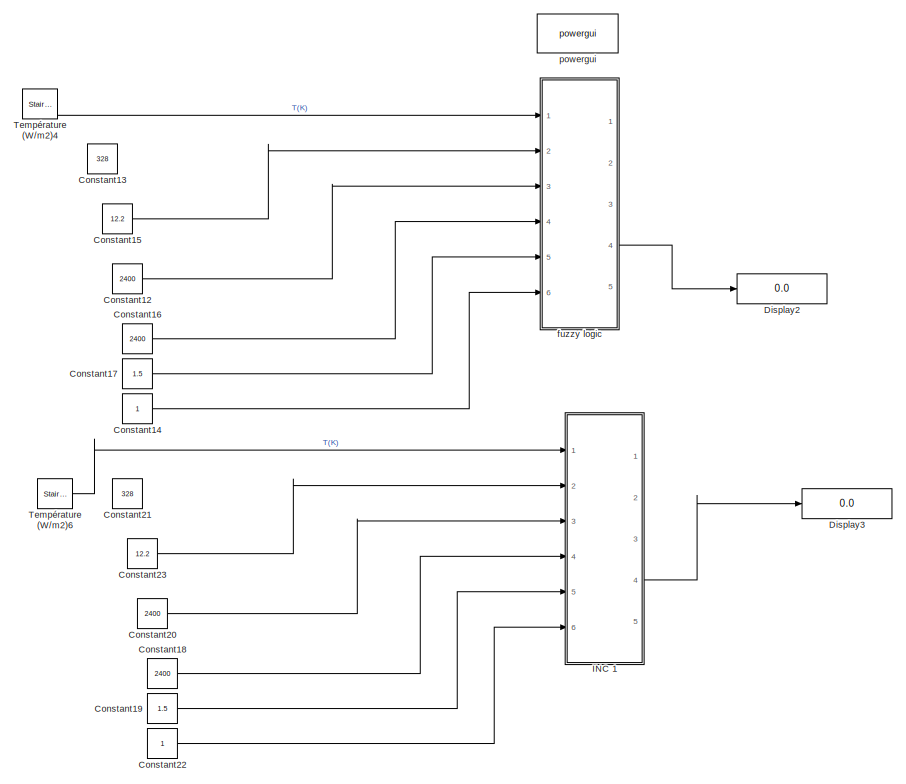
[diagram: root canvas - part 1/2, right side, full height]
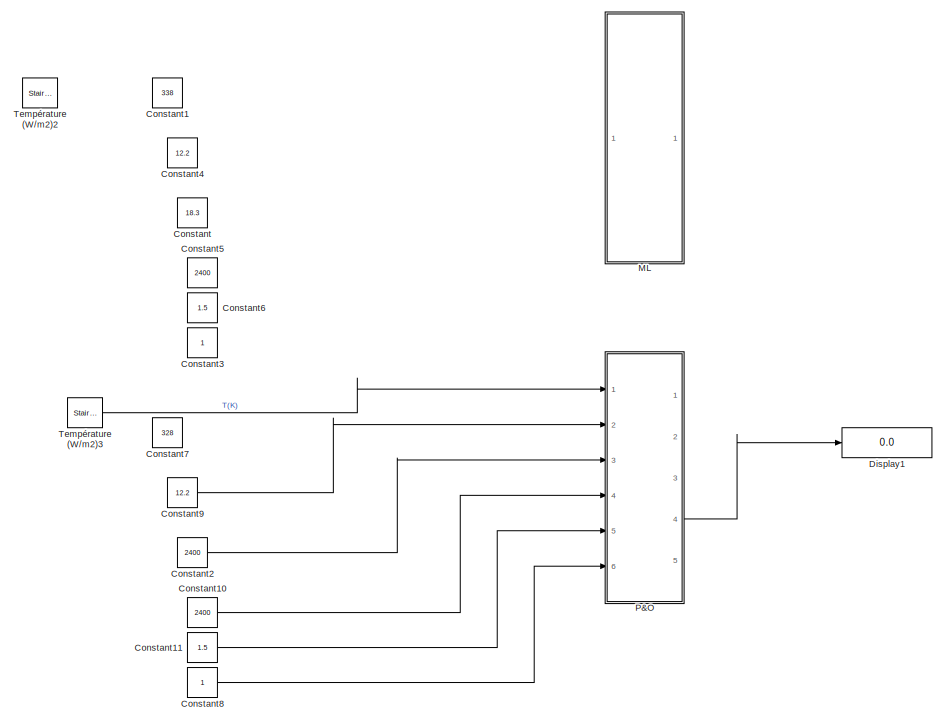
[diagram: root canvas - part 2/2, left side, full height]
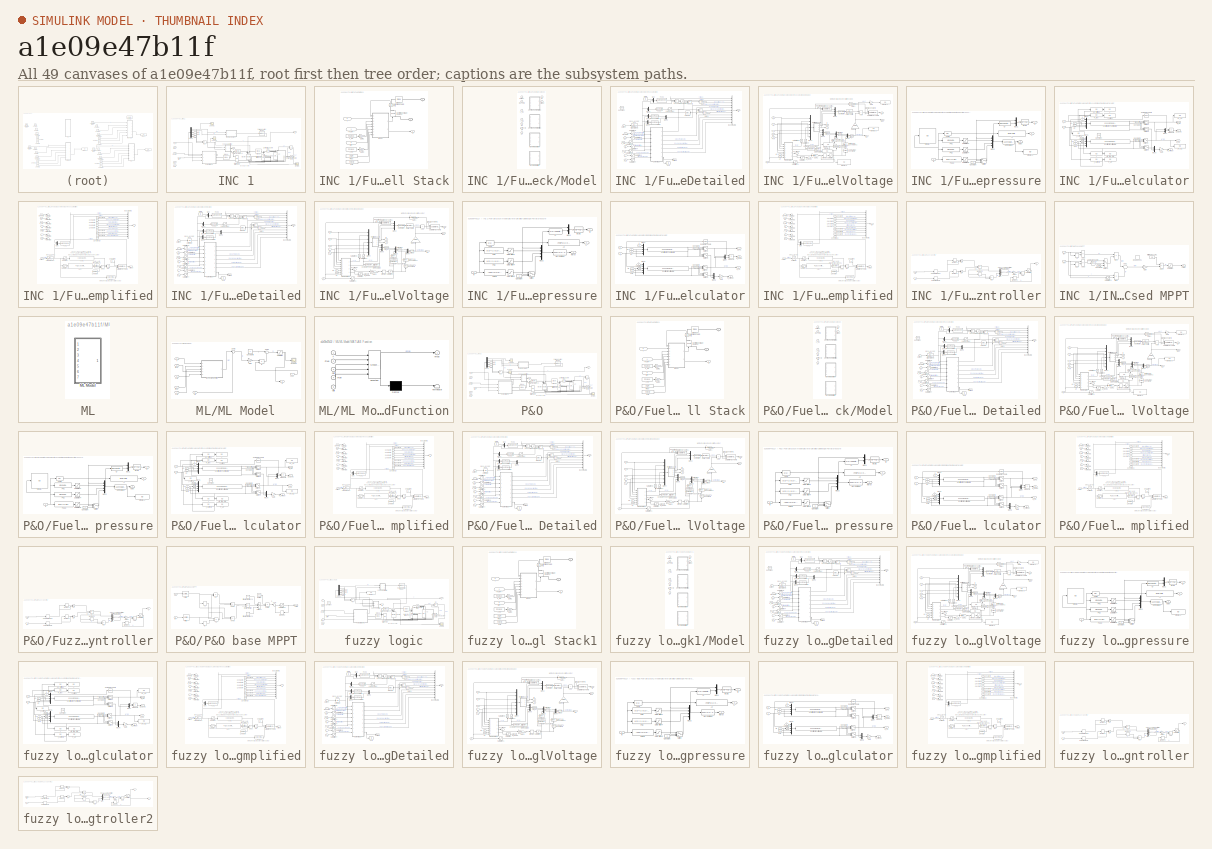
[diagram: thumbnail index - all 49 canvases of the model, root first then tree order]
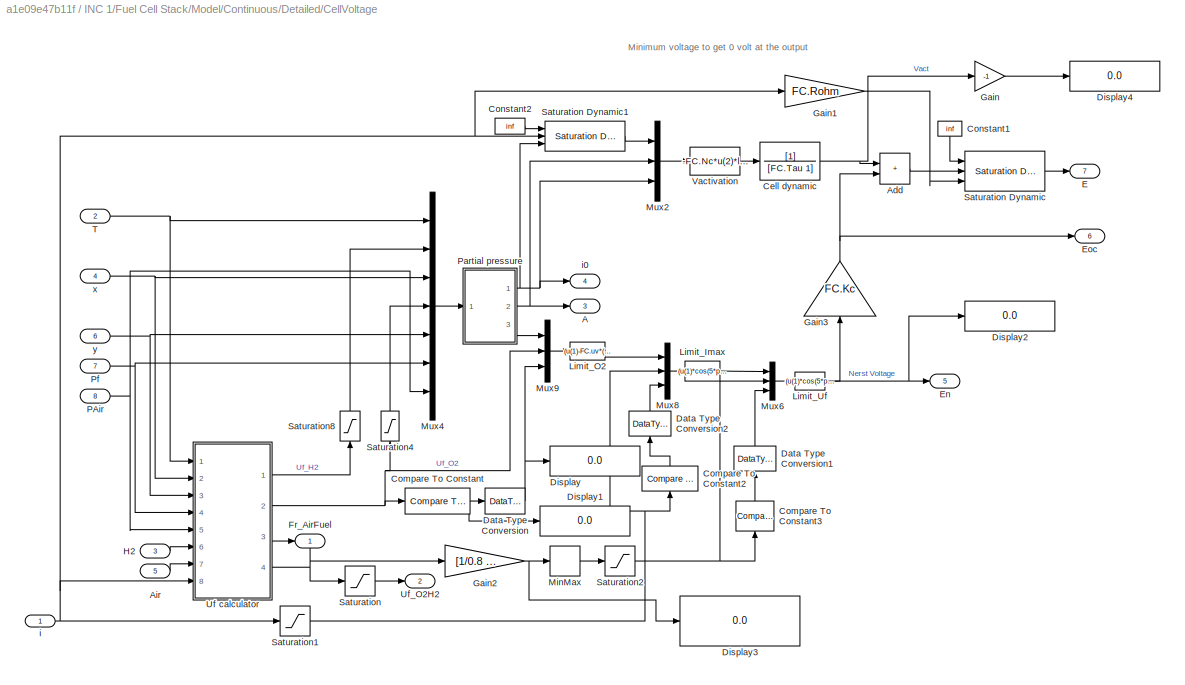
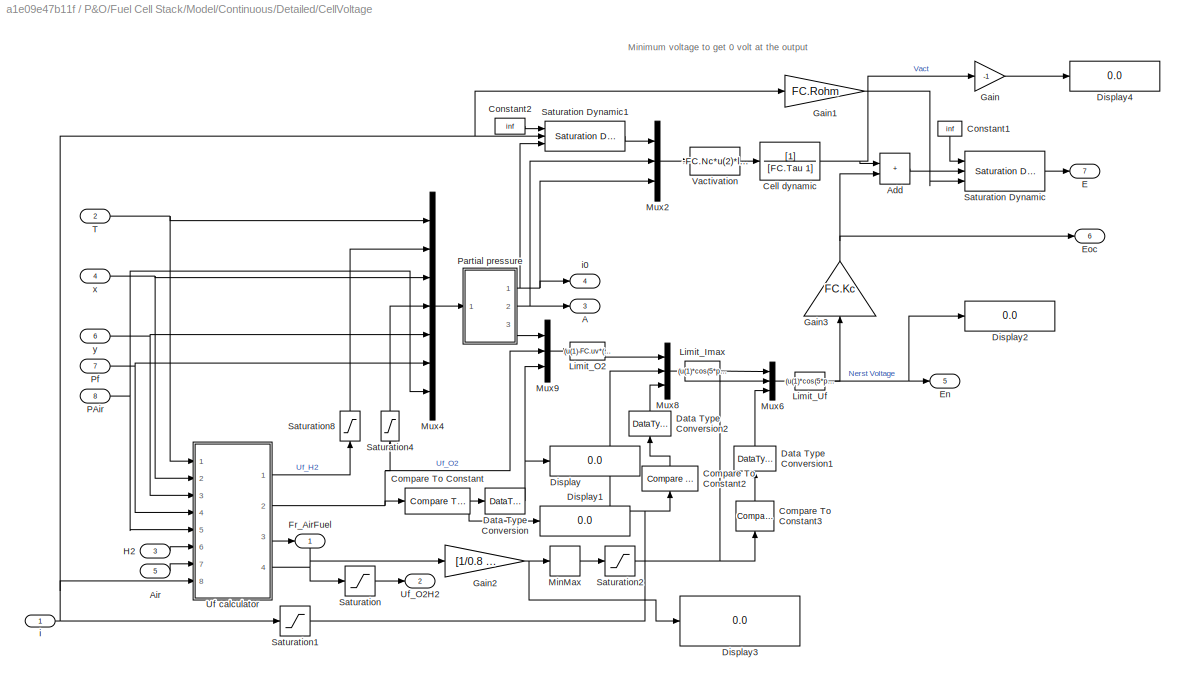
MODEL slx_a1e09e47b11f
KIND model
CONFIG AbsTol = auto
CONFIG EnableMultiTasking = off
CONFIG FixedStep = auto
CONFIG MaxStep = auto
CONFIG MinStep = auto
CONFIG RelTol = 1e-3
CONFIG SampleTimeConstraint = Unconstrained
CONFIG SolverName = VariableStepAuto
CONFIG StartTime = 0.0
CONFIG StopTime = 1
BLOCK [Constant] Constant
  Value = 18.3
BLOCK [Constant] Constant1
  Value = 338
BLOCK [Constant] Constant10
  Commented = on
  Value = 2400
BLOCK [Constant] Constant11
  Commented = on
  Value = 1.5
BLOCK [Constant] Constant12
  Commented = on
  Value = 2400
BLOCK [Constant] Constant13
  Commented = on
  Value = 328
BLOCK [Constant] Constant14
  Commented = on
BLOCK [Constant] Constant15
  Commented = on
  Value = 12.2
BLOCK [Constant] Constant16
  Commented = on
  Value = 2400
BLOCK [Constant] Constant17
  Commented = on
  Value = 1.5
BLOCK [Constant] Constant18
  Commented = on
  Value = 2400
BLOCK [Constant] Constant19
  Commented = on
  Value = 1.5
BLOCK [Constant] Constant2
  Commented = on
  Value = 2400
BLOCK [Constant] Constant20
  Commented = on
  Value = 2400
BLOCK [Constant] Constant21
  Commented = on
  Value = 328
BLOCK [Constant] Constant22
  Commented = on
BLOCK [Constant] Constant23
  Commented = on
  Value = 12.2
BLOCK [Constant] Constant3
BLOCK [Constant] Constant4
  Value = 12.2
BLOCK [Constant] Constant5
  Value = 2400
BLOCK [Constant] Constant6
  Value = 1.5
BLOCK [Constant] Constant7
  Commented = on
  Value = 328
BLOCK [Constant] Constant8
  Commented = on
BLOCK [Constant] Constant9
  Commented = on
  Value = 12.2
BLOCK [Display] Display1
  Commented = on
  Decimation = 1
  Ports = [1]
BLOCK [Display] Display2
  Commented = on
  Decimation = 1
  Ports = [1]
BLOCK [Display] Display3
  Commented = on
  Decimation = 1
  Ports = [1]
BLOCK [SubSystem] INC 1
  Commented = on
  Ports = [6, 5]
BLOCK [Inport] INC 1/AirFr
  Port = 4
BLOCK [Reference] INC 1/Current Measurement  REF=powerlib/Measurements/Current Measurement
  Ports = [0, 1, 0, 0, 0, 1, 1]
  SourceBlock = powerlib/Measurements/Current Measurement
  SourceType = Current Measurement
  UserDataPersistent = on
BLOCK [Outport] INC 1/D
  Port = 5
BLOCK [Demux] INC 1/Demux
  Outputs = 5
  Ports = [1, 5]
BLOCK [Reference] INC 1/Diode  REF=powerlib/Power Electronics/Diode
  Ports = [0, 0, 0, 0, 0, 1, 1]
  SourceBlock = powerlib/Power Electronics/Diode
  SourceType = Diode
BLOCK [Reference] INC 1/Diode1  REF=powerlib/Power Electronics/Diode
  Ports = [0, 0, 0, 0, 0, 1, 1]
  SourceBlock = powerlib/Power Electronics/Diode
  SourceType = Diode
BLOCK [Product] INC 1/E1
  Inputs = **
  NameLocation = top
  Ports = [2, 1]
BLOCK [SubSystem] INC 1/Fuel Cell Stack
  AncestorBlock = sps_lib/Sources/Fuel Cell Stack
  CloseFcn = sps_rtmsupport('CloseFcn',gcbh);
  CopyFcn = sps_rtmsupport('CopyFcn',gcbh);
  DeleteFcn = sps_rtmsupport('DeleteFcn',gcbh);
  DialogController = POWERSYS.PowerSysDialog
  LoadFcn = sps_rtmsupport('LoadFcn',gcbh);FuelCellLoadFcn(gcb)
  ModelCloseFcn = sps_rtmsupport('ModelCloseFcn',gcbh);
  NameChangeFcn = sps_rtmsupport('NameChangeFcn',gcbh);
  OpenFcn = sps_rtmsupport('OpenFcn',gcbh, [1 2 3 13 14 15 16 17 18 19 20]);
  Ports = [3, 1, 0, 0, 0, 0, 2]
  PostSaveFcn = sps_rtmsupport('PostSaveFcn',gcbh);
  PreCopyFcn = sps_rtmsupport('PreCopyFcn',gcbh);
  PreDeleteFcn = sps_rtmsupport('PreDeleteFcn',gcbh);
  PreSaveFcn = sps_rtmsupport('PreSaveFcn',gcbh);
  StartFcn = sps_rtmsupport('StartFcn',gcbh);
  StopFcn = sps_rtmsupport('StopFcn',gcbh);
  UndoDeleteFcn = sps_rtmsupport('UndoDeleteFcn',gcbh);
BLOCK [PMIOPort] INC 1/Fuel Cell Stack/+
  NameLocation = top
  Side = Right
  Tag = PMCPort
BLOCK [PMIOPort] INC 1/Fuel Cell Stack/-
  NameLocation = top
  Port = 2
  Side = Right
  Tag = PMCPort
BLOCK [Inport] INC 1/Fuel Cell Stack/AirFr
  Port = 2
BLOCK [Reference] INC 1/Fuel Cell Stack/Controlled Voltage Source1  REF=powerlib/Electrical Sources/Controlled Voltage Source
  NameLocation = right
  Ports = [1, 0, 0, 0, 0, 1, 1]
  SourceBlock = powerlib/Electrical Sources/Controlled Voltage Source
  SourceType = Controlled Voltage Source
BLOCK [Reference] INC 1/Fuel Cell Stack/Current Measurement1  REF=powerlib/Measurements/Current Measurement
  NameLocation = right
  Ports = [0, 1, 0, 0, 0, 1, 1]
  SourceBlock = powerlib/Measurements/Current Measurement
  SourceType = Current Measurement
BLOCK [Reference] INC 1/Fuel Cell Stack/Diode1  REF=powerlib/Power Electronics/Diode
  Ports = [0, 0, 0, 0, 0, 1, 1]
  SourceBlock = powerlib/Power Electronics/Diode
  SourceType = Diode
BLOCK [Inport] INC 1/Fuel Cell Stack/FuelFr
BLOCK [Gain] INC 1/Fuel Cell Stack/Gain1
  Gain = 0.01
BLOCK [Gain] INC 1/Fuel Cell Stack/Gain3
  Gain = 0.01
BLOCK [SubSystem] INC 1/Fuel Cell Stack/Model
  AncestorBlock = sps_lib/Sources/Fuel Cell Stack/Model
  AttributesFormatString = %<BlockChoice>
  LabelModeActiveChoice = Continuous/Detailed
  Ports = [8, 2]
  Variant = on
  VariantControlMode = label
BLOCK [Inport] INC 1/Fuel Cell Stack/Model/Air
  Port = 5
BLOCK [SubSystem] INC 1/Fuel Cell Stack/Model/Continuous//Detailed
  NameLocation = top
  Ports = [8, 2]
  VariantControl = Continuous/Detailed
BLOCK [Inport] INC 1/Fuel Cell Stack/Model/Continuous//Detailed/Air
  NameLocation = top
  Port = 5
BLOCK [Fcn] INC 1/Fuel Cell Stack/Model/Continuous//Detailed/Air consumption
  Expr = 60000*FC.Nc*u(1)*FC.R*FC.Tstd/(4*FC.F*FC.Pstd*u(2))
BLOCK [BusCreator] INC 1/Fuel Cell Stack/Model/Continuous//Detailed/Bus Creator1
  DisplayOption = bar
  InheritFromInputs = on
  Inputs = 11
  Ports = [11, 1]
BLOCK [SubSystem] INC 1/Fuel Cell Stack/Model/Continuous//Detailed/CellVoltage
  Ports = [8, 7]
BLOCK [Outport] INC 1/Fuel Cell Stack/Model/Continuous//Detailed/CellVoltage/A
  Port = 3
  VectorParamsAs1DForOutWhenUnconnected = off
BLOCK [Sum] INC 1/Fuel Cell Stack/Model/Continuous//Detailed/CellVoltage/Add
  IconShape = rectangular
  Ports = [2, 1]
BLOCK [Inport] INC 1/Fuel Cell Stack/Model/Continuous//Detailed/CellVoltage/Air
  Port = 5
BLOCK [TransferFcn] INC 1/Fuel Cell Stack/Model/Continuous//Detailed/CellVoltage/Cell dynamic
  Denominator = [FC.Tau 1]
BLOCK [Reference] INC 1/Fuel Cell Stack/Model/Continuous//Detailed/CellVoltage/Compare To Constant  REF=simulink/Logic and Bit
Operations/Compare
To Constant
  Ports = [1, 1]
  SourceBlock = simulink/Logic and Bit\nOperations/Compare\nTo Constant
  SourceType = Compare To Constant
BLOCK [Reference] INC 1/Fuel Cell Stack/Model/Continuous//Detailed/CellVoltage/Compare To Constant2  REF=simulink/Logic and Bit
Operations/Compare
To Constant
  NameLocation = right
  Ports = [1, 1]
  SourceBlock = simulink/Logic and Bit\nOperations/Compare\nTo Constant
  SourceType = Compare To Constant
BLOCK [Reference] INC 1/Fuel Cell Stack/Model/Continuous//Detailed/CellVoltage/Compare To Constant3  REF=simulink/Logic and Bit
Operations/Compare
To Constant
  NameLocation = right
  Ports = [1, 1]
  SourceBlock = simulink/Logic and Bit\nOperations/Compare\nTo Constant
  SourceType = Compare To Constant
BLOCK [Constant] INC 1/Fuel Cell Stack/Model/Continuous//Detailed/CellVoltage/Constant1
  NameLocation = left
  Value = inf
BLOCK [Constant] INC 1/Fuel Cell Stack/Model/Continuous//Detailed/CellVoltage/Constant2
  Value = inf
BLOCK [DataTypeConversion] INC 1/Fuel Cell Stack/Model/Continuous//Detailed/CellVoltage/Data Type Conversion
  RndMeth = Floor
  SaturateOnIntegerOverflow = off
BLOCK [DataTypeConversion] INC 1/Fuel Cell Stack/Model/Continuous//Detailed/CellVoltage/Data Type Conversion1
  NameLocation = right
  RndMeth = Floor
  SaturateOnIntegerOverflow = off
BLOCK [DataTypeConversion] INC 1/Fuel Cell Stack/Model/Continuous//Detailed/CellVoltage/Data Type Conversion2
  NameLocation = right
  RndMeth = Floor
  SaturateOnIntegerOverflow = off
BLOCK [Display] INC 1/Fuel Cell Stack/Model/Continuous//Detailed/CellVoltage/Display
  Decimation = 1
  Ports = [1]
BLOCK [Display] INC 1/Fuel Cell Stack/Model/Continuous//Detailed/CellVoltage/Display1
  Decimation = 1
  Ports = [1]
BLOCK [Display] INC 1/Fuel Cell Stack/Model/Continuous//Detailed/CellVoltage/Display2
  Decimation = 1
  Ports = [1]
BLOCK [Display] INC 1/Fuel Cell Stack/Model/Continuous//Detailed/CellVoltage/Display3
  Decimation = 1
  Ports = [1]
BLOCK [Display] INC 1/Fuel Cell Stack/Model/Continuous//Detailed/CellVoltage/Display4
  Decimation = 1
  Ports = [1]
BLOCK [Outport] INC 1/Fuel Cell Stack/Model/Continuous//Detailed/CellVoltage/E
  Port = 7
  VectorParamsAs1DForOutWhenUnconnected = off
BLOCK [Outport] INC 1/Fuel Cell Stack/Model/Continuous//Detailed/CellVoltage/En
  Port = 5
  VectorParamsAs1DForOutWhenUnconnected = off
BLOCK [Outport] INC 1/Fuel Cell Stack/Model/Continuous//Detailed/CellVoltage/Eoc
  Port = 6
  VectorParamsAs1DForOutWhenUnconnected = off
BLOCK [Outport] INC 1/Fuel Cell Stack/Model/Continuous//Detailed/CellVoltage/Fr_AirFuel
  VectorParamsAs1DForOutWhenUnconnected = off
BLOCK [Gain] INC 1/Fuel Cell Stack/Model/Continuous//Detailed/CellVoltage/Gain
  Gain = -1
BLOCK [Gain] INC 1/Fuel Cell Stack/Model/Continuous//Detailed/CellVoltage/Gain1
  Gain = FC.Rohm
  NameLocation = top
BLOCK [Gain] INC 1/Fuel Cell Stack/Model/Continuous//Detailed/CellVoltage/Gain2
  Gain = [1/0.8 1]
  NameLocation = top
BLOCK [Gain] INC 1/Fuel Cell Stack/Model/Continuous//Detailed/CellVoltage/Gain3
  Gain = FC.Kc
  NameLocation = left
BLOCK [Inport] INC 1/Fuel Cell Stack/Model/Continuous//Detailed/CellVoltage/H2
  NameLocation = top
  Port = 3
BLOCK [Fcn] INC 1/Fuel Cell Stack/Model/Continuous//Detailed/CellVoltage/Limit_Imax
  Expr = (u(1)*cos(5*pi/2*(u(2)/FC.Imax-1)))*u(3)+u(1)*(1-u(3) )
  NameLocation = top
BLOCK [Fcn] INC 1/Fuel Cell Stack/Model/Continuous//Detailed/CellVoltage/Limit_O2
  Expr = (u(1)-FC.uv*(u(2)-FC.Uf_O2)/(FC.Kc*(FC.ufO2max-FC.Uf_O2)))*u(3)+ u(1)*(1-u(3))
BLOCK [Fcn] INC 1/Fuel Cell Stack/Model/Continuous//Detailed/CellVoltage/Limit_Uf
  Expr = (u(1)*cos(5*pi/2*(u(2)-1)))*u(3)+u(1)*(1-u(3))
BLOCK [MinMax] INC 1/Fuel Cell Stack/Model/Continuous//Detailed/CellVoltage/MinMax
  Function = max
  Ports = [1, 1]
BLOCK [Mux] INC 1/Fuel Cell Stack/Model/Continuous//Detailed/CellVoltage/Mux2
  DisplayOption = bar
  Inputs = 3
  Ports = [3, 1]
BLOCK [Mux] INC 1/Fuel Cell Stack/Model/Continuous//Detailed/CellVoltage/Mux4
  DisplayOption = bar
  Inputs = 7
  Ports = [7, 1]
BLOCK [Mux] INC 1/Fuel Cell Stack/Model/Continuous//Detailed/CellVoltage/Mux6
  DisplayOption = bar
  Inputs = 3
  Ports = [3, 1]
BLOCK [Mux] INC 1/Fuel Cell Stack/Model/Continuous//Detailed/CellVoltage/Mux8
  DisplayOption = bar
  Inputs = 3
  Ports = [3, 1]
BLOCK [Mux] INC 1/Fuel Cell Stack/Model/Continuous//Detailed/CellVoltage/Mux9
  DisplayOption = bar
  Inputs = 3
  Ports = [3, 1]
BLOCK [Inport] INC 1/Fuel Cell Stack/Model/Continuous//Detailed/CellVoltage/PAir
  Port = 8
BLOCK [SubSystem] INC 1/Fuel Cell Stack/Model/Continuous//Detailed/CellVoltage/Partial pressure
  Ports = [1, 3]
BLOCK [Outport] INC 1/Fuel Cell Stack/Model/Continuous//Detailed/CellVoltage/Partial pressure/A
  Port = 2
  VectorParamsAs1DForOutWhenUnconnected = off
BLOCK [Fcn] INC 1/Fuel Cell Stack/Model/Continuous//Detailed/CellVoltage/Partial pressure/A2
  Expr = (FC.R*u(1))/(2*FC.alpha*FC.F)
BLOCK [Constant] INC 1/Fuel Cell Stack/Model/Continuous//Detailed/CellVoltage/Partial pressure/Constant
BLOCK [Fcn] INC 1/Fuel Cell Stack/Model/Continuous//Detailed/CellVoltage/Partial pressure/Cr
  Expr = (u(2)*FC.Pstd+u(3)*FC.Pstd)/(FC.R*u(1))
BLOCK [Display] INC 1/Fuel Cell Stack/Model/Continuous//Detailed/CellVoltage/Partial pressure/Display
  Decimation = 1
  Ports = [1]
BLOCK [Display] INC 1/Fuel Cell Stack/Model/Continuous//Detailed/CellVoltage/Partial pressure/Display1
  Decimation = 1
  Ports = [1]
BLOCK [Mux] INC 1/Fuel Cell Stack/Model/Continuous//Detailed/CellVoltage/Partial pressure/Mux1
  DisplayOption = bar
  Inputs = 2
  Ports = [2, 1]
BLOCK [Mux] INC 1/Fuel Cell Stack/Model/Continuous//Detailed/CellVoltage/Partial pressure/Mux2
  DisplayOption = bar
  Ports = [4, 1]
BLOCK [Outport] INC 1/Fuel Cell Stack/Model/Continuous//Detailed/CellVoltage/Partial pressure/Nerst
  Port = 3
  VectorParamsAs1DForOutWhenUnconnected = off
BLOCK [Fcn] INC 1/Fuel Cell Stack/Model/Continuous//Detailed/CellVoltage/Partial pressure/Nerst Voltage
  Expr = 1.229+(u(1)-298.15)*(-44.43/(FC.z*FC.F))+(FC.R*u(1)/(FC.z*FC.F))*(log(u(2)*sqrt(u(3))/u(4)))
BLOCK [Fcn] INC 1/Fuel Cell Stack/Model/Continuous//Detailed/CellVoltage/Partial pressure/PH2
  Expr = u(3)*(1-u(2))*u(6)
BLOCK [Fcn] INC 1/Fuel Cell Stack/Model/Continuous//Detailed/CellVoltage/Partial pressure/PH2O
  Expr = (FC.xy+2*u(5)*u(4))*u(7)
BLOCK [Fcn] INC 1/Fuel Cell Stack/Model/Continuous//Detailed/CellVoltage/Partial pressure/PO2
  Expr = u(5)*(1-u(4))*u(7)
BLOCK [Saturate] INC 1/Fuel Cell Stack/Model/Continuous//Detailed/CellVoltage/Partial pressure/Saturation1
  LowerLimit = 0.0001
  UpperLimit = inf
BLOCK [Saturate] INC 1/Fuel Cell Stack/Model/Continuous//Detailed/CellVoltage/Partial pressure/Saturation4
  LowerLimit = 0.0001
  UpperLimit = inf
BLOCK [Saturate] INC 1/Fuel Cell Stack/Model/Continuous//Detailed/CellVoltage/Partial pressure/Saturation5
  LowerLimit = 0.0001
  UpperLimit = inf
BLOCK [Switch] INC 1/Fuel Cell Stack/Model/Continuous//Detailed/CellVoltage/Partial pressure/Switch
  InputSameDT = off
  SaturateOnIntegerOverflow = off
  Threshold = 273+100
BLOCK [Fcn] INC 1/Fuel Cell Stack/Model/Continuous//Detailed/CellVoltage/Partial pressure/Temp
  Expr = u(1)
  NameLocation = top
BLOCK [Outport] INC 1/Fuel Cell Stack/Model/Continuous//Detailed/CellVoltage/Partial pressure/i0
  VectorParamsAs1DForOutWhenUnconnected = off
BLOCK [Fcn] INC 1/Fuel Cell Stack/Model/Continuous//Detailed/CellVoltage/Partial pressure/i0 calc
  Expr = 2*FC.F*FC.k*u(1)*u(2)*exp(-FC.Dg/(FC.R*u(1)))/FC.h
BLOCK [Inport] INC 1/Fuel Cell Stack/Model/Continuous//Detailed/CellVoltage/Partial pressure/in
BLOCK [Inport] INC 1/Fuel Cell Stack/Model/Continuous//Detailed/CellVoltage/Pf
  Port = 7
BLOCK [Saturate] INC 1/Fuel Cell Stack/Model/Continuous//Detailed/CellVoltage/Saturation
  LowerLimit = 0.0001
  UpperLimit = 0.9999
BLOCK [Reference] INC 1/Fuel Cell Stack/Model/Continuous//Detailed/CellVoltage/Saturation Dynamic  REF=simulink/Discontinuities/Saturation
Dynamic
  Ports = [3, 1]
  SourceBlock = simulink/Discontinuities/Saturation\nDynamic
  SourceType = Saturation Dynamic
BLOCK [Reference] INC 1/Fuel Cell Stack/Model/Continuous//Detailed/CellVoltage/Saturation Dynamic1  REF=simulink/Discontinuities/Saturation
Dynamic
  Ports = [3, 1]
  SourceBlock = simulink/Discontinuities/Saturation\nDynamic
  SourceType = Saturation Dynamic
BLOCK [Saturate] INC 1/Fuel Cell Stack/Model/Continuous//Detailed/CellVoltage/Saturation1
  LowerLimit = 0
  UpperLimit = FC.Imax*1.2
BLOCK [Saturate] INC 1/Fuel Cell Stack/Model/Continuous//Detailed/CellVoltage/Saturation2
  LowerLimit = 0
  UpperLimit = 1.2
BLOCK [Saturate] INC 1/Fuel Cell Stack/Model/Continuous//Detailed/CellVoltage/Saturation4
  LowerLimit = 0
  NameLocation = right
  UpperLimit = FC.Uf_O2
BLOCK [Saturate] INC 1/Fuel Cell Stack/Model/Continuous//Detailed/CellVoltage/Saturation8
  LowerLimit = 0
  NameLocation = right
  UpperLimit = FC.Uf_H2
BLOCK [Inport] INC 1/Fuel Cell Stack/Model/Continuous//Detailed/CellVoltage/T
  Port = 2
BLOCK [SubSystem] INC 1/Fuel Cell Stack/Model/Continuous//Detailed/CellVoltage/Uf calculator
  Ports = [8, 4]
BLOCK [Display] INC 1/Fuel Cell Stack/Model/Continuous//Detailed/CellVoltage/Uf calculator/AIR_flow_rate
  Decimation = 1
  Ports = [1]
BLOCK [Inport] INC 1/Fuel Cell Stack/Model/Continuous//Detailed/CellVoltage/Uf calculator/Air
  NameLocation = top
  Port = 7
BLOCK [Reference] INC 1/Fuel Cell Stack/Model/Continuous//Detailed/CellVoltage/Uf calculator/Compare To Zero  REF=simulink/Logic and Bit
Operations/Compare
To Zero
  Ports = [1, 1]
  SourceBlock = simulink/Logic and Bit\nOperations/Compare\nTo Zero
  SourceType = Compare To Zero
BLOCK [Constant] INC 1/Fuel Cell Stack/Model/Continuous//Detailed/CellVoltage/Uf calculator/Constant
  Value = FC.R
BLOCK [Constant] INC 1/Fuel Cell Stack/Model/Continuous//Detailed/CellVoltage/Uf calculator/Constant1
  Value = FC.sel_UfH2
BLOCK [Constant] INC 1/Fuel Cell Stack/Model/Continuous//Detailed/CellVoltage/Uf calculator/Constant2
  Value = FC.sel_UfO2
BLOCK [Outport] INC 1/Fuel Cell Stack/Model/Continuous//Detailed/CellVoltage/Uf calculator/Fr_AirFuel
  Port = 3
  VectorParamsAs1DForOutWhenUnconnected = off
BLOCK [Gain] INC 1/Fuel Cell Stack/Model/Continuous//Detailed/CellVoltage/Uf calculator/Gain
BLOCK [Inport] INC 1/Fuel Cell Stack/Model/Continuous//Detailed/CellVoltage/Uf calculator/H2
  NameLocation = top
  Port = 6
BLOCK [Fcn] INC 1/Fuel Cell Stack/Model/Continuous//Detailed/CellVoltage/Uf calculator/H2 utilization Fuel flowrate
  Expr = 60000*FC.Nc*u(2)*FC.R*u(5)/(FC.z*FC.F*u(4)*FC.Pstd*u(3)*u(1))
BLOCK [Display] INC 1/Fuel Cell Stack/Model/Continuous//Detailed/CellVoltage/Uf calculator/H2_airflow1
  Decimation = 1
  Ports = [1]
BLOCK [Mux] INC 1/Fuel Cell Stack/Model/Continuous//Detailed/CellVoltage/Uf calculator/Mux1
  DisplayOption = bar
  Inputs = 5
  Ports = [5, 1]
BLOCK [Mux] INC 1/Fuel Cell Stack/Model/Continuous//Detailed/CellVoltage/Uf calculator/Mux5
  DisplayOption = bar
  Inputs = 5
  Ports = [5, 1]
BLOCK [Mux] INC 1/Fuel Cell Stack/Model/Continuous//Detailed/CellVoltage/Uf calculator/Mux6
  DisplayOption = bar
  Inputs = 2
  Ports = [2, 1]
BLOCK [Mux] INC 1/Fuel Cell Stack/Model/Continuous//Detailed/CellVoltage/Uf calculator/Mux7
  DisplayOption = bar
  Inputs = 2
  Ports = [2, 1]
BLOCK [Fcn] INC 1/Fuel Cell Stack/Model/Continuous//Detailed/CellVoltage/Uf calculator/O2 utilization Air flowrate
  Expr = 60000*FC.Nc*u(2)*FC.R*u(5)/(4*FC.F*u(4)*FC.Pstd*u(3)*u(1))
BLOCK [Inport] INC 1/Fuel Cell Stack/Model/Continuous//Detailed/CellVoltage/Uf calculator/PAir
  Port = 5
BLOCK [Display] INC 1/Fuel Cell Stack/Model/Continuous//Detailed/CellVoltage/Uf calculator/P_air
  Decimation = 1
  Ports = [1]
BLOCK [Display] INC 1/Fuel Cell Stack/Model/Continuous//Detailed/CellVoltage/Uf calculator/P_fuel
  Decimation = 1
  Ports = [1]
BLOCK [Inport] INC 1/Fuel Cell Stack/Model/Continuous//Detailed/CellVoltage/Uf calculator/Pf
  Port = 4
BLOCK [Product] INC 1/Fuel Cell Stack/Model/Continuous//Detailed/CellVoltage/Uf calculator/Product2
  Ports = [2, 1]
  RndMeth = Zero
BLOCK [Saturate] INC 1/Fuel Cell Stack/Model/Continuous//Detailed/CellVoltage/Uf calculator/Saturation3
  LowerLimit = FC.AirFr_Max*0.01
  UpperLimit = inf
BLOCK [Switch] INC 1/Fuel Cell Stack/Model/Continuous//Detailed/CellVoltage/Uf calculator/Switch1
  Criteria = u2 > Threshold
  InputSameDT = off
  SaturateOnIntegerOverflow = off
  Threshold = 0.5
BLOCK [Switch] INC 1/Fuel Cell Stack/Model/Continuous//Detailed/CellVoltage/Uf calculator/Switch2
  Criteria = u2 > Threshold
  InputSameDT = off
  SaturateOnIntegerOverflow = off
  Threshold = 0.5
BLOCK [Switch] INC 1/Fuel Cell Stack/Model/Continuous//Detailed/CellVoltage/Uf calculator/Switch3
  Criteria = u2 > Threshold
  InputSameDT = off
  SaturateOnIntegerOverflow = off
  Threshold = 0.5
BLOCK [Switch] INC 1/Fuel Cell Stack/Model/Continuous//Detailed/CellVoltage/Uf calculator/Switch4
  Criteria = u2 > Threshold
  InputSameDT = off
  SaturateOnIntegerOverflow = off
  Threshold = 0.5
BLOCK [Inport] INC 1/Fuel Cell Stack/Model/Continuous//Detailed/CellVoltage/Uf calculator/T
BLOCK [Display] INC 1/Fuel Cell Stack/Model/Continuous//Detailed/CellVoltage/Uf calculator/UF_H2
  Decimation = 1
  Ports = [1]
BLOCK [Display] INC 1/Fuel Cell Stack/Model/Continuous//Detailed/CellVoltage/Uf calculator/UF_O2
  Decimation = 1
  Ports = [1]
BLOCK [Outport] INC 1/Fuel Cell Stack/Model/Continuous//Detailed/CellVoltage/Uf calculator/Uf_H2
  VectorParamsAs1DForOutWhenUnconnected = off
BLOCK [Outport] INC 1/Fuel Cell Stack/Model/Continuous//Detailed/CellVoltage/Uf calculator/Uf_O2
  Port = 2
  VectorParamsAs1DForOutWhenUnconnected = off
BLOCK [Outport] INC 1/Fuel Cell Stack/Model/Continuous//Detailed/CellVoltage/Uf calculator/Uf_O2H2
  Port = 4
  VectorParamsAs1DForOutWhenUnconnected = off
BLOCK [Display] INC 1/Fuel Cell Stack/Model/Continuous//Detailed/CellVoltage/Uf calculator/X
  Decimation = 1
  Ports = [1]
BLOCK [Display] INC 1/Fuel Cell Stack/Model/Continuous//Detailed/CellVoltage/Uf calculator/Y
  Decimation = 1
  Ports = [1]
BLOCK [Inport] INC 1/Fuel Cell Stack/Model/Continuous//Detailed/CellVoltage/Uf calculator/i
  Port = 8
BLOCK [Display] INC 1/Fuel Cell Stack/Model/Continuous//Detailed/CellVoltage/Uf calculator/i_current
  Decimation = 1
  Ports = [1]
BLOCK [Display] INC 1/Fuel Cell Stack/Model/Continuous//Detailed/CellVoltage/Uf calculator/i_current1
  Decimation = 1
  Ports = [1]
BLOCK [Display] INC 1/Fuel Cell Stack/Model/Continuous//Detailed/CellVoltage/Uf calculator/i_current2
  Decimation = 1
  Ports = [1]
BLOCK [Inport] INC 1/Fuel Cell Stack/Model/Continuous//Detailed/CellVoltage/Uf calculator/x
  NameLocation = top
  Port = 2
BLOCK [Inport] INC 1/Fuel Cell Stack/Model/Continuous//Detailed/CellVoltage/Uf calculator/y
  NameLocation = top
  Port = 3
BLOCK [Outport] INC 1/Fuel Cell Stack/Model/Continuous//Detailed/CellVoltage/Uf_O2H2
  Port = 2
  VectorParamsAs1DForOutWhenUnconnected = off
BLOCK [Fcn] INC 1/Fuel Cell Stack/Model/Continuous//Detailed/CellVoltage/Vactivation
  Expr = -FC.Nc*u(2)*ln(u(1))+FC.Nc*u(2)*ln(u(3))
BLOCK [Inport] INC 1/Fuel Cell Stack/Model/Continuous//Detailed/CellVoltage/i
BLOCK [Outport] INC 1/Fuel Cell Stack/Model/Continuous//Detailed/CellVoltage/i0
  NameLocation = top
  Port = 4
  VectorParamsAs1DForOutWhenUnconnected = off
BLOCK [Inport] INC 1/Fuel Cell Stack/Model/Continuous//Detailed/CellVoltage/x
  Port = 4
BLOCK [Inport] INC 1/Fuel Cell Stack/Model/Continuous//Detailed/CellVoltage/y
  Port = 6
BLOCK [Constant] INC 1/Fuel Cell Stack/Model/Continuous//Detailed/Constant
  Value = FC.Rohm
BLOCK [Inport] INC 1/Fuel Cell Stack/Model/Continuous//Detailed/Current
  NameLocation = top
BLOCK [Fcn] INC 1/Fuel Cell Stack/Model/Continuous//Detailed/Fcn2
  Expr = u(1)-FC.Rohm*u(2)
BLOCK [Fcn] INC 1/Fuel Cell Stack/Model/Continuous//Detailed/Fcn3
  Expr = FC.Nc*u(1)/(FC.z*FC.F*u(2))*FC.Dh0
BLOCK [From] INC 1/Fuel Cell Stack/Model/Continuous//Detailed/From
  GotoTag = E
  NameLocation = top
BLOCK [Fcn] INC 1/Fuel Cell Stack/Model/Continuous//Detailed/Fuel consumption
  Expr = 60000*FC.Nc*u(1)*FC.R*FC.Tstd/(FC.z*FC.F*FC.Pstd*u(2))
BLOCK [Gain] INC 1/Fuel Cell Stack/Model/Continuous//Detailed/Gain1
  Gain = 100
  NameLocation = top
BLOCK [Gain] INC 1/Fuel Cell Stack/Model/Continuous//Detailed/Gain3
  Gain = 100
  NameLocation = top
BLOCK [Goto] INC 1/Fuel Cell Stack/Model/Continuous//Detailed/Goto
  GotoTag = E
BLOCK [Inport] INC 1/Fuel Cell Stack/Model/Continuous//Detailed/H2
  NameLocation = top
  Port = 3
BLOCK [Mux] INC 1/Fuel Cell Stack/Model/Continuous//Detailed/Mux
  DisplayOption = bar
  Inputs = 2
  Ports = [2, 1]
BLOCK [Mux] INC 1/Fuel Cell Stack/Model/Continuous//Detailed/Mux1
  DisplayOption = bar
  Inputs = 2
  Ports = [2, 1]
BLOCK [Mux] INC 1/Fuel Cell Stack/Model/Continuous//Detailed/Mux3
  DisplayOption = bar
  Inputs = 2
  Ports = [2, 1]
BLOCK [Mux] INC 1/Fuel Cell Stack/Model/Continuous//Detailed/Mux4
  DisplayOption = bar
  Inputs = 2
  Ports = [2, 1]
BLOCK [Mux] INC 1/Fuel Cell Stack/Model/Continuous//Detailed/Mux6
  DisplayOption = bar
  Inputs = 2
  Ports = [2, 1]
BLOCK [Inport] INC 1/Fuel Cell Stack/Model/Continuous//Detailed/Op Temp
  NameLocation = top
  Port = 2
BLOCK [Inport] INC 1/Fuel Cell Stack/Model/Continuous//Detailed/PAir
  NameLocation = top
  Port = 8
BLOCK [Inport] INC 1/Fuel Cell Stack/Model/Continuous//Detailed/Pf
  NameLocation = top
  Port = 7
BLOCK [Product] INC 1/Fuel Cell Stack/Model/Continuous//Detailed/Product
  Ports = [2, 1]
  RndMeth = Zero
BLOCK [Product] INC 1/Fuel Cell Stack/Model/Continuous//Detailed/Product1
  Inputs = */
  Ports = [2, 1]
  RndMeth = Zero
BLOCK [Product] INC 1/Fuel Cell Stack/Model/Continuous//Detailed/Product2
  Ports = [2, 1]
  RndMeth = Zero
BLOCK [Saturate] INC 1/Fuel Cell Stack/Model/Continuous//Detailed/Saturation1
  LowerLimit = 0.0001
  UpperLimit = 0.9999
BLOCK [Saturate] INC 1/Fuel Cell Stack/Model/Continuous//Detailed/Saturation2
  LowerLimit = 0.0001
  UpperLimit = 0.9999
BLOCK [Saturate] INC 1/Fuel Cell Stack/Model/Continuous//Detailed/Saturation3
  LowerLimit = 1e-6
  UpperLimit = inf
BLOCK [Saturate] INC 1/Fuel Cell Stack/Model/Continuous//Detailed/Saturation4
  LowerLimit = 1e-3
  UpperLimit = inf
BLOCK [Saturate] INC 1/Fuel Cell Stack/Model/Continuous//Detailed/Saturation6
  LowerLimit = 0.001
  UpperLimit = inf
BLOCK [Saturate] INC 1/Fuel Cell Stack/Model/Continuous//Detailed/Saturation7
  LowerLimit = 0.001
  UpperLimit = inf
BLOCK [Saturate] INC 1/Fuel Cell Stack/Model/Continuous//Detailed/Saturation8
  LowerLimit = 200
  UpperLimit = inf
BLOCK [Selector] INC 1/Fuel Cell Stack/Model/Continuous//Detailed/Selector
  IndexOptions = Index vector (dialog)
  Indices = [2]
  InputPortWidth = 2
  NameLocation = top
  OutputSizes = 1
  Ports = [1, 1]
BLOCK [TransferFcn] INC 1/Fuel Cell Stack/Model/Continuous//Detailed/Transfer Fcn
  Denominator = [1e-6 1]
BLOCK [Outport] INC 1/Fuel Cell Stack/Model/Continuous//Detailed/Voltage
  VectorParamsAs1DForOutWhenUnconnected = off
BLOCK [Outport] INC 1/Fuel Cell Stack/Model/Continuous//Detailed/m
  Port = 2
  VectorParamsAs1DForOutWhenUnconnected = off
BLOCK [Inport] INC 1/Fuel Cell Stack/Model/Continuous//Detailed/x_H2
  NameLocation = top
  Port = 4
BLOCK [Inport] INC 1/Fuel Cell Stack/Model/Continuous//Detailed/y_O2
  NameLocation = top
  Port = 6
BLOCK [Saturate] INC 1/Fuel Cell Stack/Model/Continuous//Detailed/zero avoider
  LinearizeAsGain = off
  LowerLimit = 1e-6
  UpperLimit = inf
BLOCK [Saturate] INC 1/Fuel Cell Stack/Model/Continuous//Detailed/zero avoider2
  LinearizeAsGain = off
  LowerLimit = 0
  UpperLimit = inf
BLOCK [SubSystem] INC 1/Fuel Cell Stack/Model/Continuous//Simplified
  NameLocation = top
  Ports = [8, 2]
  VariantControl = Continuous/Simplified
BLOCK [Sum] INC 1/Fuel Cell Stack/Model/Continuous//Simplified/Add1
  IconShape = rectangular
  Ports = [2, 1]
BLOCK [Inport] INC 1/Fuel Cell Stack/Model/Continuous//Simplified/Air
  NameLocation = top
  Port = 5
BLOCK [BusCreator] INC 1/Fuel Cell Stack/Model/Continuous//Simplified/Bus Creator1
  DisplayOption = bar
  InheritFromInputs = on
  Inputs = 11
  Ports = [11, 1]
BLOCK [Constant] INC 1/Fuel Cell Stack/Model/Continuous//Simplified/Constant
  Value = FC.OCV
BLOCK [Constant] INC 1/Fuel Cell Stack/Model/Continuous//Simplified/Constant1
  Value = inf
BLOCK [Constant] INC 1/Fuel Cell Stack/Model/Continuous//Simplified/Constant10
  Value = 0
BLOCK [Constant] INC 1/Fuel Cell Stack/Model/Continuous//Simplified/Constant2
  Value = 0
BLOCK [Constant] INC 1/Fuel Cell Stack/Model/Continuous//Simplified/Constant3
  Value = 0
BLOCK [Constant] INC 1/Fuel Cell Stack/Model/Continuous//Simplified/Constant4
  Value = 0
BLOCK [Constant] INC 1/Fuel Cell Stack/Model/Continuous//Simplified/Constant5
  Value = 0
BLOCK [Constant] INC 1/Fuel Cell Stack/Model/Continuous//Simplified/Constant6
  Value = 0
BLOCK [Constant] INC 1/Fuel Cell Stack/Model/Continuous//Simplified/Constant7
  Value = 0
BLOCK [Constant] INC 1/Fuel Cell Stack/Model/Continuous//Simplified/Constant8
  Value = 0
BLOCK [Constant] INC 1/Fuel Cell Stack/Model/Continuous//Simplified/Constant9
  Value = 0
BLOCK [Inport] INC 1/Fuel Cell Stack/Model/Continuous//Simplified/Current
  NameLocation = top
BLOCK [Fcn] INC 1/Fuel Cell Stack/Model/Continuous//Simplified/Fcn1
  Expr = FC.Rohm*u(1)
BLOCK [Fcn] INC 1/Fuel Cell Stack/Model/Continuous//Simplified/Fcn2
  Expr = u(1)-FC.Rohm*u(2)
BLOCK [Inport] INC 1/Fuel Cell Stack/Model/Continuous//Simplified/H2
  NameLocation = top
  Port = 3
BLOCK [Product] INC 1/Fuel Cell Stack/Model/Continuous//Simplified/Mult
  Ports = [2, 1]
BLOCK [Mux] INC 1/Fuel Cell Stack/Model/Continuous//Simplified/Mux
  DisplayOption = bar
  Inputs = 2
  Ports = [2, 1]
BLOCK [Inport] INC 1/Fuel Cell Stack/Model/Continuous//Simplified/Op Temp
  NameLocation = top
  Port = 2
BLOCK [Inport] INC 1/Fuel Cell Stack/Model/Continuous//Simplified/PAir
  NameLocation = top
  Port = 8
BLOCK [Inport] INC 1/Fuel Cell Stack/Model/Continuous//Simplified/Pf
  NameLocation = top
  Port = 7
BLOCK [Reference] INC 1/Fuel Cell Stack/Model/Continuous//Simplified/Saturation Dynamic  REF=simulink/Discontinuities/Saturation
Dynamic
  Ports = [3, 1]
  SourceBlock = simulink/Discontinuities/Saturation\nDynamic
  SourceType = Saturation Dynamic
BLOCK [Saturate] INC 1/Fuel Cell Stack/Model/Continuous//Simplified/Saturation2
  LinearizeAsGain = off
  LowerLimit = FC.Il*FC.MaxCurRatio
  UpperLimit = FC.Il
BLOCK [Saturate] INC 1/Fuel Cell Stack/Model/Continuous//Simplified/Saturation5
  LinearizeAsGain = off
  LowerLimit = FC.i0nom
  UpperLimit = inf
BLOCK [Terminator] INC 1/Fuel Cell Stack/Model/Continuous//Simplified/Terminator
BLOCK [Terminator] INC 1/Fuel Cell Stack/Model/Continuous//Simplified/Terminator1
BLOCK [Terminator] INC 1/Fuel Cell Stack/Model/Continuous//Simplified/Terminator2
BLOCK [Terminator] INC 1/Fuel Cell Stack/Model/Continuous//Simplified/Terminator3
BLOCK [Terminator] INC 1/Fuel Cell Stack/Model/Continuous//Simplified/Terminator4
BLOCK [Terminator] INC 1/Fuel Cell Stack/Model/Continuous//Simplified/Terminator5
BLOCK [Terminator] INC 1/Fuel Cell Stack/Model/Continuous//Simplified/Terminator6
BLOCK [TransferFcn] INC 1/Fuel Cell Stack/Model/Continuous//Simplified/Transfer Fcn1
  Denominator = [FC.Tau 1]
BLOCK [TransferFcn] INC 1/Fuel Cell Stack/Model/Continuous//Simplified/Transfer Fcn2
  Denominator = [1e-6 1]
BLOCK [Fcn] INC 1/Fuel Cell Stack/Model/Continuous//Simplified/Vact
  Expr = -FC.NcAnom*ln(u(1))+FC.NcAnom*ln(FC.i0nom)
BLOCK [Fcn] INC 1/Fuel Cell Stack/Model/Continuous//Simplified/Vend
  Expr = cos(FC.Ksin*(u(1)/(FC.Il*FC.MaxCurRatio)-1))
BLOCK [Outport] INC 1/Fuel Cell Stack/Model/Continuous//Simplified/Voltage
  VectorParamsAs1DForOutWhenUnconnected = off
BLOCK [Outport] INC 1/Fuel Cell Stack/Model/Continuous//Simplified/m
  Port = 2
  VectorParamsAs1DForOutWhenUnconnected = off
BLOCK [Inport] INC 1/Fuel Cell Stack/Model/Continuous//Simplified/x_H2
  NameLocation = top
  Port = 4
BLOCK [Inport] INC 1/Fuel Cell Stack/Model/Continuous//Simplified/y_O2
  NameLocation = top
  Port = 6
BLOCK [Inport] INC 1/Fuel Cell Stack/Model/Current
BLOCK [SubSystem] INC 1/Fuel Cell Stack/Model/Discrete//Detailed
  NameLocation = top
  Ports = [8, 2]
  VariantControl = Discrete/Detailed
BLOCK [Inport] INC 1/Fuel Cell Stack/Model/Discrete//Detailed/Air
  NameLocation = top
  Port = 5
BLOCK [Fcn] INC 1/Fuel Cell Stack/Model/Discrete//Detailed/Air consumption
  Expr = 60000*FC.Nc*u(1)*FC.R*FC.Tstd/(4*FC.F*FC.Pstd*u(2))
BLOCK [BusCreator] INC 1/Fuel Cell Stack/Model/Discrete//Detailed/Bus Creator1
  DisplayOption = bar
  InheritFromInputs = on
  Inputs = 11
  Ports = [11, 1]
BLOCK [SubSystem] INC 1/Fuel Cell Stack/Model/Discrete//Detailed/CellVoltage
  Ports = [8, 7]
BLOCK [Outport] INC 1/Fuel Cell Stack/Model/Discrete//Detailed/CellVoltage/A
  Port = 3
  VectorParamsAs1DForOutWhenUnconnected = off
BLOCK [Sum] INC 1/Fuel Cell Stack/Model/Discrete//Detailed/CellVoltage/Add
  IconShape = rectangular
  Ports = [2, 1]
BLOCK [Inport] INC 1/Fuel Cell Stack/Model/Discrete//Detailed/CellVoltage/Air
  Port = 5
BLOCK [DiscreteTransferFcn] INC 1/Fuel Cell Stack/Model/Discrete//Detailed/CellVoltage/Cell dynamic
  Denominator = [1 -exp(-Ts/FC.Tau)]
  InputPortMap = u0
  Numerator = [1-exp(-Ts/FC.Tau)]
  Ports = [1, 1]
  SampleTime = Ts
BLOCK [Reference] INC 1/Fuel Cell Stack/Model/Discrete//Detailed/CellVoltage/Compare To Constant  REF=simulink/Logic and Bit
Operations/Compare
To Constant
  Ports = [1, 1]
  SourceBlock = simulink/Logic and Bit\nOperations/Compare\nTo Constant
  SourceType = Compare To Constant
BLOCK [Reference] INC 1/Fuel Cell Stack/Model/Discrete//Detailed/CellVoltage/Compare To Constant3  REF=simulink/Logic and Bit
Operations/Compare
To Constant
  NameLocation = right
  Ports = [1, 1]
  SourceBlock = simulink/Logic and Bit\nOperations/Compare\nTo Constant
  SourceType = Compare To Constant
BLOCK [Reference] INC 1/Fuel Cell Stack/Model/Discrete//Detailed/CellVoltage/Compare To Constant4  REF=simulink/Logic and Bit
Operations/Compare
To Constant
  NameLocation = right
  Ports = [1, 1]
  SourceBlock = simulink/Logic and Bit\nOperations/Compare\nTo Constant
  SourceType = Compare To Constant
BLOCK [Constant] INC 1/Fuel Cell Stack/Model/Discrete//Detailed/CellVoltage/Constant1
  NameLocation = left
  Value = inf
BLOCK [Constant] INC 1/Fuel Cell Stack/Model/Discrete//Detailed/CellVoltage/Constant2
  Value = inf
BLOCK [DataTypeConversion] INC 1/Fuel Cell Stack/Model/Discrete//Detailed/CellVoltage/Data Type Conversion
  RndMeth = Floor
  SaturateOnIntegerOverflow = off
BLOCK [DataTypeConversion] INC 1/Fuel Cell Stack/Model/Discrete//Detailed/CellVoltage/Data Type Conversion1
  NameLocation = right
  RndMeth = Floor
  SaturateOnIntegerOverflow = off
BLOCK [DataTypeConversion] INC 1/Fuel Cell Stack/Model/Discrete//Detailed/CellVoltage/Data Type Conversion2
  NameLocation = right
  RndMeth = Floor
  SaturateOnIntegerOverflow = off
BLOCK [Outport] INC 1/Fuel Cell Stack/Model/Discrete//Detailed/CellVoltage/E
  Port = 7
  VectorParamsAs1DForOutWhenUnconnected = off
BLOCK [Outport] INC 1/Fuel Cell Stack/Model/Discrete//Detailed/CellVoltage/En
  Port = 5
  VectorParamsAs1DForOutWhenUnconnected = off
BLOCK [Outport] INC 1/Fuel Cell Stack/Model/Discrete//Detailed/CellVoltage/Eoc
  Port = 6
  VectorParamsAs1DForOutWhenUnconnected = off
BLOCK [Outport] INC 1/Fuel Cell Stack/Model/Discrete//Detailed/CellVoltage/Fr_AirFuel
  VectorParamsAs1DForOutWhenUnconnected = off
BLOCK [Gain] INC 1/Fuel Cell Stack/Model/Discrete//Detailed/CellVoltage/Gain1
  Gain = FC.Rohm
  NameLocation = top
BLOCK [Gain] INC 1/Fuel Cell Stack/Model/Discrete//Detailed/CellVoltage/Gain2
  Gain = [1/0.8 1]
  NameLocation = top
BLOCK [Gain] INC 1/Fuel Cell Stack/Model/Discrete//Detailed/CellVoltage/Gain3
  Gain = FC.Kc
  NameLocation = left
BLOCK [Inport] INC 1/Fuel Cell Stack/Model/Discrete//Detailed/CellVoltage/H2
  NameLocation = top
  Port = 3
BLOCK [Fcn] INC 1/Fuel Cell Stack/Model/Discrete//Detailed/CellVoltage/Limit_Imax
  Expr = (u(1)*cos(5*pi/2*(u(2)/FC.Imax-1)))*u(3)+u(1)*(1-u(3) )
  NameLocation = top
BLOCK [Fcn] INC 1/Fuel Cell Stack/Model/Discrete//Detailed/CellVoltage/Limit_O2
  Expr = (u(1)-FC.uv*(u(2)-FC.Uf_O2)/(FC.Kc*(FC.ufO2max-FC.Uf_O2)))*u(3)+ u(1)*(1-u(3))
BLOCK [Fcn] INC 1/Fuel Cell Stack/Model/Discrete//Detailed/CellVoltage/Limit_Uf
  Expr = (u(1)*cos(5*pi/2*(u(2)-1)))*u(3)+u(1)*(1-u(3))
BLOCK [MinMax] INC 1/Fuel Cell Stack/Model/Discrete//Detailed/CellVoltage/MinMax
  Function = max
  Ports = [1, 1]
BLOCK [Mux] INC 1/Fuel Cell Stack/Model/Discrete//Detailed/CellVoltage/Mux2
  DisplayOption = bar
  Inputs = 3
  Ports = [3, 1]
BLOCK [Mux] INC 1/Fuel Cell Stack/Model/Discrete//Detailed/CellVoltage/Mux4
  DisplayOption = bar
  Inputs = 7
  Ports = [7, 1]
BLOCK [Mux] INC 1/Fuel Cell Stack/Model/Discrete//Detailed/CellVoltage/Mux6
  DisplayOption = bar
  Inputs = 3
  Ports = [3, 1]
BLOCK [Mux] INC 1/Fuel Cell Stack/Model/Discrete//Detailed/CellVoltage/Mux8
  DisplayOption = bar
  Inputs = 3
  Ports = [3, 1]
BLOCK [Mux] INC 1/Fuel Cell Stack/Model/Discrete//Detailed/CellVoltage/Mux9
  DisplayOption = bar
  Inputs = 3
  Ports = [3, 1]
BLOCK [Inport] INC 1/Fuel Cell Stack/Model/Discrete//Detailed/CellVoltage/PAir
  Port = 8
BLOCK [SubSystem] INC 1/Fuel Cell Stack/Model/Discrete//Detailed/CellVoltage/Partial pressure
  Ports = [1, 3]
BLOCK [Outport] INC 1/Fuel Cell Stack/Model/Discrete//Detailed/CellVoltage/Partial pressure/A
  Port = 2
  VectorParamsAs1DForOutWhenUnconnected = off
BLOCK [Fcn] INC 1/Fuel Cell Stack/Model/Discrete//Detailed/CellVoltage/Partial pressure/A2
  Expr = (FC.R*u(1))/(2*FC.alpha*FC.F)
BLOCK [Constant] INC 1/Fuel Cell Stack/Model/Discrete//Detailed/CellVoltage/Partial pressure/Constant
BLOCK [Fcn] INC 1/Fuel Cell Stack/Model/Discrete//Detailed/CellVoltage/Partial pressure/Cr
  Expr = (u(2)*FC.Pstd+u(3)*FC.Pstd)/(FC.R*u(1))
BLOCK [Mux] INC 1/Fuel Cell Stack/Model/Discrete//Detailed/CellVoltage/Partial pressure/Mux1
  DisplayOption = bar
  Inputs = 2
  Ports = [2, 1]
BLOCK [Mux] INC 1/Fuel Cell Stack/Model/Discrete//Detailed/CellVoltage/Partial pressure/Mux2
  DisplayOption = bar
  Ports = [4, 1]
BLOCK [Outport] INC 1/Fuel Cell Stack/Model/Discrete//Detailed/CellVoltage/Partial pressure/Nerst
  Port = 3
  VectorParamsAs1DForOutWhenUnconnected = off
BLOCK [Fcn] INC 1/Fuel Cell Stack/Model/Discrete//Detailed/CellVoltage/Partial pressure/Nerst Voltage
  Expr = 1.229+(u(1)-298.15)*(-44.43/(FC.z*FC.F))+(FC.R*u(1)/(FC.z*FC.F))*(log(u(2)*sqrt(u(3))/u(4)))
BLOCK [Fcn] INC 1/Fuel Cell Stack/Model/Discrete//Detailed/CellVoltage/Partial pressure/PH2
  Expr = u(3)*(1-u(2))*u(6)
BLOCK [Fcn] INC 1/Fuel Cell Stack/Model/Discrete//Detailed/CellVoltage/Partial pressure/PH2O
  Expr = (FC.xy+2*u(5)*u(4))*u(7)
BLOCK [Fcn] INC 1/Fuel Cell Stack/Model/Discrete//Detailed/CellVoltage/Partial pressure/PO2
  Expr = u(5)*(1-u(4))*u(7)
BLOCK [Saturate] INC 1/Fuel Cell Stack/Model/Discrete//Detailed/CellVoltage/Partial pressure/Saturation1
  LowerLimit = 0.0001
  UpperLimit = inf
BLOCK [Saturate] INC 1/Fuel Cell Stack/Model/Discrete//Detailed/CellVoltage/Partial pressure/Saturation4
  LowerLimit = 0.0001
  UpperLimit = inf
BLOCK [Saturate] INC 1/Fuel Cell Stack/Model/Discrete//Detailed/CellVoltage/Partial pressure/Saturation5
  LowerLimit = 0.0001
  UpperLimit = inf
BLOCK [Switch] INC 1/Fuel Cell Stack/Model/Discrete//Detailed/CellVoltage/Partial pressure/Switch
  InputSameDT = off
  SaturateOnIntegerOverflow = off
  Threshold = 273+100
BLOCK [Fcn] INC 1/Fuel Cell Stack/Model/Discrete//Detailed/CellVoltage/Partial pressure/Temp
  Expr = u(1)
  NameLocation = top
BLOCK [Outport] INC 1/Fuel Cell Stack/Model/Discrete//Detailed/CellVoltage/Partial pressure/i0
  VectorParamsAs1DForOutWhenUnconnected = off
BLOCK [Fcn] INC 1/Fuel Cell Stack/Model/Discrete//Detailed/CellVoltage/Partial pressure/i0 calc
  Expr = 2*FC.F*FC.k*u(1)*u(2)*exp(-FC.Dg/(FC.R*u(1)))/FC.h
BLOCK [Inport] INC 1/Fuel Cell Stack/Model/Discrete//Detailed/CellVoltage/Partial pressure/in
BLOCK [Inport] INC 1/Fuel Cell Stack/Model/Discrete//Detailed/CellVoltage/Pf
  Port = 7
BLOCK [Saturate] INC 1/Fuel Cell Stack/Model/Discrete//Detailed/CellVoltage/Saturation
  LowerLimit = 0.0001
  UpperLimit = 0.9999
BLOCK [Reference] INC 1/Fuel Cell Stack/Model/Discrete//Detailed/CellVoltage/Saturation Dynamic  REF=simulink/Discontinuities/Saturation
Dynamic
  Ports = [3, 1]
  SourceBlock = simulink/Discontinuities/Saturation\nDynamic
  SourceType = Saturation Dynamic
BLOCK [Reference] INC 1/Fuel Cell Stack/Model/Discrete//Detailed/CellVoltage/Saturation Dynamic1  REF=simulink/Discontinuities/Saturation
Dynamic
  Ports = [3, 1]
  SourceBlock = simulink/Discontinuities/Saturation\nDynamic
  SourceType = Saturation Dynamic
BLOCK [Saturate] INC 1/Fuel Cell Stack/Model/Discrete//Detailed/CellVoltage/Saturation1
  LowerLimit = 0
  UpperLimit = FC.Imax*1.2
BLOCK [Saturate] INC 1/Fuel Cell Stack/Model/Discrete//Detailed/CellVoltage/Saturation2
  LowerLimit = 0
  UpperLimit = 1.2
BLOCK [Saturate] INC 1/Fuel Cell Stack/Model/Discrete//Detailed/CellVoltage/Saturation4
  LowerLimit = 0
  NameLocation = right
  UpperLimit = FC.Uf_O2
BLOCK [Saturate] INC 1/Fuel Cell Stack/Model/Discrete//Detailed/CellVoltage/Saturation8
  LowerLimit = 0
  NameLocation = right
  UpperLimit = FC.Uf_H2
BLOCK [Inport] INC 1/Fuel Cell Stack/Model/Discrete//Detailed/CellVoltage/T
  Port = 2
BLOCK [SubSystem] INC 1/Fuel Cell Stack/Model/Discrete//Detailed/CellVoltage/Uf calculator
  Ports = [8, 4]
BLOCK [Inport] INC 1/Fuel Cell Stack/Model/Discrete//Detailed/CellVoltage/Uf calculator/Air
  NameLocation = top
  Port = 7
BLOCK [Reference] INC 1/Fuel Cell Stack/Model/Discrete//Detailed/CellVoltage/Uf calculator/Compare To Zero  REF=simulink/Logic and Bit
Operations/Compare
To Zero
  Ports = [1, 1]
  SourceBlock = simulink/Logic and Bit\nOperations/Compare\nTo Zero
  SourceType = Compare To Zero
BLOCK [Constant] INC 1/Fuel Cell Stack/Model/Discrete//Detailed/CellVoltage/Uf calculator/Constant1
  Value = FC.sel_UfH2
BLOCK [Constant] INC 1/Fuel Cell Stack/Model/Discrete//Detailed/CellVoltage/Uf calculator/Constant2
  Value = FC.sel_UfO2
BLOCK [Outport] INC 1/Fuel Cell Stack/Model/Discrete//Detailed/CellVoltage/Uf calculator/Fr_AirFuel
  Port = 3
  VectorParamsAs1DForOutWhenUnconnected = off
BLOCK [Gain] INC 1/Fuel Cell Stack/Model/Discrete//Detailed/CellVoltage/Uf calculator/Gain
BLOCK [Inport] INC 1/Fuel Cell Stack/Model/Discrete//Detailed/CellVoltage/Uf calculator/H2
  NameLocation = top
  Port = 6
BLOCK [Fcn] INC 1/Fuel Cell Stack/Model/Discrete//Detailed/CellVoltage/Uf calculator/H2 utilization Fuel flowrate
  Expr = 60000*FC.Nc*u(2)*FC.R*u(5)/(FC.z*FC.F*u(4)*FC.Pstd*u(3)*u(1))
BLOCK [Mux] INC 1/Fuel Cell Stack/Model/Discrete//Detailed/CellVoltage/Uf calculator/Mux1
  DisplayOption = bar
  Inputs = 5
  Ports = [5, 1]
BLOCK [Mux] INC 1/Fuel Cell Stack/Model/Discrete//Detailed/CellVoltage/Uf calculator/Mux5
  DisplayOption = bar
  Inputs = 5
  Ports = [5, 1]
BLOCK [Mux] INC 1/Fuel Cell Stack/Model/Discrete//Detailed/CellVoltage/Uf calculator/Mux6
  DisplayOption = bar
  Inputs = 2
  Ports = [2, 1]
BLOCK [Mux] INC 1/Fuel Cell Stack/Model/Discrete//Detailed/CellVoltage/Uf calculator/Mux7
  DisplayOption = bar
  Inputs = 2
  Ports = [2, 1]
BLOCK [Fcn] INC 1/Fuel Cell Stack/Model/Discrete//Detailed/CellVoltage/Uf calculator/O2 utilization Air flowrate
  Expr = 60000*FC.Nc*u(2)*FC.R*u(5)/(4*FC.F*u(4)*FC.Pstd*u(3)*u(1))
BLOCK [Inport] INC 1/Fuel Cell Stack/Model/Discrete//Detailed/CellVoltage/Uf calculator/PAir
  Port = 5
BLOCK [Inport] INC 1/Fuel Cell Stack/Model/Discrete//Detailed/CellVoltage/Uf calculator/Pf
  Port = 4
BLOCK [Product] INC 1/Fuel Cell Stack/Model/Discrete//Detailed/CellVoltage/Uf calculator/Product2
  Ports = [2, 1]
  RndMeth = Zero
BLOCK [Saturate] INC 1/Fuel Cell Stack/Model/Discrete//Detailed/CellVoltage/Uf calculator/Saturation3
  LowerLimit = FC.AirFr_Max*0.01
  UpperLimit = inf
BLOCK [Switch] INC 1/Fuel Cell Stack/Model/Discrete//Detailed/CellVoltage/Uf calculator/Switch1
  Criteria = u2 > Threshold
  InputSameDT = off
  SaturateOnIntegerOverflow = off
  Threshold = 0.5
BLOCK [Switch] INC 1/Fuel Cell Stack/Model/Discrete//Detailed/CellVoltage/Uf calculator/Switch2
  Criteria = u2 > Threshold
  InputSameDT = off
  SaturateOnIntegerOverflow = off
  Threshold = 0.5
BLOCK [Switch] INC 1/Fuel Cell Stack/Model/Discrete//Detailed/CellVoltage/Uf calculator/Switch3
  Criteria = u2 > Threshold
  InputSameDT = off
  SaturateOnIntegerOverflow = off
  Threshold = 0.5
BLOCK [Switch] INC 1/Fuel Cell Stack/Model/Discrete//Detailed/CellVoltage/Uf calculator/Switch4
  Criteria = u2 > Threshold
  InputSameDT = off
  SaturateOnIntegerOverflow = off
  Threshold = 0.5
BLOCK [Inport] INC 1/Fuel Cell Stack/Model/Discrete//Detailed/CellVoltage/Uf calculator/T
BLOCK [Outport] INC 1/Fuel Cell Stack/Model/Discrete//Detailed/CellVoltage/Uf calculator/Uf_H2
  VectorParamsAs1DForOutWhenUnconnected = off
BLOCK [Outport] INC 1/Fuel Cell Stack/Model/Discrete//Detailed/CellVoltage/Uf calculator/Uf_O2
  Port = 2
  VectorParamsAs1DForOutWhenUnconnected = off
BLOCK [Outport] INC 1/Fuel Cell Stack/Model/Discrete//Detailed/CellVoltage/Uf calculator/Uf_O2H2
  Port = 4
  VectorParamsAs1DForOutWhenUnconnected = off
BLOCK [Inport] INC 1/Fuel Cell Stack/Model/Discrete//Detailed/CellVoltage/Uf calculator/i
  Port = 8
BLOCK [Inport] INC 1/Fuel Cell Stack/Model/Discrete//Detailed/CellVoltage/Uf calculator/x
  NameLocation = top
  Port = 2
BLOCK [Inport] INC 1/Fuel Cell Stack/Model/Discrete//Detailed/CellVoltage/Uf calculator/y
  NameLocation = top
  Port = 3
BLOCK [Outport] INC 1/Fuel Cell Stack/Model/Discrete//Detailed/CellVoltage/Uf_O2H2
  Port = 2
  VectorParamsAs1DForOutWhenUnconnected = off
BLOCK [Fcn] INC 1/Fuel Cell Stack/Model/Discrete//Detailed/CellVoltage/Vactivation
  Expr = -FC.Nc*u(2)*ln(u(1))+FC.Nc*u(2)*ln(u(3))
BLOCK [Inport] INC 1/Fuel Cell Stack/Model/Discrete//Detailed/CellVoltage/i
BLOCK [Outport] INC 1/Fuel Cell Stack/Model/Discrete//Detailed/CellVoltage/i0
  NameLocation = top
  Port = 4
  VectorParamsAs1DForOutWhenUnconnected = off
BLOCK [Inport] INC 1/Fuel Cell Stack/Model/Discrete//Detailed/CellVoltage/x
  Port = 4
BLOCK [Inport] INC 1/Fuel Cell Stack/Model/Discrete//Detailed/CellVoltage/y
  Port = 6
BLOCK [Inport] INC 1/Fuel Cell Stack/Model/Discrete//Detailed/Current
  NameLocation = top
BLOCK [Fcn] INC 1/Fuel Cell Stack/Model/Discrete//Detailed/Fcn2
  Expr = u(1)-FC.Rohm*u(2)
BLOCK [Fcn] INC 1/Fuel Cell Stack/Model/Discrete//Detailed/Fcn3
  Expr = FC.Nc*u(1)/(FC.z*FC.F*u(2))*FC.Dh0
BLOCK [From] INC 1/Fuel Cell Stack/Model/Discrete//Detailed/From
  GotoTag = E
  NameLocation = top
BLOCK [Fcn] INC 1/Fuel Cell Stack/Model/Discrete//Detailed/Fuel consumption
  Expr = 60000*FC.Nc*u(1)*FC.R*FC.Tstd/(FC.z*FC.F*FC.Pstd*u(2))
BLOCK [Gain] INC 1/Fuel Cell Stack/Model/Discrete//Detailed/Gain1
  Gain = 100
  NameLocation = top
BLOCK [Gain] INC 1/Fuel Cell Stack/Model/Discrete//Detailed/Gain3
  Gain = 100
  NameLocation = top
BLOCK [Goto] INC 1/Fuel Cell Stack/Model/Discrete//Detailed/Goto
  GotoTag = E
BLOCK [Inport] INC 1/Fuel Cell Stack/Model/Discrete//Detailed/H2
  NameLocation = top
  Port = 3
BLOCK [Mux] INC 1/Fuel Cell Stack/Model/Discrete//Detailed/Mux
  DisplayOption = bar
  Inputs = 2
  Ports = [2, 1]
BLOCK [Mux] INC 1/Fuel Cell Stack/Model/Discrete//Detailed/Mux1
  DisplayOption = bar
  Inputs = 2
  Ports = [2, 1]
BLOCK [Mux] INC 1/Fuel Cell Stack/Model/Discrete//Detailed/Mux3
  DisplayOption = bar
  Inputs = 2
  Ports = [2, 1]
BLOCK [Mux] INC 1/Fuel Cell Stack/Model/Discrete//Detailed/Mux4
  DisplayOption = bar
  Inputs = 2
  Ports = [2, 1]
BLOCK [Mux] INC 1/Fuel Cell Stack/Model/Discrete//Detailed/Mux6
  DisplayOption = bar
  Inputs = 2
  Ports = [2, 1]
BLOCK [Inport] INC 1/Fuel Cell Stack/Model/Discrete//Detailed/Op Temp
  NameLocation = top
  Port = 2
BLOCK [Inport] INC 1/Fuel Cell Stack/Model/Discrete//Detailed/PAir
  NameLocation = top
  Port = 8
BLOCK [Inport] INC 1/Fuel Cell Stack/Model/Discrete//Detailed/Pf
  NameLocation = top
  Port = 7
BLOCK [Product] INC 1/Fuel Cell Stack/Model/Discrete//Detailed/Product
  Ports = [2, 1]
  RndMeth = Zero
BLOCK [Product] INC 1/Fuel Cell Stack/Model/Discrete//Detailed/Product1
  Inputs = */
  Ports = [2, 1]
  RndMeth = Zero
BLOCK [Product] INC 1/Fuel Cell Stack/Model/Discrete//Detailed/Product2
  Ports = [2, 1]
  RndMeth = Zero
BLOCK [Saturate] INC 1/Fuel Cell Stack/Model/Discrete//Detailed/Saturation1
  LowerLimit = 0.0001
  UpperLimit = 0.9999
BLOCK [Saturate] INC 1/Fuel Cell Stack/Model/Discrete//Detailed/Saturation2
  LowerLimit = 0.0001
  UpperLimit = 0.9999
BLOCK [Saturate] INC 1/Fuel Cell Stack/Model/Discrete//Detailed/Saturation3
  LowerLimit = 1e-6
  UpperLimit = inf
BLOCK [Saturate] INC 1/Fuel Cell Stack/Model/Discrete//Detailed/Saturation4
  LowerLimit = 1e-3
  UpperLimit = inf
BLOCK [Saturate] INC 1/Fuel Cell Stack/Model/Discrete//Detailed/Saturation6
  LowerLimit = 0.001
  UpperLimit = inf
BLOCK [Saturate] INC 1/Fuel Cell Stack/Model/Discrete//Detailed/Saturation7
  LowerLimit = 0.001
  UpperLimit = inf
BLOCK [Saturate] INC 1/Fuel Cell Stack/Model/Discrete//Detailed/Saturation8
  LowerLimit = 200
  UpperLimit = inf
BLOCK [Selector] INC 1/Fuel Cell Stack/Model/Discrete//Detailed/Selector
  IndexOptions = Index vector (dialog)
  Indices = [2]
  InputPortWidth = 2
  NameLocation = top
  OutputSizes = 1
  Ports = [1, 1]
BLOCK [UnitDelay] INC 1/Fuel Cell Stack/Model/Discrete//Detailed/Unit Delay
  HasFrameUpgradeWarning = on
  SampleTime = Ts
BLOCK [Outport] INC 1/Fuel Cell Stack/Model/Discrete//Detailed/Voltage
  VectorParamsAs1DForOutWhenUnconnected = off
BLOCK [Outport] INC 1/Fuel Cell Stack/Model/Discrete//Detailed/m
  Port = 2
  VectorParamsAs1DForOutWhenUnconnected = off
BLOCK [Inport] INC 1/Fuel Cell Stack/Model/Discrete//Detailed/x_H2
  NameLocation = top
  Port = 4
BLOCK [Inport] INC 1/Fuel Cell Stack/Model/Discrete//Detailed/y_O2
  NameLocation = top
  Port = 6
BLOCK [Saturate] INC 1/Fuel Cell Stack/Model/Discrete//Detailed/zero avoider
  LinearizeAsGain = off
  LowerLimit = 1e-6
  UpperLimit = inf
BLOCK [Saturate] INC 1/Fuel Cell Stack/Model/Discrete//Detailed/zero avoider2
  LinearizeAsGain = off
  LowerLimit = 0
  UpperLimit = inf
BLOCK [SubSystem] INC 1/Fuel Cell Stack/Model/Discrete//Simplified
  NameLocation = top
  Ports = [8, 2]
  VariantControl = Discrete/Simplified
BLOCK [Sum] INC 1/Fuel Cell Stack/Model/Discrete//Simplified/Add1
  IconShape = rectangular
  Ports = [2, 1]
BLOCK [Inport] INC 1/Fuel Cell Stack/Model/Discrete//Simplified/Air
  NameLocation = top
  Port = 5
BLOCK [BusCreator] INC 1/Fuel Cell Stack/Model/Discrete//Simplified/Bus Creator1
  DisplayOption = bar
  InheritFromInputs = on
  Inputs = 11
  Ports = [11, 1]
BLOCK [Constant] INC 1/Fuel Cell Stack/Model/Discrete//Simplified/Constant
  Value = FC.OCV
BLOCK [Constant] INC 1/Fuel Cell Stack/Model/Discrete//Simplified/Constant1
  Value = inf
BLOCK [Constant] INC 1/Fuel Cell Stack/Model/Discrete//Simplified/Constant10
  Value = 0
BLOCK [Constant] INC 1/Fuel Cell Stack/Model/Discrete//Simplified/Constant2
  Value = 0
BLOCK [Constant] INC 1/Fuel Cell Stack/Model/Discrete//Simplified/Constant3
  Value = 0
BLOCK [Constant] INC 1/Fuel Cell Stack/Model/Discrete//Simplified/Constant4
  Value = 0
BLOCK [Constant] INC 1/Fuel Cell Stack/Model/Discrete//Simplified/Constant5
  Value = 0
BLOCK [Constant] INC 1/Fuel Cell Stack/Model/Discrete//Simplified/Constant6
  Value = 0
BLOCK [Constant] INC 1/Fuel Cell Stack/Model/Discrete//Simplified/Constant7
  Value = 0
BLOCK [Constant] INC 1/Fuel Cell Stack/Model/Discrete//Simplified/Constant8
  Value = 0
BLOCK [Constant] INC 1/Fuel Cell Stack/Model/Discrete//Simplified/Constant9
  Value = 0
BLOCK [Inport] INC 1/Fuel Cell Stack/Model/Discrete//Simplified/Current
  NameLocation = top
BLOCK [DiscreteTransferFcn] INC 1/Fuel Cell Stack/Model/Discrete//Simplified/Discrete Transfer Fcn1
  Denominator = [1 -exp(-Ts/FC.Tau)]
  InputPortMap = u0
  Numerator = [1-exp(-Ts/FC.Tau)]
  Ports = [1, 1]
  SampleTime = Ts
BLOCK [Fcn] INC 1/Fuel Cell Stack/Model/Discrete//Simplified/Fcn1
  Expr = FC.Rohm*u(1)
BLOCK [Fcn] INC 1/Fuel Cell Stack/Model/Discrete//Simplified/Fcn2
  Expr = u(1)-FC.Rohm*u(2)
BLOCK [Inport] INC 1/Fuel Cell Stack/Model/Discrete//Simplified/H2
  NameLocation = top
  Port = 3
BLOCK [Product] INC 1/Fuel Cell Stack/Model/Discrete//Simplified/Mult
  Ports = [2, 1]
BLOCK [Mux] INC 1/Fuel Cell Stack/Model/Discrete//Simplified/Mux
  DisplayOption = bar
  Inputs = 2
  Ports = [2, 1]
BLOCK [Inport] INC 1/Fuel Cell Stack/Model/Discrete//Simplified/Op Temp
  NameLocation = top
  Port = 2
BLOCK [Inport] INC 1/Fuel Cell Stack/Model/Discrete//Simplified/PAir
  NameLocation = top
  Port = 8
BLOCK [Inport] INC 1/Fuel Cell Stack/Model/Discrete//Simplified/Pf
  NameLocation = top
  Port = 7
BLOCK [Reference] INC 1/Fuel Cell Stack/Model/Discrete//Simplified/Saturation Dynamic  REF=simulink/Discontinuities/Saturation
Dynamic
  Ports = [3, 1]
  SourceBlock = simulink/Discontinuities/Saturation\nDynamic
  SourceType = Saturation Dynamic
BLOCK [Saturate] INC 1/Fuel Cell Stack/Model/Discrete//Simplified/Saturation2
  LinearizeAsGain = off
  LowerLimit = FC.Il*FC.MaxCurRatio
  UpperLimit = FC.Il
BLOCK [Saturate] INC 1/Fuel Cell Stack/Model/Discrete//Simplified/Saturation5
  LinearizeAsGain = off
  LowerLimit = FC.i0nom
  UpperLimit = inf
BLOCK [Terminator] INC 1/Fuel Cell Stack/Model/Discrete//Simplified/Terminator
BLOCK [Terminator] INC 1/Fuel Cell Stack/Model/Discrete//Simplified/Terminator1
BLOCK [Terminator] INC 1/Fuel Cell Stack/Model/Discrete//Simplified/Terminator2
BLOCK [Terminator] INC 1/Fuel Cell Stack/Model/Discrete//Simplified/Terminator3
BLOCK [Terminator] INC 1/Fuel Cell Stack/Model/Discrete//Simplified/Terminator4
BLOCK [Terminator] INC 1/Fuel Cell Stack/Model/Discrete//Simplified/Terminator5
BLOCK [Terminator] INC 1/Fuel Cell Stack/Model/Discrete//Simplified/Terminator6
BLOCK [UnitDelay] INC 1/Fuel Cell Stack/Model/Discrete//Simplified/Unit Delay
  HasFrameUpgradeWarning = on
  SampleTime = Ts
BLOCK [Fcn] INC 1/Fuel Cell Stack/Model/Discrete//Simplified/Vact
  Expr = -FC.NcAnom*ln(u(1))+FC.NcAnom*ln(FC.i0nom)
BLOCK [Fcn] INC 1/Fuel Cell Stack/Model/Discrete//Simplified/Vend
  Expr = cos(FC.Ksin*(u(1)/(FC.Il*FC.MaxCurRatio)-1))
BLOCK [Outport] INC 1/Fuel Cell Stack/Model/Discrete//Simplified/Voltage
  VectorParamsAs1DForOutWhenUnconnected = off
BLOCK [Outport] INC 1/Fuel Cell Stack/Model/Discrete//Simplified/m
  Port = 2
  VectorParamsAs1DForOutWhenUnconnected = off
BLOCK [Inport] INC 1/Fuel Cell Stack/Model/Discrete//Simplified/x_H2
  NameLocation = top
  Port = 4
BLOCK [Inport] INC 1/Fuel Cell Stack/Model/Discrete//Simplified/y_O2
  NameLocation = top
  Port = 6
BLOCK [Inport] INC 1/Fuel Cell Stack/Model/H2
  Port = 3
BLOCK [Inport] INC 1/Fuel Cell Stack/Model/Op Temp
  Port = 2
BLOCK [Inport] INC 1/Fuel Cell Stack/Model/PAir
  Port = 8
BLOCK [Inport] INC 1/Fuel Cell Stack/Model/Pf
  Port = 7
BLOCK [Outport] INC 1/Fuel Cell Stack/Model/Voltage
  VectorParamsAs1DForOutWhenUnconnected = off
BLOCK [Outport] INC 1/Fuel Cell Stack/Model/m
  Port = 2
  VectorParamsAs1DForOutWhenUnconnected = off
BLOCK [Inport] INC 1/Fuel Cell Stack/Model/x_H2
  Port = 4
BLOCK [Inport] INC 1/Fuel Cell Stack/Model/y_O2
  Port = 6
BLOCK [Constant] INC 1/Fuel Cell Stack/PAir
  Value = FC.PAir
BLOCK [Constant] INC 1/Fuel Cell Stack/Pfuel
  Value = FC.Pf
BLOCK [Inport] INC 1/Fuel Cell Stack/T
  Port = 3
BLOCK [Outport] INC 1/Fuel Cell Stack/m
  VectorParamsAs1DForOutWhenUnconnected = off
BLOCK [Constant] INC 1/Fuel Cell Stack/x_H2
  Value = FC.x*100
BLOCK [Constant] INC 1/Fuel Cell Stack/y_O2
  Value = FC.y*100
BLOCK [Inport] INC 1/FuelFr
  Port = 3
BLOCK [SubSystem] INC 1/Fuzzy Controller
  Commented = on
  Ports = [2, 1]
BLOCK [Sum] INC 1/Fuzzy Controller/Add
  IconShape = rectangular
  Ports = [2, 1]
BLOCK [Outport] INC 1/Fuzzy Controller/D
BLOCK [Sum] INC 1/Fuzzy Controller/DE
  IconShape = rectangular
  Inputs = +-
  Ports = [2, 1]
BLOCK [Product] INC 1/Fuzzy Controller/E
  Inputs = /*
  NameLocation = top
  Ports = [2, 1]
BLOCK [Reference] INC 1/Fuzzy Controller/Fuzzy Logic Controller with Ruleviewer  REF=fuzblock/Fuzzy Logic   (lib defined in mdl_858b3b3e7478)
Controller 
with Ruleviewer
  Ports = [1, 1]
  SourceBlock = fuzblock/Fuzzy Logic \nController \nwith Ruleviewer
  SourceType = Fuzzy Inference System
BLOCK [Gain] INC 1/Fuzzy Controller/Gain1
BLOCK [Memory] INC 1/Fuzzy Controller/Memory1
  InheritSampleTime = on
BLOCK [Memory] INC 1/Fuzzy Controller/Memory2
  InheritSampleTime = on
BLOCK [Memory] INC 1/Fuzzy Controller/Memory3
BLOCK [Memory] INC 1/Fuzzy Controller/Memory4
  InheritSampleTime = on
BLOCK [Mux] INC 1/Fuzzy Controller/Mux
  DisplayOption = bar
  Inputs = 2
  Ports = [2, 1]
BLOCK [Inport] INC 1/Fuzzy Controller/P
  Port = 2
BLOCK [Saturate] INC 1/Fuzzy Controller/Saturation
  LowerLimit = 0.1
  UpperLimit = 0.9
BLOCK [Inport] INC 1/Fuzzy Controller/Vin
BLOCK [ZeroOrderHold] INC 1/Fuzzy Controller/Zero-Order Hold
  SampleTime = -1
BLOCK [ZeroOrderHold] INC 1/Fuzzy Controller/Zero-Order Hold1
  SampleTime = -1
BLOCK [Sum] INC 1/Fuzzy Controller/dP
  IconShape = rectangular
  Inputs = |+-
  Ports = [2, 1]
BLOCK [Sum] INC 1/Fuzzy Controller/dV
  IconShape = rectangular
  Inputs = -+
  Ports = [2, 1]
BLOCK [SubSystem] INC 1/INC based MPPT
  Ports = [2, 1]
BLOCK [Sum] INC 1/INC based MPPT/Add1
  Inputs = |++
  Ports = [2, 1]
BLOCK [Sum] INC 1/INC based MPPT/Add2
  IconShape = rectangular
  Inputs = +-
  Ports = [2, 1]
BLOCK [Sum] INC 1/INC based MPPT/Add3
  IconShape = rectangular
  Inputs = +-
  Ports = [2, 1]
BLOCK [Sum] INC 1/INC based MPPT/Add4
  IconShape = rectangular
  Inputs = +-
  Ports = [2, 1]
BLOCK [Reference] INC 1/INC based MPPT/Compare To Zero  REF=simulink/Logic and Bit
Operations/Compare
To Zero
  Ports = [1, 1]
  SourceBlock = simulink/Logic and Bit\nOperations/Compare\nTo Zero
  SourceType = Compare To Zero
BLOCK [Constant] INC 1/INC based MPPT/Constant2
  Value = 1e-6
BLOCK [DeadZone] INC 1/INC based MPPT/Dead Zone1
  LowerValue = -0.02
  UpperValue = +0.02
BLOCK [Gain] INC 1/INC based MPPT/Gain
BLOCK [Constant] INC 1/INC based MPPT/Initial Duty Cycle1
  NameLocation = top
  Value = 0.5
BLOCK [Inport] INC 1/INC based MPPT/Ipv
  Port = 2
BLOCK [Outport] INC 1/INC based MPPT/PWM1
BLOCK [Saturate] INC 1/INC based MPPT/Saturation
  LowerLimit = 0.1
  UpperLimit = 0.9
BLOCK [Saturate] INC 1/INC based MPPT/Saturation1
  LowerLimit = eps
  UpperLimit = inf
BLOCK [Switch] INC 1/INC based MPPT/Switch2
  Criteria = u2 ~= 0
  InputSameDT = off
  SaturateOnIntegerOverflow = off
BLOCK [Memory] INC 1/INC based MPPT/Vb
  InheritSampleTime = on
  LinearizeAsDelay = on
BLOCK [Memory] INC 1/INC based MPPT/Vb1
  InheritSampleTime = on
  LinearizeAsDelay = on
BLOCK [Inport] INC 1/INC based MPPT/Vpv
BLOCK [Product] INC 1/INC based MPPT/div1
  Inputs = */
  Ports = [2, 1]
  RndMeth = Zero
BLOCK [Product] INC 1/INC based MPPT/div2
  Inputs = */
  Ports = [2, 1]
  RndMeth = Zero
BLOCK [Reference] INC 1/Mosfet  REF=powerlib/Power Electronics/Mosfet
  NameLocation = left
  Ports = [1, 0, 0, 0, 0, 1, 1]
  SourceBlock = powerlib/Power Electronics/Mosfet
  SourceType = Mosfet
BLOCK [Outport] INC 1/Out2
BLOCK [Outport] INC 1/Out4
  Port = 2
BLOCK [Outport] INC 1/Out5
  Port = 3
BLOCK [Outport] INC 1/P
  Port = 4
BLOCK [Reference] INC 1/PWM Generator (DC-DC)1  REF=powerlib_meascontrol/Pulse & Signal Generators/PWM Generator (DC-DC)
  Ports = [1, 1]
  SourceBlock = powerlib_meascontrol/Pulse & Signal Generators/PWM Generator (DC-DC)
  SourceType = PWM Generator (DC-DC)
BLOCK [Inport] INC 1/Pair
  Port = 6
BLOCK [Inport] INC 1/Pfuel
  Port = 5
BLOCK [Product] INC 1/Pn
  Ports = [2, 1]
BLOCK [Scope] INC 1/Scope
  Floating = off
  NumInputPorts = 2
  Ports = [2]
  ScopeSpecificationString = Simulink.scopes.TimeScopeBlockCfg('CurrentConfiguration', extmgr.ConfigurationSet(extmgr.Configuration('Core','General UI',true,'DisplayFullSourceName',false,'ShowMainToolbar',true),extmgr.Configuration('Sources','WiredSimulink',true,'DataLogging',false,'DataLoggingVariableName','ScopeData1','DataLoggingLimitDataPoints',false,'DataLoggingMaxPoints','5000','DataLoggingDecimateData',false,'DataLoggi...<+1981ch>
BLOCK [Scope] INC 1/Scope1
  Floating = off
  NumInputPorts = 1
  Ports = [1]
  ScopeSpecificationString = Simulink.scopes.TimeScopeBlockCfg('CurrentConfiguration', extmgr.ConfigurationSet(extmgr.Configuration('Core','General UI',true,'DisplayFullSourceName',false,'ShowMainToolbar',true),extmgr.Configuration('Sources','WiredSimulink',true,'DataLogging',false,'DataLoggingVariableName','ScopeData2','DataLoggingLimitDataPoints',false,'DataLoggingMaxPoints','5000','DataLoggingDecimateData',false,'DataLoggi...<+2002ch>
BLOCK [Scope] INC 1/Scope2
  Floating = off
  NumInputPorts = 1
  Ports = [1]
  ScopeSpecificationString = Simulink.scopes.TimeScopeBlockCfg('CurrentConfiguration', extmgr.ConfigurationSet(extmgr.Configuration('Core','General UI',true,'DisplayFullSourceName',false,'ShowMainToolbar',true),extmgr.Configuration('Sources','WiredSimulink',true,'DataLogging',false,'DataLoggingVariableName','ScopeData3','DataLoggingLimitDataPoints',false,'DataLoggingMaxPoints','5000','DataLoggingDecimateData',false,'DataLoggi...<+2002ch>
BLOCK [Reference] INC 1/Series RLC Branch  REF=powerlib/Elements/Series RLC Branch
  Ports = [0, 0, 0, 0, 0, 1, 1]
  SourceBlock = powerlib/Elements/Series RLC Branch
  SourceType = Series RLC Branch
BLOCK [Reference] INC 1/Series RLC Branch1  REF=powerlib/Elements/Series RLC Branch
  NameLocation = left
  Ports = [0, 0, 0, 0, 0, 1, 1]
  SourceBlock = powerlib/Elements/Series RLC Branch
  SourceType = Series RLC Branch
BLOCK [Reference] INC 1/Series RLC Branch4  REF=powerlib/Elements/Series RLC Branch
  NameLocation = left
  Ports = [0, 0, 0, 0, 0, 1, 1]
  SourceBlock = powerlib/Elements/Series RLC Branch
  SourceType = Series RLC Branch
BLOCK [Reference] INC 1/Series RLC Load1  REF=powerlib/Elements/Series RLC Load
  AttributesFormatString = \n
  NameLocation = left
  Ports = [0, 0, 0, 0, 0, 1, 1]
  SourceBlock = powerlib/Elements/Series RLC Load
  SourceType = Series RLC Load
BLOCK [Inport] INC 1/T
BLOCK [Inport] INC 1/Vfuel
  Port = 2
BLOCK [Reference] INC 1/Voltage Measurement1  REF=powerlib/Measurements/Voltage Measurement
  Ports = [0, 1, 0, 0, 0, 2]
  SourceBlock = powerlib/Measurements/Voltage Measurement
  SourceType = Voltage Measurement
  UserDataPersistent = on
BLOCK [SubSystem] ML
  Ports = []
BLOCK [SubSystem] ML/ML Model
  Ports = [7, 1]
BLOCK [Constant] ML/ML Model/Constant8
BLOCK [Outport] ML/ML Model/D
BLOCK [Product] ML/ML Model/E
  Inputs = */
  NameLocation = top
  Ports = [2, 1]
BLOCK [Gain] ML/ML Model/Gain
  Gain = 1000
BLOCK [SubSystem] ML/ML Model/MATLAB Function
  ErrorFcn = Stateflow.Translate.translate
  PermitHierarchicalResolution = ExplicitOnly
  Ports = [5, 1]
  SFBlockType = MATLAB Function
  TreatAsAtomicUnit = on
BLOCK [Demux] ML/ML Model/MATLAB Function/ Demux 
  Outputs = 1
  Ports = [1, 1]
BLOCK [S-Function] ML/ML Model/MATLAB Function/ SFunction 
  EnableBusSupport = off
  FunctionName = sf_sfun
  PortCounts = [5 2]
  Ports = [5, 2]
  SFcnIsStateOwnerBlock = off
  SFunctionDeploymentMode = off
  Tag = Stateflow S-Function 3
BLOCK [Terminator] ML/ML Model/MATLAB Function/ Terminator 
BLOCK [Inport] ML/ML Model/MATLAB Function/Pair
  Port = 3
BLOCK [Inport] ML/ML Model/MATLAB Function/Pfuel
  Port = 2
BLOCK [Inport] ML/ML Model/MATLAB Function/T
BLOCK [Inport] ML/ML Model/MATLAB Function/Vair
  Port = 5
BLOCK [Inport] ML/ML Model/MATLAB Function/Vfuel
  Port = 4
BLOCK [Outport] ML/ML Model/MATLAB Function/Vmpp
BLOCK [Inport] ML/ML Model/Pair
  Port = 7
BLOCK [Inport] ML/ML Model/Pfuel
  Port = 6
BLOCK [Saturate] ML/ML Model/Saturation
  LowerLimit = 0.1
  UpperLimit = 0.9
BLOCK [Scope] ML/ML Model/Scope3
  Floating = off
  NumInputPorts = 1
  Ports = [1]
  ScopeSpecificationString = Simulink.scopes.TimeScopeBlockCfg('CurrentConfiguration', extmgr.ConfigurationSet(extmgr.Configuration('Core','General UI',true,'DisplayFullSourceName',false,'ShowMainToolbar',true),extmgr.Configuration('Sources','WiredSimulink',true,'DataLogging',false,'DataLoggingVariableName','ScopeData4','DataLoggingLimitDataPoints',false,'DataLoggingMaxPoints','5000','DataLoggingDecimateData',false,'DataLoggi...<+1980ch>
BLOCK [Sum] ML/ML Model/Sum1
  Inputs = |+-
  Ports = [2, 1]
BLOCK [Sum] ML/ML Model/Sum2
  Inputs = |+-
  Ports = [2, 1]
BLOCK [Inport] ML/ML Model/T
  Port = 2
BLOCK [Inport] ML/ML Model/Vair
  Port = 5
BLOCK [Inport] ML/ML Model/Vfuel
  Port = 3
BLOCK [Inport] ML/ML Model/Vin
BLOCK [Inport] ML/ML Model/Vout
  Port = 4
BLOCK [SubSystem] P&O
  Commented = on
  Ports = [6, 5]
BLOCK [Inport] P&O/AirFr
  Port = 4
BLOCK [Reference] P&O/Current Measurement  REF=powerlib/Measurements/Current Measurement
  Ports = [0, 1, 0, 0, 0, 1, 1]
  SourceBlock = powerlib/Measurements/Current Measurement
  SourceType = Current Measurement
  UserDataPersistent = on
BLOCK [Outport] P&O/D
  Port = 5
BLOCK [Demux] P&O/Demux
  Outputs = 5
  Ports = [1, 5]
BLOCK [Reference] P&O/Diode  REF=powerlib/Power Electronics/Diode
  Ports = [0, 0, 0, 0, 0, 1, 1]
  SourceBlock = powerlib/Power Electronics/Diode
  SourceType = Diode
BLOCK [Reference] P&O/Diode1  REF=powerlib/Power Electronics/Diode
  Ports = [0, 0, 0, 0, 0, 1, 1]
  SourceBlock = powerlib/Power Electronics/Diode
  SourceType = Diode
BLOCK [Product] P&O/E1
  Inputs = **
  NameLocation = top
  Ports = [2, 1]
BLOCK [SubSystem] P&O/Fuel Cell Stack
  AncestorBlock = sps_lib/Sources/Fuel Cell Stack
  CloseFcn = sps_rtmsupport('CloseFcn',gcbh);
  CopyFcn = sps_rtmsupport('CopyFcn',gcbh);
  DeleteFcn = sps_rtmsupport('DeleteFcn',gcbh);
  DialogController = POWERSYS.PowerSysDialog
  LoadFcn = sps_rtmsupport('LoadFcn',gcbh);FuelCellLoadFcn(gcb)
  ModelCloseFcn = sps_rtmsupport('ModelCloseFcn',gcbh);
  NameChangeFcn = sps_rtmsupport('NameChangeFcn',gcbh);
  OpenFcn = sps_rtmsupport('OpenFcn',gcbh, [1 2 3 13 14 15 16 17 18 19 20]);
  Ports = [3, 1, 0, 0, 0, 0, 2]
  PostSaveFcn = sps_rtmsupport('PostSaveFcn',gcbh);
  PreCopyFcn = sps_rtmsupport('PreCopyFcn',gcbh);
  PreDeleteFcn = sps_rtmsupport('PreDeleteFcn',gcbh);
  PreSaveFcn = sps_rtmsupport('PreSaveFcn',gcbh);
  StartFcn = sps_rtmsupport('StartFcn',gcbh);
  StopFcn = sps_rtmsupport('StopFcn',gcbh);
  UndoDeleteFcn = sps_rtmsupport('UndoDeleteFcn',gcbh);
BLOCK [PMIOPort] P&O/Fuel Cell Stack/+
  NameLocation = top
  Side = Right
  Tag = PMCPort
BLOCK [PMIOPort] P&O/Fuel Cell Stack/-
  NameLocation = top
  Port = 2
  Side = Right
  Tag = PMCPort
BLOCK [Inport] P&O/Fuel Cell Stack/AirFr
  Port = 2
BLOCK [Reference] P&O/Fuel Cell Stack/Controlled Voltage Source1  REF=powerlib/Electrical Sources/Controlled Voltage Source
  NameLocation = right
  Ports = [1, 0, 0, 0, 0, 1, 1]
  SourceBlock = powerlib/Electrical Sources/Controlled Voltage Source
  SourceType = Controlled Voltage Source
BLOCK [Reference] P&O/Fuel Cell Stack/Current Measurement1  REF=powerlib/Measurements/Current Measurement
  NameLocation = right
  Ports = [0, 1, 0, 0, 0, 1, 1]
  SourceBlock = powerlib/Measurements/Current Measurement
  SourceType = Current Measurement
BLOCK [Reference] P&O/Fuel Cell Stack/Diode1  REF=powerlib/Power Electronics/Diode
  Ports = [0, 0, 0, 0, 0, 1, 1]
  SourceBlock = powerlib/Power Electronics/Diode
  SourceType = Diode
BLOCK [Inport] P&O/Fuel Cell Stack/FuelFr
BLOCK [Gain] P&O/Fuel Cell Stack/Gain1
  Gain = 0.01
BLOCK [Gain] P&O/Fuel Cell Stack/Gain3
  Gain = 0.01
BLOCK [SubSystem] P&O/Fuel Cell Stack/Model
  AncestorBlock = sps_lib/Sources/Fuel Cell Stack/Model
  AttributesFormatString = %<BlockChoice>
  LabelModeActiveChoice = Continuous/Detailed
  Ports = [8, 2]
  Variant = on
  VariantControlMode = label
BLOCK [Inport] P&O/Fuel Cell Stack/Model/Air
  Port = 5
BLOCK [SubSystem] P&O/Fuel Cell Stack/Model/Continuous//Detailed
  NameLocation = top
  Ports = [8, 2]
  VariantControl = Continuous/Detailed
BLOCK [Inport] P&O/Fuel Cell Stack/Model/Continuous//Detailed/Air
  NameLocation = top
  Port = 5
BLOCK [Fcn] P&O/Fuel Cell Stack/Model/Continuous//Detailed/Air consumption
  Expr = 60000*FC.Nc*u(1)*FC.R*FC.Tstd/(4*FC.F*FC.Pstd*u(2))
BLOCK [BusCreator] P&O/Fuel Cell Stack/Model/Continuous//Detailed/Bus Creator1
  DisplayOption = bar
  InheritFromInputs = on
  Inputs = 11
  Ports = [11, 1]
BLOCK [SubSystem] P&O/Fuel Cell Stack/Model/Continuous//Detailed/CellVoltage
  Ports = [8, 7]
BLOCK [Outport] P&O/Fuel Cell Stack/Model/Continuous//Detailed/CellVoltage/A
  Port = 3
  VectorParamsAs1DForOutWhenUnconnected = off
BLOCK [Sum] P&O/Fuel Cell Stack/Model/Continuous//Detailed/CellVoltage/Add
  IconShape = rectangular
  Ports = [2, 1]
BLOCK [Inport] P&O/Fuel Cell Stack/Model/Continuous//Detailed/CellVoltage/Air
  Port = 5
BLOCK [TransferFcn] P&O/Fuel Cell Stack/Model/Continuous//Detailed/CellVoltage/Cell dynamic
  Denominator = [FC.Tau 1]
BLOCK [Reference] P&O/Fuel Cell Stack/Model/Continuous//Detailed/CellVoltage/Compare To Constant  REF=simulink/Logic and Bit
Operations/Compare
To Constant
  Ports = [1, 1]
  SourceBlock = simulink/Logic and Bit\nOperations/Compare\nTo Constant
  SourceType = Compare To Constant
BLOCK [Reference] P&O/Fuel Cell Stack/Model/Continuous//Detailed/CellVoltage/Compare To Constant2  REF=simulink/Logic and Bit
Operations/Compare
To Constant
  NameLocation = right
  Ports = [1, 1]
  SourceBlock = simulink/Logic and Bit\nOperations/Compare\nTo Constant
  SourceType = Compare To Constant
BLOCK [Reference] P&O/Fuel Cell Stack/Model/Continuous//Detailed/CellVoltage/Compare To Constant3  REF=simulink/Logic and Bit
Operations/Compare
To Constant
  NameLocation = right
  Ports = [1, 1]
  SourceBlock = simulink/Logic and Bit\nOperations/Compare\nTo Constant
  SourceType = Compare To Constant
BLOCK [Constant] P&O/Fuel Cell Stack/Model/Continuous//Detailed/CellVoltage/Constant1
  NameLocation = left
  Value = inf
BLOCK [Constant] P&O/Fuel Cell Stack/Model/Continuous//Detailed/CellVoltage/Constant2
  Value = inf
BLOCK [DataTypeConversion] P&O/Fuel Cell Stack/Model/Continuous//Detailed/CellVoltage/Data Type Conversion
  RndMeth = Floor
  SaturateOnIntegerOverflow = off
BLOCK [DataTypeConversion] P&O/Fuel Cell Stack/Model/Continuous//Detailed/CellVoltage/Data Type Conversion1
  NameLocation = right
  RndMeth = Floor
  SaturateOnIntegerOverflow = off
BLOCK [DataTypeConversion] P&O/Fuel Cell Stack/Model/Continuous//Detailed/CellVoltage/Data Type Conversion2
  NameLocation = right
  RndMeth = Floor
  SaturateOnIntegerOverflow = off
BLOCK [Display] P&O/Fuel Cell Stack/Model/Continuous//Detailed/CellVoltage/Display
  Decimation = 1
  Ports = [1]
BLOCK [Display] P&O/Fuel Cell Stack/Model/Continuous//Detailed/CellVoltage/Display1
  Decimation = 1
  Ports = [1]
BLOCK [Display] P&O/Fuel Cell Stack/Model/Continuous//Detailed/CellVoltage/Display2
  Decimation = 1
  Ports = [1]
BLOCK [Display] P&O/Fuel Cell Stack/Model/Continuous//Detailed/CellVoltage/Display3
  Decimation = 1
  Ports = [1]
BLOCK [Display] P&O/Fuel Cell Stack/Model/Continuous//Detailed/CellVoltage/Display4
  Decimation = 1
  Ports = [1]
BLOCK [Outport] P&O/Fuel Cell Stack/Model/Continuous//Detailed/CellVoltage/E
  Port = 7
  VectorParamsAs1DForOutWhenUnconnected = off
BLOCK [Outport] P&O/Fuel Cell Stack/Model/Continuous//Detailed/CellVoltage/En
  Port = 5
  VectorParamsAs1DForOutWhenUnconnected = off
BLOCK [Outport] P&O/Fuel Cell Stack/Model/Continuous//Detailed/CellVoltage/Eoc
  Port = 6
  VectorParamsAs1DForOutWhenUnconnected = off
BLOCK [Outport] P&O/Fuel Cell Stack/Model/Continuous//Detailed/CellVoltage/Fr_AirFuel
  VectorParamsAs1DForOutWhenUnconnected = off
BLOCK [Gain] P&O/Fuel Cell Stack/Model/Continuous//Detailed/CellVoltage/Gain
  Gain = -1
BLOCK [Gain] P&O/Fuel Cell Stack/Model/Continuous//Detailed/CellVoltage/Gain1
  Gain = FC.Rohm
  NameLocation = top
BLOCK [Gain] P&O/Fuel Cell Stack/Model/Continuous//Detailed/CellVoltage/Gain2
  Gain = [1/0.8 1]
  NameLocation = top
BLOCK [Gain] P&O/Fuel Cell Stack/Model/Continuous//Detailed/CellVoltage/Gain3
  Gain = FC.Kc
  NameLocation = left
BLOCK [Inport] P&O/Fuel Cell Stack/Model/Continuous//Detailed/CellVoltage/H2
  NameLocation = top
  Port = 3
BLOCK [Fcn] P&O/Fuel Cell Stack/Model/Continuous//Detailed/CellVoltage/Limit_Imax
  Expr = (u(1)*cos(5*pi/2*(u(2)/FC.Imax-1)))*u(3)+u(1)*(1-u(3) )
  NameLocation = top
BLOCK [Fcn] P&O/Fuel Cell Stack/Model/Continuous//Detailed/CellVoltage/Limit_O2
  Expr = (u(1)-FC.uv*(u(2)-FC.Uf_O2)/(FC.Kc*(FC.ufO2max-FC.Uf_O2)))*u(3)+ u(1)*(1-u(3))
BLOCK [Fcn] P&O/Fuel Cell Stack/Model/Continuous//Detailed/CellVoltage/Limit_Uf
  Expr = (u(1)*cos(5*pi/2*(u(2)-1)))*u(3)+u(1)*(1-u(3))
BLOCK [MinMax] P&O/Fuel Cell Stack/Model/Continuous//Detailed/CellVoltage/MinMax
  Function = max
  Ports = [1, 1]
BLOCK [Mux] P&O/Fuel Cell Stack/Model/Continuous//Detailed/CellVoltage/Mux2
  DisplayOption = bar
  Inputs = 3
  Ports = [3, 1]
BLOCK [Mux] P&O/Fuel Cell Stack/Model/Continuous//Detailed/CellVoltage/Mux4
  DisplayOption = bar
  Inputs = 7
  Ports = [7, 1]
BLOCK [Mux] P&O/Fuel Cell Stack/Model/Continuous//Detailed/CellVoltage/Mux6
  DisplayOption = bar
  Inputs = 3
  Ports = [3, 1]
BLOCK [Mux] P&O/Fuel Cell Stack/Model/Continuous//Detailed/CellVoltage/Mux8
  DisplayOption = bar
  Inputs = 3
  Ports = [3, 1]
BLOCK [Mux] P&O/Fuel Cell Stack/Model/Continuous//Detailed/CellVoltage/Mux9
  DisplayOption = bar
  Inputs = 3
  Ports = [3, 1]
BLOCK [Inport] P&O/Fuel Cell Stack/Model/Continuous//Detailed/CellVoltage/PAir
  Port = 8
BLOCK [SubSystem] P&O/Fuel Cell Stack/Model/Continuous//Detailed/CellVoltage/Partial pressure
  Ports = [1, 3]
BLOCK [Outport] P&O/Fuel Cell Stack/Model/Continuous//Detailed/CellVoltage/Partial pressure/A
  Port = 2
  VectorParamsAs1DForOutWhenUnconnected = off
BLOCK [Fcn] P&O/Fuel Cell Stack/Model/Continuous//Detailed/CellVoltage/Partial pressure/A2
  Expr = (FC.R*u(1))/(2*FC.alpha*FC.F)
BLOCK [Constant] P&O/Fuel Cell Stack/Model/Continuous//Detailed/CellVoltage/Partial pressure/Constant
BLOCK [Fcn] P&O/Fuel Cell Stack/Model/Continuous//Detailed/CellVoltage/Partial pressure/Cr
  Expr = (u(2)*FC.Pstd+u(3)*FC.Pstd)/(FC.R*u(1))
BLOCK [Display] P&O/Fuel Cell Stack/Model/Continuous//Detailed/CellVoltage/Partial pressure/Display
  Decimation = 1
  Ports = [1]
BLOCK [Display] P&O/Fuel Cell Stack/Model/Continuous//Detailed/CellVoltage/Partial pressure/Display1
  Decimation = 1
  Ports = [1]
BLOCK [Mux] P&O/Fuel Cell Stack/Model/Continuous//Detailed/CellVoltage/Partial pressure/Mux1
  DisplayOption = bar
  Inputs = 2
  Ports = [2, 1]
BLOCK [Mux] P&O/Fuel Cell Stack/Model/Continuous//Detailed/CellVoltage/Partial pressure/Mux2
  DisplayOption = bar
  Ports = [4, 1]
BLOCK [Outport] P&O/Fuel Cell Stack/Model/Continuous//Detailed/CellVoltage/Partial pressure/Nerst
  Port = 3
  VectorParamsAs1DForOutWhenUnconnected = off
BLOCK [Fcn] P&O/Fuel Cell Stack/Model/Continuous//Detailed/CellVoltage/Partial pressure/Nerst Voltage
  Expr = 1.229+(u(1)-298.15)*(-44.43/(FC.z*FC.F))+(FC.R*u(1)/(FC.z*FC.F))*(log(u(2)*sqrt(u(3))/u(4)))
BLOCK [Fcn] P&O/Fuel Cell Stack/Model/Continuous//Detailed/CellVoltage/Partial pressure/PH2
  Expr = u(3)*(1-u(2))*u(6)
BLOCK [Fcn] P&O/Fuel Cell Stack/Model/Continuous//Detailed/CellVoltage/Partial pressure/PH2O
  Expr = (FC.xy+2*u(5)*u(4))*u(7)
BLOCK [Fcn] P&O/Fuel Cell Stack/Model/Continuous//Detailed/CellVoltage/Partial pressure/PO2
  Expr = u(5)*(1-u(4))*u(7)
BLOCK [Saturate] P&O/Fuel Cell Stack/Model/Continuous//Detailed/CellVoltage/Partial pressure/Saturation1
  LowerLimit = 0.0001
  UpperLimit = inf
BLOCK [Saturate] P&O/Fuel Cell Stack/Model/Continuous//Detailed/CellVoltage/Partial pressure/Saturation4
  LowerLimit = 0.0001
  UpperLimit = inf
BLOCK [Saturate] P&O/Fuel Cell Stack/Model/Continuous//Detailed/CellVoltage/Partial pressure/Saturation5
  LowerLimit = 0.0001
  UpperLimit = inf
BLOCK [Switch] P&O/Fuel Cell Stack/Model/Continuous//Detailed/CellVoltage/Partial pressure/Switch
  InputSameDT = off
  SaturateOnIntegerOverflow = off
  Threshold = 273+100
BLOCK [Fcn] P&O/Fuel Cell Stack/Model/Continuous//Detailed/CellVoltage/Partial pressure/Temp
  Expr = u(1)
  NameLocation = top
BLOCK [Outport] P&O/Fuel Cell Stack/Model/Continuous//Detailed/CellVoltage/Partial pressure/i0
  VectorParamsAs1DForOutWhenUnconnected = off
BLOCK [Fcn] P&O/Fuel Cell Stack/Model/Continuous//Detailed/CellVoltage/Partial pressure/i0 calc
  Expr = 2*FC.F*FC.k*u(1)*u(2)*exp(-FC.Dg/(FC.R*u(1)))/FC.h
BLOCK [Inport] P&O/Fuel Cell Stack/Model/Continuous//Detailed/CellVoltage/Partial pressure/in
BLOCK [Inport] P&O/Fuel Cell Stack/Model/Continuous//Detailed/CellVoltage/Pf
  Port = 7
BLOCK [Saturate] P&O/Fuel Cell Stack/Model/Continuous//Detailed/CellVoltage/Saturation
  LowerLimit = 0.0001
  UpperLimit = 0.9999
BLOCK [Reference] P&O/Fuel Cell Stack/Model/Continuous//Detailed/CellVoltage/Saturation Dynamic  REF=simulink/Discontinuities/Saturation
Dynamic
  Ports = [3, 1]
  SourceBlock = simulink/Discontinuities/Saturation\nDynamic
  SourceType = Saturation Dynamic
BLOCK [Reference] P&O/Fuel Cell Stack/Model/Continuous//Detailed/CellVoltage/Saturation Dynamic1  REF=simulink/Discontinuities/Saturation
Dynamic
  Ports = [3, 1]
  SourceBlock = simulink/Discontinuities/Saturation\nDynamic
  SourceType = Saturation Dynamic
BLOCK [Saturate] P&O/Fuel Cell Stack/Model/Continuous//Detailed/CellVoltage/Saturation1
  LowerLimit = 0
  UpperLimit = FC.Imax*1.2
BLOCK [Saturate] P&O/Fuel Cell Stack/Model/Continuous//Detailed/CellVoltage/Saturation2
  LowerLimit = 0
  UpperLimit = 1.2
BLOCK [Saturate] P&O/Fuel Cell Stack/Model/Continuous//Detailed/CellVoltage/Saturation4
  LowerLimit = 0
  NameLocation = right
  UpperLimit = FC.Uf_O2
BLOCK [Saturate] P&O/Fuel Cell Stack/Model/Continuous//Detailed/CellVoltage/Saturation8
  LowerLimit = 0
  NameLocation = right
  UpperLimit = FC.Uf_H2
BLOCK [Inport] P&O/Fuel Cell Stack/Model/Continuous//Detailed/CellVoltage/T
  Port = 2
BLOCK [SubSystem] P&O/Fuel Cell Stack/Model/Continuous//Detailed/CellVoltage/Uf calculator
  Ports = [8, 4]
BLOCK [Display] P&O/Fuel Cell Stack/Model/Continuous//Detailed/CellVoltage/Uf calculator/AIR_flow_rate
  Decimation = 1
  Ports = [1]
BLOCK [Inport] P&O/Fuel Cell Stack/Model/Continuous//Detailed/CellVoltage/Uf calculator/Air
  NameLocation = top
  Port = 7
BLOCK [Reference] P&O/Fuel Cell Stack/Model/Continuous//Detailed/CellVoltage/Uf calculator/Compare To Zero  REF=simulink/Logic and Bit
Operations/Compare
To Zero
  Ports = [1, 1]
  SourceBlock = simulink/Logic and Bit\nOperations/Compare\nTo Zero
  SourceType = Compare To Zero
BLOCK [Constant] P&O/Fuel Cell Stack/Model/Continuous//Detailed/CellVoltage/Uf calculator/Constant
  Value = FC.R
BLOCK [Constant] P&O/Fuel Cell Stack/Model/Continuous//Detailed/CellVoltage/Uf calculator/Constant1
  Value = FC.sel_UfH2
BLOCK [Constant] P&O/Fuel Cell Stack/Model/Continuous//Detailed/CellVoltage/Uf calculator/Constant2
  Value = FC.sel_UfO2
BLOCK [Outport] P&O/Fuel Cell Stack/Model/Continuous//Detailed/CellVoltage/Uf calculator/Fr_AirFuel
  Port = 3
  VectorParamsAs1DForOutWhenUnconnected = off
BLOCK [Gain] P&O/Fuel Cell Stack/Model/Continuous//Detailed/CellVoltage/Uf calculator/Gain
BLOCK [Inport] P&O/Fuel Cell Stack/Model/Continuous//Detailed/CellVoltage/Uf calculator/H2
  NameLocation = top
  Port = 6
BLOCK [Fcn] P&O/Fuel Cell Stack/Model/Continuous//Detailed/CellVoltage/Uf calculator/H2 utilization Fuel flowrate
  Expr = 60000*FC.Nc*u(2)*FC.R*u(5)/(FC.z*FC.F*u(4)*FC.Pstd*u(3)*u(1))
BLOCK [Display] P&O/Fuel Cell Stack/Model/Continuous//Detailed/CellVoltage/Uf calculator/H2_airflow1
  Decimation = 1
  Ports = [1]
BLOCK [Mux] P&O/Fuel Cell Stack/Model/Continuous//Detailed/CellVoltage/Uf calculator/Mux1
  DisplayOption = bar
  Inputs = 5
  Ports = [5, 1]
BLOCK [Mux] P&O/Fuel Cell Stack/Model/Continuous//Detailed/CellVoltage/Uf calculator/Mux5
  DisplayOption = bar
  Inputs = 5
  Ports = [5, 1]
BLOCK [Mux] P&O/Fuel Cell Stack/Model/Continuous//Detailed/CellVoltage/Uf calculator/Mux6
  DisplayOption = bar
  Inputs = 2
  Ports = [2, 1]
BLOCK [Mux] P&O/Fuel Cell Stack/Model/Continuous//Detailed/CellVoltage/Uf calculator/Mux7
  DisplayOption = bar
  Inputs = 2
  Ports = [2, 1]
BLOCK [Fcn] P&O/Fuel Cell Stack/Model/Continuous//Detailed/CellVoltage/Uf calculator/O2 utilization Air flowrate
  Expr = 60000*FC.Nc*u(2)*FC.R*u(5)/(4*FC.F*u(4)*FC.Pstd*u(3)*u(1))
BLOCK [Inport] P&O/Fuel Cell Stack/Model/Continuous//Detailed/CellVoltage/Uf calculator/PAir
  Port = 5
BLOCK [Display] P&O/Fuel Cell Stack/Model/Continuous//Detailed/CellVoltage/Uf calculator/P_air
  Decimation = 1
  Ports = [1]
BLOCK [Display] P&O/Fuel Cell Stack/Model/Continuous//Detailed/CellVoltage/Uf calculator/P_fuel
  Decimation = 1
  Ports = [1]
BLOCK [Inport] P&O/Fuel Cell Stack/Model/Continuous//Detailed/CellVoltage/Uf calculator/Pf
  Port = 4
BLOCK [Product] P&O/Fuel Cell Stack/Model/Continuous//Detailed/CellVoltage/Uf calculator/Product2
  Ports = [2, 1]
  RndMeth = Zero
BLOCK [Saturate] P&O/Fuel Cell Stack/Model/Continuous//Detailed/CellVoltage/Uf calculator/Saturation3
  LowerLimit = FC.AirFr_Max*0.01
  UpperLimit = inf
BLOCK [Switch] P&O/Fuel Cell Stack/Model/Continuous//Detailed/CellVoltage/Uf calculator/Switch1
  Criteria = u2 > Threshold
  InputSameDT = off
  SaturateOnIntegerOverflow = off
  Threshold = 0.5
BLOCK [Switch] P&O/Fuel Cell Stack/Model/Continuous//Detailed/CellVoltage/Uf calculator/Switch2
  Criteria = u2 > Threshold
  InputSameDT = off
  SaturateOnIntegerOverflow = off
  Threshold = 0.5
BLOCK [Switch] P&O/Fuel Cell Stack/Model/Continuous//Detailed/CellVoltage/Uf calculator/Switch3
  Criteria = u2 > Threshold
  InputSameDT = off
  SaturateOnIntegerOverflow = off
  Threshold = 0.5
BLOCK [Switch] P&O/Fuel Cell Stack/Model/Continuous//Detailed/CellVoltage/Uf calculator/Switch4
  Criteria = u2 > Threshold
  InputSameDT = off
  SaturateOnIntegerOverflow = off
  Threshold = 0.5
BLOCK [Inport] P&O/Fuel Cell Stack/Model/Continuous//Detailed/CellVoltage/Uf calculator/T
BLOCK [Display] P&O/Fuel Cell Stack/Model/Continuous//Detailed/CellVoltage/Uf calculator/UF_H2
  Decimation = 1
  Ports = [1]
BLOCK [Display] P&O/Fuel Cell Stack/Model/Continuous//Detailed/CellVoltage/Uf calculator/UF_O2
  Decimation = 1
  Ports = [1]
BLOCK [Outport] P&O/Fuel Cell Stack/Model/Continuous//Detailed/CellVoltage/Uf calculator/Uf_H2
  VectorParamsAs1DForOutWhenUnconnected = off
BLOCK [Outport] P&O/Fuel Cell Stack/Model/Continuous//Detailed/CellVoltage/Uf calculator/Uf_O2
  Port = 2
  VectorParamsAs1DForOutWhenUnconnected = off
BLOCK [Outport] P&O/Fuel Cell Stack/Model/Continuous//Detailed/CellVoltage/Uf calculator/Uf_O2H2
  Port = 4
  VectorParamsAs1DForOutWhenUnconnected = off
BLOCK [Display] P&O/Fuel Cell Stack/Model/Continuous//Detailed/CellVoltage/Uf calculator/X
  Decimation = 1
  Ports = [1]
BLOCK [Display] P&O/Fuel Cell Stack/Model/Continuous//Detailed/CellVoltage/Uf calculator/Y
  Decimation = 1
  Ports = [1]
BLOCK [Inport] P&O/Fuel Cell Stack/Model/Continuous//Detailed/CellVoltage/Uf calculator/i
  Port = 8
BLOCK [Display] P&O/Fuel Cell Stack/Model/Continuous//Detailed/CellVoltage/Uf calculator/i_current
  Decimation = 1
  Ports = [1]
BLOCK [Display] P&O/Fuel Cell Stack/Model/Continuous//Detailed/CellVoltage/Uf calculator/i_current1
  Decimation = 1
  Ports = [1]
BLOCK [Display] P&O/Fuel Cell Stack/Model/Continuous//Detailed/CellVoltage/Uf calculator/i_current2
  Decimation = 1
  Ports = [1]
BLOCK [Inport] P&O/Fuel Cell Stack/Model/Continuous//Detailed/CellVoltage/Uf calculator/x
  NameLocation = top
  Port = 2
BLOCK [Inport] P&O/Fuel Cell Stack/Model/Continuous//Detailed/CellVoltage/Uf calculator/y
  NameLocation = top
  Port = 3
BLOCK [Outport] P&O/Fuel Cell Stack/Model/Continuous//Detailed/CellVoltage/Uf_O2H2
  Port = 2
  VectorParamsAs1DForOutWhenUnconnected = off
BLOCK [Fcn] P&O/Fuel Cell Stack/Model/Continuous//Detailed/CellVoltage/Vactivation
  Expr = -FC.Nc*u(2)*ln(u(1))+FC.Nc*u(2)*ln(u(3))
BLOCK [Inport] P&O/Fuel Cell Stack/Model/Continuous//Detailed/CellVoltage/i
BLOCK [Outport] P&O/Fuel Cell Stack/Model/Continuous//Detailed/CellVoltage/i0
  NameLocation = top
  Port = 4
  VectorParamsAs1DForOutWhenUnconnected = off
BLOCK [Inport] P&O/Fuel Cell Stack/Model/Continuous//Detailed/CellVoltage/x
  Port = 4
BLOCK [Inport] P&O/Fuel Cell Stack/Model/Continuous//Detailed/CellVoltage/y
  Port = 6
BLOCK [Constant] P&O/Fuel Cell Stack/Model/Continuous//Detailed/Constant
  Value = FC.Rohm
BLOCK [Inport] P&O/Fuel Cell Stack/Model/Continuous//Detailed/Current
  NameLocation = top
BLOCK [Fcn] P&O/Fuel Cell Stack/Model/Continuous//Detailed/Fcn2
  Expr = u(1)-FC.Rohm*u(2)
BLOCK [Fcn] P&O/Fuel Cell Stack/Model/Continuous//Detailed/Fcn3
  Expr = FC.Nc*u(1)/(FC.z*FC.F*u(2))*FC.Dh0
BLOCK [From] P&O/Fuel Cell Stack/Model/Continuous//Detailed/From
  GotoTag = E
  NameLocation = top
BLOCK [Fcn] P&O/Fuel Cell Stack/Model/Continuous//Detailed/Fuel consumption
  Expr = 60000*FC.Nc*u(1)*FC.R*FC.Tstd/(FC.z*FC.F*FC.Pstd*u(2))
BLOCK [Gain] P&O/Fuel Cell Stack/Model/Continuous//Detailed/Gain1
  Gain = 100
  NameLocation = top
BLOCK [Gain] P&O/Fuel Cell Stack/Model/Continuous//Detailed/Gain3
  Gain = 100
  NameLocation = top
BLOCK [Goto] P&O/Fuel Cell Stack/Model/Continuous//Detailed/Goto
  GotoTag = E
BLOCK [Inport] P&O/Fuel Cell Stack/Model/Continuous//Detailed/H2
  NameLocation = top
  Port = 3
BLOCK [Mux] P&O/Fuel Cell Stack/Model/Continuous//Detailed/Mux
  DisplayOption = bar
  Inputs = 2
  Ports = [2, 1]
BLOCK [Mux] P&O/Fuel Cell Stack/Model/Continuous//Detailed/Mux1
  DisplayOption = bar
  Inputs = 2
  Ports = [2, 1]
BLOCK [Mux] P&O/Fuel Cell Stack/Model/Continuous//Detailed/Mux3
  DisplayOption = bar
  Inputs = 2
  Ports = [2, 1]
BLOCK [Mux] P&O/Fuel Cell Stack/Model/Continuous//Detailed/Mux4
  DisplayOption = bar
  Inputs = 2
  Ports = [2, 1]
BLOCK [Mux] P&O/Fuel Cell Stack/Model/Continuous//Detailed/Mux6
  DisplayOption = bar
  Inputs = 2
  Ports = [2, 1]
BLOCK [Inport] P&O/Fuel Cell Stack/Model/Continuous//Detailed/Op Temp
  NameLocation = top
  Port = 2
BLOCK [Inport] P&O/Fuel Cell Stack/Model/Continuous//Detailed/PAir
  NameLocation = top
  Port = 8
BLOCK [Inport] P&O/Fuel Cell Stack/Model/Continuous//Detailed/Pf
  NameLocation = top
  Port = 7
BLOCK [Product] P&O/Fuel Cell Stack/Model/Continuous//Detailed/Product
  Ports = [2, 1]
  RndMeth = Zero
BLOCK [Product] P&O/Fuel Cell Stack/Model/Continuous//Detailed/Product1
  Inputs = */
  Ports = [2, 1]
  RndMeth = Zero
BLOCK [Product] P&O/Fuel Cell Stack/Model/Continuous//Detailed/Product2
  Ports = [2, 1]
  RndMeth = Zero
BLOCK [Saturate] P&O/Fuel Cell Stack/Model/Continuous//Detailed/Saturation1
  LowerLimit = 0.0001
  UpperLimit = 0.9999
BLOCK [Saturate] P&O/Fuel Cell Stack/Model/Continuous//Detailed/Saturation2
  LowerLimit = 0.0001
  UpperLimit = 0.9999
BLOCK [Saturate] P&O/Fuel Cell Stack/Model/Continuous//Detailed/Saturation3
  LowerLimit = 1e-6
  UpperLimit = inf
BLOCK [Saturate] P&O/Fuel Cell Stack/Model/Continuous//Detailed/Saturation4
  LowerLimit = 1e-3
  UpperLimit = inf
BLOCK [Saturate] P&O/Fuel Cell Stack/Model/Continuous//Detailed/Saturation6
  LowerLimit = 0.001
  UpperLimit = inf
BLOCK [Saturate] P&O/Fuel Cell Stack/Model/Continuous//Detailed/Saturation7
  LowerLimit = 0.001
  UpperLimit = inf
BLOCK [Saturate] P&O/Fuel Cell Stack/Model/Continuous//Detailed/Saturation8
  LowerLimit = 200
  UpperLimit = inf
BLOCK [Selector] P&O/Fuel Cell Stack/Model/Continuous//Detailed/Selector
  IndexOptions = Index vector (dialog)
  Indices = [2]
  InputPortWidth = 2
  NameLocation = top
  OutputSizes = 1
  Ports = [1, 1]
BLOCK [TransferFcn] P&O/Fuel Cell Stack/Model/Continuous//Detailed/Transfer Fcn
  Denominator = [1e-6 1]
BLOCK [Outport] P&O/Fuel Cell Stack/Model/Continuous//Detailed/Voltage
  VectorParamsAs1DForOutWhenUnconnected = off
BLOCK [Outport] P&O/Fuel Cell Stack/Model/Continuous//Detailed/m
  Port = 2
  VectorParamsAs1DForOutWhenUnconnected = off
BLOCK [Inport] P&O/Fuel Cell Stack/Model/Continuous//Detailed/x_H2
  NameLocation = top
  Port = 4
BLOCK [Inport] P&O/Fuel Cell Stack/Model/Continuous//Detailed/y_O2
  NameLocation = top
  Port = 6
BLOCK [Saturate] P&O/Fuel Cell Stack/Model/Continuous//Detailed/zero avoider
  LinearizeAsGain = off
  LowerLimit = 1e-6
  UpperLimit = inf
BLOCK [Saturate] P&O/Fuel Cell Stack/Model/Continuous//Detailed/zero avoider2
  LinearizeAsGain = off
  LowerLimit = 0
  UpperLimit = inf
BLOCK [SubSystem] P&O/Fuel Cell Stack/Model/Continuous//Simplified
  NameLocation = top
  Ports = [8, 2]
  VariantControl = Continuous/Simplified
BLOCK [Sum] P&O/Fuel Cell Stack/Model/Continuous//Simplified/Add1
  IconShape = rectangular
  Ports = [2, 1]
BLOCK [Inport] P&O/Fuel Cell Stack/Model/Continuous//Simplified/Air
  NameLocation = top
  Port = 5
BLOCK [BusCreator] P&O/Fuel Cell Stack/Model/Continuous//Simplified/Bus Creator1
  DisplayOption = bar
  InheritFromInputs = on
  Inputs = 11
  Ports = [11, 1]
BLOCK [Constant] P&O/Fuel Cell Stack/Model/Continuous//Simplified/Constant
  Value = FC.OCV
BLOCK [Constant] P&O/Fuel Cell Stack/Model/Continuous//Simplified/Constant1
  Value = inf
BLOCK [Constant] P&O/Fuel Cell Stack/Model/Continuous//Simplified/Constant10
  Value = 0
BLOCK [Constant] P&O/Fuel Cell Stack/Model/Continuous//Simplified/Constant2
  Value = 0
BLOCK [Constant] P&O/Fuel Cell Stack/Model/Continuous//Simplified/Constant3
  Value = 0
BLOCK [Constant] P&O/Fuel Cell Stack/Model/Continuous//Simplified/Constant4
  Value = 0
BLOCK [Constant] P&O/Fuel Cell Stack/Model/Continuous//Simplified/Constant5
  Value = 0
BLOCK [Constant] P&O/Fuel Cell Stack/Model/Continuous//Simplified/Constant6
  Value = 0
BLOCK [Constant] P&O/Fuel Cell Stack/Model/Continuous//Simplified/Constant7
  Value = 0
BLOCK [Constant] P&O/Fuel Cell Stack/Model/Continuous//Simplified/Constant8
  Value = 0
BLOCK [Constant] P&O/Fuel Cell Stack/Model/Continuous//Simplified/Constant9
  Value = 0
BLOCK [Inport] P&O/Fuel Cell Stack/Model/Continuous//Simplified/Current
  NameLocation = top
BLOCK [Fcn] P&O/Fuel Cell Stack/Model/Continuous//Simplified/Fcn1
  Expr = FC.Rohm*u(1)
BLOCK [Fcn] P&O/Fuel Cell Stack/Model/Continuous//Simplified/Fcn2
  Expr = u(1)-FC.Rohm*u(2)
BLOCK [Inport] P&O/Fuel Cell Stack/Model/Continuous//Simplified/H2
  NameLocation = top
  Port = 3
BLOCK [Product] P&O/Fuel Cell Stack/Model/Continuous//Simplified/Mult
  Ports = [2, 1]
BLOCK [Mux] P&O/Fuel Cell Stack/Model/Continuous//Simplified/Mux
  DisplayOption = bar
  Inputs = 2
  Ports = [2, 1]
BLOCK [Inport] P&O/Fuel Cell Stack/Model/Continuous//Simplified/Op Temp
  NameLocation = top
  Port = 2
BLOCK [Inport] P&O/Fuel Cell Stack/Model/Continuous//Simplified/PAir
  NameLocation = top
  Port = 8
BLOCK [Inport] P&O/Fuel Cell Stack/Model/Continuous//Simplified/Pf
  NameLocation = top
  Port = 7
BLOCK [Reference] P&O/Fuel Cell Stack/Model/Continuous//Simplified/Saturation Dynamic  REF=simulink/Discontinuities/Saturation
Dynamic
  Ports = [3, 1]
  SourceBlock = simulink/Discontinuities/Saturation\nDynamic
  SourceType = Saturation Dynamic
BLOCK [Saturate] P&O/Fuel Cell Stack/Model/Continuous//Simplified/Saturation2
  LinearizeAsGain = off
  LowerLimit = FC.Il*FC.MaxCurRatio
  UpperLimit = FC.Il
BLOCK [Saturate] P&O/Fuel Cell Stack/Model/Continuous//Simplified/Saturation5
  LinearizeAsGain = off
  LowerLimit = FC.i0nom
  UpperLimit = inf
BLOCK [Terminator] P&O/Fuel Cell Stack/Model/Continuous//Simplified/Terminator
BLOCK [Terminator] P&O/Fuel Cell Stack/Model/Continuous//Simplified/Terminator1
BLOCK [Terminator] P&O/Fuel Cell Stack/Model/Continuous//Simplified/Terminator2
BLOCK [Terminator] P&O/Fuel Cell Stack/Model/Continuous//Simplified/Terminator3
BLOCK [Terminator] P&O/Fuel Cell Stack/Model/Continuous//Simplified/Terminator4
BLOCK [Terminator] P&O/Fuel Cell Stack/Model/Continuous//Simplified/Terminator5
BLOCK [Terminator] P&O/Fuel Cell Stack/Model/Continuous//Simplified/Terminator6
BLOCK [TransferFcn] P&O/Fuel Cell Stack/Model/Continuous//Simplified/Transfer Fcn1
  Denominator = [FC.Tau 1]
BLOCK [TransferFcn] P&O/Fuel Cell Stack/Model/Continuous//Simplified/Transfer Fcn2
  Denominator = [1e-6 1]
BLOCK [Fcn] P&O/Fuel Cell Stack/Model/Continuous//Simplified/Vact
  Expr = -FC.NcAnom*ln(u(1))+FC.NcAnom*ln(FC.i0nom)
BLOCK [Fcn] P&O/Fuel Cell Stack/Model/Continuous//Simplified/Vend
  Expr = cos(FC.Ksin*(u(1)/(FC.Il*FC.MaxCurRatio)-1))
BLOCK [Outport] P&O/Fuel Cell Stack/Model/Continuous//Simplified/Voltage
  VectorParamsAs1DForOutWhenUnconnected = off
BLOCK [Outport] P&O/Fuel Cell Stack/Model/Continuous//Simplified/m
  Port = 2
  VectorParamsAs1DForOutWhenUnconnected = off
BLOCK [Inport] P&O/Fuel Cell Stack/Model/Continuous//Simplified/x_H2
  NameLocation = top
  Port = 4
BLOCK [Inport] P&O/Fuel Cell Stack/Model/Continuous//Simplified/y_O2
  NameLocation = top
  Port = 6
BLOCK [Inport] P&O/Fuel Cell Stack/Model/Current
BLOCK [SubSystem] P&O/Fuel Cell Stack/Model/Discrete//Detailed
  NameLocation = top
  Ports = [8, 2]
  VariantControl = Discrete/Detailed
BLOCK [Inport] P&O/Fuel Cell Stack/Model/Discrete//Detailed/Air
  NameLocation = top
  Port = 5
BLOCK [Fcn] P&O/Fuel Cell Stack/Model/Discrete//Detailed/Air consumption
  Expr = 60000*FC.Nc*u(1)*FC.R*FC.Tstd/(4*FC.F*FC.Pstd*u(2))
BLOCK [BusCreator] P&O/Fuel Cell Stack/Model/Discrete//Detailed/Bus Creator1
  DisplayOption = bar
  InheritFromInputs = on
  Inputs = 11
  Ports = [11, 1]
BLOCK [SubSystem] P&O/Fuel Cell Stack/Model/Discrete//Detailed/CellVoltage
  Ports = [8, 7]
BLOCK [Outport] P&O/Fuel Cell Stack/Model/Discrete//Detailed/CellVoltage/A
  Port = 3
  VectorParamsAs1DForOutWhenUnconnected = off
BLOCK [Sum] P&O/Fuel Cell Stack/Model/Discrete//Detailed/CellVoltage/Add
  IconShape = rectangular
  Ports = [2, 1]
BLOCK [Inport] P&O/Fuel Cell Stack/Model/Discrete//Detailed/CellVoltage/Air
  Port = 5
BLOCK [DiscreteTransferFcn] P&O/Fuel Cell Stack/Model/Discrete//Detailed/CellVoltage/Cell dynamic
  Denominator = [1 -exp(-Ts/FC.Tau)]
  InputPortMap = u0
  Numerator = [1-exp(-Ts/FC.Tau)]
  Ports = [1, 1]
  SampleTime = Ts
BLOCK [Reference] P&O/Fuel Cell Stack/Model/Discrete//Detailed/CellVoltage/Compare To Constant  REF=simulink/Logic and Bit
Operations/Compare
To Constant
  Ports = [1, 1]
  SourceBlock = simulink/Logic and Bit\nOperations/Compare\nTo Constant
  SourceType = Compare To Constant
BLOCK [Reference] P&O/Fuel Cell Stack/Model/Discrete//Detailed/CellVoltage/Compare To Constant3  REF=simulink/Logic and Bit
Operations/Compare
To Constant
  NameLocation = right
  Ports = [1, 1]
  SourceBlock = simulink/Logic and Bit\nOperations/Compare\nTo Constant
  SourceType = Compare To Constant
BLOCK [Reference] P&O/Fuel Cell Stack/Model/Discrete//Detailed/CellVoltage/Compare To Constant4  REF=simulink/Logic and Bit
Operations/Compare
To Constant
  NameLocation = right
  Ports = [1, 1]
  SourceBlock = simulink/Logic and Bit\nOperations/Compare\nTo Constant
  SourceType = Compare To Constant
BLOCK [Constant] P&O/Fuel Cell Stack/Model/Discrete//Detailed/CellVoltage/Constant1
  NameLocation = left
  Value = inf
BLOCK [Constant] P&O/Fuel Cell Stack/Model/Discrete//Detailed/CellVoltage/Constant2
  Value = inf
BLOCK [DataTypeConversion] P&O/Fuel Cell Stack/Model/Discrete//Detailed/CellVoltage/Data Type Conversion
  RndMeth = Floor
  SaturateOnIntegerOverflow = off
BLOCK [DataTypeConversion] P&O/Fuel Cell Stack/Model/Discrete//Detailed/CellVoltage/Data Type Conversion1
  NameLocation = right
  RndMeth = Floor
  SaturateOnIntegerOverflow = off
BLOCK [DataTypeConversion] P&O/Fuel Cell Stack/Model/Discrete//Detailed/CellVoltage/Data Type Conversion2
  NameLocation = right
  RndMeth = Floor
  SaturateOnIntegerOverflow = off
BLOCK [Outport] P&O/Fuel Cell Stack/Model/Discrete//Detailed/CellVoltage/E
  Port = 7
  VectorParamsAs1DForOutWhenUnconnected = off
BLOCK [Outport] P&O/Fuel Cell Stack/Model/Discrete//Detailed/CellVoltage/En
  Port = 5
  VectorParamsAs1DForOutWhenUnconnected = off
BLOCK [Outport] P&O/Fuel Cell Stack/Model/Discrete//Detailed/CellVoltage/Eoc
  Port = 6
  VectorParamsAs1DForOutWhenUnconnected = off
BLOCK [Outport] P&O/Fuel Cell Stack/Model/Discrete//Detailed/CellVoltage/Fr_AirFuel
  VectorParamsAs1DForOutWhenUnconnected = off
BLOCK [Gain] P&O/Fuel Cell Stack/Model/Discrete//Detailed/CellVoltage/Gain1
  Gain = FC.Rohm
  NameLocation = top
BLOCK [Gain] P&O/Fuel Cell Stack/Model/Discrete//Detailed/CellVoltage/Gain2
  Gain = [1/0.8 1]
  NameLocation = top
BLOCK [Gain] P&O/Fuel Cell Stack/Model/Discrete//Detailed/CellVoltage/Gain3
  Gain = FC.Kc
  NameLocation = left
BLOCK [Inport] P&O/Fuel Cell Stack/Model/Discrete//Detailed/CellVoltage/H2
  NameLocation = top
  Port = 3
BLOCK [Fcn] P&O/Fuel Cell Stack/Model/Discrete//Detailed/CellVoltage/Limit_Imax
  Expr = (u(1)*cos(5*pi/2*(u(2)/FC.Imax-1)))*u(3)+u(1)*(1-u(3) )
  NameLocation = top
BLOCK [Fcn] P&O/Fuel Cell Stack/Model/Discrete//Detailed/CellVoltage/Limit_O2
  Expr = (u(1)-FC.uv*(u(2)-FC.Uf_O2)/(FC.Kc*(FC.ufO2max-FC.Uf_O2)))*u(3)+ u(1)*(1-u(3))
BLOCK [Fcn] P&O/Fuel Cell Stack/Model/Discrete//Detailed/CellVoltage/Limit_Uf
  Expr = (u(1)*cos(5*pi/2*(u(2)-1)))*u(3)+u(1)*(1-u(3))
BLOCK [MinMax] P&O/Fuel Cell Stack/Model/Discrete//Detailed/CellVoltage/MinMax
  Function = max
  Ports = [1, 1]
BLOCK [Mux] P&O/Fuel Cell Stack/Model/Discrete//Detailed/CellVoltage/Mux2
  DisplayOption = bar
  Inputs = 3
  Ports = [3, 1]
BLOCK [Mux] P&O/Fuel Cell Stack/Model/Discrete//Detailed/CellVoltage/Mux4
  DisplayOption = bar
  Inputs = 7
  Ports = [7, 1]
BLOCK [Mux] P&O/Fuel Cell Stack/Model/Discrete//Detailed/CellVoltage/Mux6
  DisplayOption = bar
  Inputs = 3
  Ports = [3, 1]
BLOCK [Mux] P&O/Fuel Cell Stack/Model/Discrete//Detailed/CellVoltage/Mux8
  DisplayOption = bar
  Inputs = 3
  Ports = [3, 1]
BLOCK [Mux] P&O/Fuel Cell Stack/Model/Discrete//Detailed/CellVoltage/Mux9
  DisplayOption = bar
  Inputs = 3
  Ports = [3, 1]
BLOCK [Inport] P&O/Fuel Cell Stack/Model/Discrete//Detailed/CellVoltage/PAir
  Port = 8
BLOCK [SubSystem] P&O/Fuel Cell Stack/Model/Discrete//Detailed/CellVoltage/Partial pressure
  Ports = [1, 3]
BLOCK [Outport] P&O/Fuel Cell Stack/Model/Discrete//Detailed/CellVoltage/Partial pressure/A
  Port = 2
  VectorParamsAs1DForOutWhenUnconnected = off
BLOCK [Fcn] P&O/Fuel Cell Stack/Model/Discrete//Detailed/CellVoltage/Partial pressure/A2
  Expr = (FC.R*u(1))/(2*FC.alpha*FC.F)
BLOCK [Constant] P&O/Fuel Cell Stack/Model/Discrete//Detailed/CellVoltage/Partial pressure/Constant
BLOCK [Fcn] P&O/Fuel Cell Stack/Model/Discrete//Detailed/CellVoltage/Partial pressure/Cr
  Expr = (u(2)*FC.Pstd+u(3)*FC.Pstd)/(FC.R*u(1))
BLOCK [Mux] P&O/Fuel Cell Stack/Model/Discrete//Detailed/CellVoltage/Partial pressure/Mux1
  DisplayOption = bar
  Inputs = 2
  Ports = [2, 1]
BLOCK [Mux] P&O/Fuel Cell Stack/Model/Discrete//Detailed/CellVoltage/Partial pressure/Mux2
  DisplayOption = bar
  Ports = [4, 1]
BLOCK [Outport] P&O/Fuel Cell Stack/Model/Discrete//Detailed/CellVoltage/Partial pressure/Nerst
  Port = 3
  VectorParamsAs1DForOutWhenUnconnected = off
BLOCK [Fcn] P&O/Fuel Cell Stack/Model/Discrete//Detailed/CellVoltage/Partial pressure/Nerst Voltage
  Expr = 1.229+(u(1)-298.15)*(-44.43/(FC.z*FC.F))+(FC.R*u(1)/(FC.z*FC.F))*(log(u(2)*sqrt(u(3))/u(4)))
BLOCK [Fcn] P&O/Fuel Cell Stack/Model/Discrete//Detailed/CellVoltage/Partial pressure/PH2
  Expr = u(3)*(1-u(2))*u(6)
BLOCK [Fcn] P&O/Fuel Cell Stack/Model/Discrete//Detailed/CellVoltage/Partial pressure/PH2O
  Expr = (FC.xy+2*u(5)*u(4))*u(7)
BLOCK [Fcn] P&O/Fuel Cell Stack/Model/Discrete//Detailed/CellVoltage/Partial pressure/PO2
  Expr = u(5)*(1-u(4))*u(7)
BLOCK [Saturate] P&O/Fuel Cell Stack/Model/Discrete//Detailed/CellVoltage/Partial pressure/Saturation1
  LowerLimit = 0.0001
  UpperLimit = inf
BLOCK [Saturate] P&O/Fuel Cell Stack/Model/Discrete//Detailed/CellVoltage/Partial pressure/Saturation4
  LowerLimit = 0.0001
  UpperLimit = inf
BLOCK [Saturate] P&O/Fuel Cell Stack/Model/Discrete//Detailed/CellVoltage/Partial pressure/Saturation5
  LowerLimit = 0.0001
  UpperLimit = inf
BLOCK [Switch] P&O/Fuel Cell Stack/Model/Discrete//Detailed/CellVoltage/Partial pressure/Switch
  InputSameDT = off
  SaturateOnIntegerOverflow = off
  Threshold = 273+100
BLOCK [Fcn] P&O/Fuel Cell Stack/Model/Discrete//Detailed/CellVoltage/Partial pressure/Temp
  Expr = u(1)
  NameLocation = top
BLOCK [Outport] P&O/Fuel Cell Stack/Model/Discrete//Detailed/CellVoltage/Partial pressure/i0
  VectorParamsAs1DForOutWhenUnconnected = off
BLOCK [Fcn] P&O/Fuel Cell Stack/Model/Discrete//Detailed/CellVoltage/Partial pressure/i0 calc
  Expr = 2*FC.F*FC.k*u(1)*u(2)*exp(-FC.Dg/(FC.R*u(1)))/FC.h
BLOCK [Inport] P&O/Fuel Cell Stack/Model/Discrete//Detailed/CellVoltage/Partial pressure/in
BLOCK [Inport] P&O/Fuel Cell Stack/Model/Discrete//Detailed/CellVoltage/Pf
  Port = 7
BLOCK [Saturate] P&O/Fuel Cell Stack/Model/Discrete//Detailed/CellVoltage/Saturation
  LowerLimit = 0.0001
  UpperLimit = 0.9999
BLOCK [Reference] P&O/Fuel Cell Stack/Model/Discrete//Detailed/CellVoltage/Saturation Dynamic  REF=simulink/Discontinuities/Saturation
Dynamic
  Ports = [3, 1]
  SourceBlock = simulink/Discontinuities/Saturation\nDynamic
  SourceType = Saturation Dynamic
BLOCK [Reference] P&O/Fuel Cell Stack/Model/Discrete//Detailed/CellVoltage/Saturation Dynamic1  REF=simulink/Discontinuities/Saturation
Dynamic
  Ports = [3, 1]
  SourceBlock = simulink/Discontinuities/Saturation\nDynamic
  SourceType = Saturation Dynamic
BLOCK [Saturate] P&O/Fuel Cell Stack/Model/Discrete//Detailed/CellVoltage/Saturation1
  LowerLimit = 0
  UpperLimit = FC.Imax*1.2
BLOCK [Saturate] P&O/Fuel Cell Stack/Model/Discrete//Detailed/CellVoltage/Saturation2
  LowerLimit = 0
  UpperLimit = 1.2
BLOCK [Saturate] P&O/Fuel Cell Stack/Model/Discrete//Detailed/CellVoltage/Saturation4
  LowerLimit = 0
  NameLocation = right
  UpperLimit = FC.Uf_O2
BLOCK [Saturate] P&O/Fuel Cell Stack/Model/Discrete//Detailed/CellVoltage/Saturation8
  LowerLimit = 0
  NameLocation = right
  UpperLimit = FC.Uf_H2
BLOCK [Inport] P&O/Fuel Cell Stack/Model/Discrete//Detailed/CellVoltage/T
  Port = 2
BLOCK [SubSystem] P&O/Fuel Cell Stack/Model/Discrete//Detailed/CellVoltage/Uf calculator
  Ports = [8, 4]
BLOCK [Inport] P&O/Fuel Cell Stack/Model/Discrete//Detailed/CellVoltage/Uf calculator/Air
  NameLocation = top
  Port = 7
BLOCK [Reference] P&O/Fuel Cell Stack/Model/Discrete//Detailed/CellVoltage/Uf calculator/Compare To Zero  REF=simulink/Logic and Bit
Operations/Compare
To Zero
  Ports = [1, 1]
  SourceBlock = simulink/Logic and Bit\nOperations/Compare\nTo Zero
  SourceType = Compare To Zero
BLOCK [Constant] P&O/Fuel Cell Stack/Model/Discrete//Detailed/CellVoltage/Uf calculator/Constant1
  Value = FC.sel_UfH2
BLOCK [Constant] P&O/Fuel Cell Stack/Model/Discrete//Detailed/CellVoltage/Uf calculator/Constant2
  Value = FC.sel_UfO2
BLOCK [Outport] P&O/Fuel Cell Stack/Model/Discrete//Detailed/CellVoltage/Uf calculator/Fr_AirFuel
  Port = 3
  VectorParamsAs1DForOutWhenUnconnected = off
BLOCK [Gain] P&O/Fuel Cell Stack/Model/Discrete//Detailed/CellVoltage/Uf calculator/Gain
BLOCK [Inport] P&O/Fuel Cell Stack/Model/Discrete//Detailed/CellVoltage/Uf calculator/H2
  NameLocation = top
  Port = 6
BLOCK [Fcn] P&O/Fuel Cell Stack/Model/Discrete//Detailed/CellVoltage/Uf calculator/H2 utilization Fuel flowrate
  Expr = 60000*FC.Nc*u(2)*FC.R*u(5)/(FC.z*FC.F*u(4)*FC.Pstd*u(3)*u(1))
BLOCK [Mux] P&O/Fuel Cell Stack/Model/Discrete//Detailed/CellVoltage/Uf calculator/Mux1
  DisplayOption = bar
  Inputs = 5
  Ports = [5, 1]
BLOCK [Mux] P&O/Fuel Cell Stack/Model/Discrete//Detailed/CellVoltage/Uf calculator/Mux5
  DisplayOption = bar
  Inputs = 5
  Ports = [5, 1]
BLOCK [Mux] P&O/Fuel Cell Stack/Model/Discrete//Detailed/CellVoltage/Uf calculator/Mux6
  DisplayOption = bar
  Inputs = 2
  Ports = [2, 1]
BLOCK [Mux] P&O/Fuel Cell Stack/Model/Discrete//Detailed/CellVoltage/Uf calculator/Mux7
  DisplayOption = bar
  Inputs = 2
  Ports = [2, 1]
BLOCK [Fcn] P&O/Fuel Cell Stack/Model/Discrete//Detailed/CellVoltage/Uf calculator/O2 utilization Air flowrate
  Expr = 60000*FC.Nc*u(2)*FC.R*u(5)/(4*FC.F*u(4)*FC.Pstd*u(3)*u(1))
BLOCK [Inport] P&O/Fuel Cell Stack/Model/Discrete//Detailed/CellVoltage/Uf calculator/PAir
  Port = 5
BLOCK [Inport] P&O/Fuel Cell Stack/Model/Discrete//Detailed/CellVoltage/Uf calculator/Pf
  Port = 4
BLOCK [Product] P&O/Fuel Cell Stack/Model/Discrete//Detailed/CellVoltage/Uf calculator/Product2
  Ports = [2, 1]
  RndMeth = Zero
BLOCK [Saturate] P&O/Fuel Cell Stack/Model/Discrete//Detailed/CellVoltage/Uf calculator/Saturation3
  LowerLimit = FC.AirFr_Max*0.01
  UpperLimit = inf
BLOCK [Switch] P&O/Fuel Cell Stack/Model/Discrete//Detailed/CellVoltage/Uf calculator/Switch1
  Criteria = u2 > Threshold
  InputSameDT = off
  SaturateOnIntegerOverflow = off
  Threshold = 0.5
BLOCK [Switch] P&O/Fuel Cell Stack/Model/Discrete//Detailed/CellVoltage/Uf calculator/Switch2
  Criteria = u2 > Threshold
  InputSameDT = off
  SaturateOnIntegerOverflow = off
  Threshold = 0.5
BLOCK [Switch] P&O/Fuel Cell Stack/Model/Discrete//Detailed/CellVoltage/Uf calculator/Switch3
  Criteria = u2 > Threshold
  InputSameDT = off
  SaturateOnIntegerOverflow = off
  Threshold = 0.5
BLOCK [Switch] P&O/Fuel Cell Stack/Model/Discrete//Detailed/CellVoltage/Uf calculator/Switch4
  Criteria = u2 > Threshold
  InputSameDT = off
  SaturateOnIntegerOverflow = off
  Threshold = 0.5
BLOCK [Inport] P&O/Fuel Cell Stack/Model/Discrete//Detailed/CellVoltage/Uf calculator/T
BLOCK [Outport] P&O/Fuel Cell Stack/Model/Discrete//Detailed/CellVoltage/Uf calculator/Uf_H2
  VectorParamsAs1DForOutWhenUnconnected = off
BLOCK [Outport] P&O/Fuel Cell Stack/Model/Discrete//Detailed/CellVoltage/Uf calculator/Uf_O2
  Port = 2
  VectorParamsAs1DForOutWhenUnconnected = off
BLOCK [Outport] P&O/Fuel Cell Stack/Model/Discrete//Detailed/CellVoltage/Uf calculator/Uf_O2H2
  Port = 4
  VectorParamsAs1DForOutWhenUnconnected = off
BLOCK [Inport] P&O/Fuel Cell Stack/Model/Discrete//Detailed/CellVoltage/Uf calculator/i
  Port = 8
BLOCK [Inport] P&O/Fuel Cell Stack/Model/Discrete//Detailed/CellVoltage/Uf calculator/x
  NameLocation = top
  Port = 2
BLOCK [Inport] P&O/Fuel Cell Stack/Model/Discrete//Detailed/CellVoltage/Uf calculator/y
  NameLocation = top
  Port = 3
BLOCK [Outport] P&O/Fuel Cell Stack/Model/Discrete//Detailed/CellVoltage/Uf_O2H2
  Port = 2
  VectorParamsAs1DForOutWhenUnconnected = off
BLOCK [Fcn] P&O/Fuel Cell Stack/Model/Discrete//Detailed/CellVoltage/Vactivation
  Expr = -FC.Nc*u(2)*ln(u(1))+FC.Nc*u(2)*ln(u(3))
BLOCK [Inport] P&O/Fuel Cell Stack/Model/Discrete//Detailed/CellVoltage/i
BLOCK [Outport] P&O/Fuel Cell Stack/Model/Discrete//Detailed/CellVoltage/i0
  NameLocation = top
  Port = 4
  VectorParamsAs1DForOutWhenUnconnected = off
BLOCK [Inport] P&O/Fuel Cell Stack/Model/Discrete//Detailed/CellVoltage/x
  Port = 4
BLOCK [Inport] P&O/Fuel Cell Stack/Model/Discrete//Detailed/CellVoltage/y
  Port = 6
BLOCK [Inport] P&O/Fuel Cell Stack/Model/Discrete//Detailed/Current
  NameLocation = top
BLOCK [Fcn] P&O/Fuel Cell Stack/Model/Discrete//Detailed/Fcn2
  Expr = u(1)-FC.Rohm*u(2)
BLOCK [Fcn] P&O/Fuel Cell Stack/Model/Discrete//Detailed/Fcn3
  Expr = FC.Nc*u(1)/(FC.z*FC.F*u(2))*FC.Dh0
BLOCK [From] P&O/Fuel Cell Stack/Model/Discrete//Detailed/From
  GotoTag = E
  NameLocation = top
BLOCK [Fcn] P&O/Fuel Cell Stack/Model/Discrete//Detailed/Fuel consumption
  Expr = 60000*FC.Nc*u(1)*FC.R*FC.Tstd/(FC.z*FC.F*FC.Pstd*u(2))
BLOCK [Gain] P&O/Fuel Cell Stack/Model/Discrete//Detailed/Gain1
  Gain = 100
  NameLocation = top
BLOCK [Gain] P&O/Fuel Cell Stack/Model/Discrete//Detailed/Gain3
  Gain = 100
  NameLocation = top
BLOCK [Goto] P&O/Fuel Cell Stack/Model/Discrete//Detailed/Goto
  GotoTag = E
BLOCK [Inport] P&O/Fuel Cell Stack/Model/Discrete//Detailed/H2
  NameLocation = top
  Port = 3
BLOCK [Mux] P&O/Fuel Cell Stack/Model/Discrete//Detailed/Mux
  DisplayOption = bar
  Inputs = 2
  Ports = [2, 1]
BLOCK [Mux] P&O/Fuel Cell Stack/Model/Discrete//Detailed/Mux1
  DisplayOption = bar
  Inputs = 2
  Ports = [2, 1]
BLOCK [Mux] P&O/Fuel Cell Stack/Model/Discrete//Detailed/Mux3
  DisplayOption = bar
  Inputs = 2
  Ports = [2, 1]
BLOCK [Mux] P&O/Fuel Cell Stack/Model/Discrete//Detailed/Mux4
  DisplayOption = bar
  Inputs = 2
  Ports = [2, 1]
BLOCK [Mux] P&O/Fuel Cell Stack/Model/Discrete//Detailed/Mux6
  DisplayOption = bar
  Inputs = 2
  Ports = [2, 1]
BLOCK [Inport] P&O/Fuel Cell Stack/Model/Discrete//Detailed/Op Temp
  NameLocation = top
  Port = 2
BLOCK [Inport] P&O/Fuel Cell Stack/Model/Discrete//Detailed/PAir
  NameLocation = top
  Port = 8
BLOCK [Inport] P&O/Fuel Cell Stack/Model/Discrete//Detailed/Pf
  NameLocation = top
  Port = 7
BLOCK [Product] P&O/Fuel Cell Stack/Model/Discrete//Detailed/Product
  Ports = [2, 1]
  RndMeth = Zero
BLOCK [Product] P&O/Fuel Cell Stack/Model/Discrete//Detailed/Product1
  Inputs = */
  Ports = [2, 1]
  RndMeth = Zero
BLOCK [Product] P&O/Fuel Cell Stack/Model/Discrete//Detailed/Product2
  Ports = [2, 1]
  RndMeth = Zero
BLOCK [Saturate] P&O/Fuel Cell Stack/Model/Discrete//Detailed/Saturation1
  LowerLimit = 0.0001
  UpperLimit = 0.9999
BLOCK [Saturate] P&O/Fuel Cell Stack/Model/Discrete//Detailed/Saturation2
  LowerLimit = 0.0001
  UpperLimit = 0.9999
BLOCK [Saturate] P&O/Fuel Cell Stack/Model/Discrete//Detailed/Saturation3
  LowerLimit = 1e-6
  UpperLimit = inf
BLOCK [Saturate] P&O/Fuel Cell Stack/Model/Discrete//Detailed/Saturation4
  LowerLimit = 1e-3
  UpperLimit = inf
BLOCK [Saturate] P&O/Fuel Cell Stack/Model/Discrete//Detailed/Saturation6
  LowerLimit = 0.001
  UpperLimit = inf
BLOCK [Saturate] P&O/Fuel Cell Stack/Model/Discrete//Detailed/Saturation7
  LowerLimit = 0.001
  UpperLimit = inf
BLOCK [Saturate] P&O/Fuel Cell Stack/Model/Discrete//Detailed/Saturation8
  LowerLimit = 200
  UpperLimit = inf
BLOCK [Selector] P&O/Fuel Cell Stack/Model/Discrete//Detailed/Selector
  IndexOptions = Index vector (dialog)
  Indices = [2]
  InputPortWidth = 2
  NameLocation = top
  OutputSizes = 1
  Ports = [1, 1]
BLOCK [UnitDelay] P&O/Fuel Cell Stack/Model/Discrete//Detailed/Unit Delay
  HasFrameUpgradeWarning = on
  SampleTime = Ts
BLOCK [Outport] P&O/Fuel Cell Stack/Model/Discrete//Detailed/Voltage
  VectorParamsAs1DForOutWhenUnconnected = off
BLOCK [Outport] P&O/Fuel Cell Stack/Model/Discrete//Detailed/m
  Port = 2
  VectorParamsAs1DForOutWhenUnconnected = off
BLOCK [Inport] P&O/Fuel Cell Stack/Model/Discrete//Detailed/x_H2
  NameLocation = top
  Port = 4
BLOCK [Inport] P&O/Fuel Cell Stack/Model/Discrete//Detailed/y_O2
  NameLocation = top
  Port = 6
BLOCK [Saturate] P&O/Fuel Cell Stack/Model/Discrete//Detailed/zero avoider
  LinearizeAsGain = off
  LowerLimit = 1e-6
  UpperLimit = inf
BLOCK [Saturate] P&O/Fuel Cell Stack/Model/Discrete//Detailed/zero avoider2
  LinearizeAsGain = off
  LowerLimit = 0
  UpperLimit = inf
BLOCK [SubSystem] P&O/Fuel Cell Stack/Model/Discrete//Simplified
  NameLocation = top
  Ports = [8, 2]
  VariantControl = Discrete/Simplified
BLOCK [Sum] P&O/Fuel Cell Stack/Model/Discrete//Simplified/Add1
  IconShape = rectangular
  Ports = [2, 1]
BLOCK [Inport] P&O/Fuel Cell Stack/Model/Discrete//Simplified/Air
  NameLocation = top
  Port = 5
BLOCK [BusCreator] P&O/Fuel Cell Stack/Model/Discrete//Simplified/Bus Creator1
  DisplayOption = bar
  InheritFromInputs = on
  Inputs = 11
  Ports = [11, 1]
BLOCK [Constant] P&O/Fuel Cell Stack/Model/Discrete//Simplified/Constant
  Value = FC.OCV
BLOCK [Constant] P&O/Fuel Cell Stack/Model/Discrete//Simplified/Constant1
  Value = inf
BLOCK [Constant] P&O/Fuel Cell Stack/Model/Discrete//Simplified/Constant10
  Value = 0
BLOCK [Constant] P&O/Fuel Cell Stack/Model/Discrete//Simplified/Constant2
  Value = 0
BLOCK [Constant] P&O/Fuel Cell Stack/Model/Discrete//Simplified/Constant3
  Value = 0
BLOCK [Constant] P&O/Fuel Cell Stack/Model/Discrete//Simplified/Constant4
  Value = 0
BLOCK [Constant] P&O/Fuel Cell Stack/Model/Discrete//Simplified/Constant5
  Value = 0
BLOCK [Constant] P&O/Fuel Cell Stack/Model/Discrete//Simplified/Constant6
  Value = 0
BLOCK [Constant] P&O/Fuel Cell Stack/Model/Discrete//Simplified/Constant7
  Value = 0
BLOCK [Constant] P&O/Fuel Cell Stack/Model/Discrete//Simplified/Constant8
  Value = 0
BLOCK [Constant] P&O/Fuel Cell Stack/Model/Discrete//Simplified/Constant9
  Value = 0
BLOCK [Inport] P&O/Fuel Cell Stack/Model/Discrete//Simplified/Current
  NameLocation = top
BLOCK [DiscreteTransferFcn] P&O/Fuel Cell Stack/Model/Discrete//Simplified/Discrete Transfer Fcn1
  Denominator = [1 -exp(-Ts/FC.Tau)]
  InputPortMap = u0
  Numerator = [1-exp(-Ts/FC.Tau)]
  Ports = [1, 1]
  SampleTime = Ts
BLOCK [Fcn] P&O/Fuel Cell Stack/Model/Discrete//Simplified/Fcn1
  Expr = FC.Rohm*u(1)
BLOCK [Fcn] P&O/Fuel Cell Stack/Model/Discrete//Simplified/Fcn2
  Expr = u(1)-FC.Rohm*u(2)
BLOCK [Inport] P&O/Fuel Cell Stack/Model/Discrete//Simplified/H2
  NameLocation = top
  Port = 3
BLOCK [Product] P&O/Fuel Cell Stack/Model/Discrete//Simplified/Mult
  Ports = [2, 1]
BLOCK [Mux] P&O/Fuel Cell Stack/Model/Discrete//Simplified/Mux
  DisplayOption = bar
  Inputs = 2
  Ports = [2, 1]
BLOCK [Inport] P&O/Fuel Cell Stack/Model/Discrete//Simplified/Op Temp
  NameLocation = top
  Port = 2
BLOCK [Inport] P&O/Fuel Cell Stack/Model/Discrete//Simplified/PAir
  NameLocation = top
  Port = 8
BLOCK [Inport] P&O/Fuel Cell Stack/Model/Discrete//Simplified/Pf
  NameLocation = top
  Port = 7
BLOCK [Reference] P&O/Fuel Cell Stack/Model/Discrete//Simplified/Saturation Dynamic  REF=simulink/Discontinuities/Saturation
Dynamic
  Ports = [3, 1]
  SourceBlock = simulink/Discontinuities/Saturation\nDynamic
  SourceType = Saturation Dynamic
BLOCK [Saturate] P&O/Fuel Cell Stack/Model/Discrete//Simplified/Saturation2
  LinearizeAsGain = off
  LowerLimit = FC.Il*FC.MaxCurRatio
  UpperLimit = FC.Il
BLOCK [Saturate] P&O/Fuel Cell Stack/Model/Discrete//Simplified/Saturation5
  LinearizeAsGain = off
  LowerLimit = FC.i0nom
  UpperLimit = inf
BLOCK [Terminator] P&O/Fuel Cell Stack/Model/Discrete//Simplified/Terminator
BLOCK [Terminator] P&O/Fuel Cell Stack/Model/Discrete//Simplified/Terminator1
BLOCK [Terminator] P&O/Fuel Cell Stack/Model/Discrete//Simplified/Terminator2
BLOCK [Terminator] P&O/Fuel Cell Stack/Model/Discrete//Simplified/Terminator3
BLOCK [Terminator] P&O/Fuel Cell Stack/Model/Discrete//Simplified/Terminator4
BLOCK [Terminator] P&O/Fuel Cell Stack/Model/Discrete//Simplified/Terminator5
BLOCK [Terminator] P&O/Fuel Cell Stack/Model/Discrete//Simplified/Terminator6
BLOCK [UnitDelay] P&O/Fuel Cell Stack/Model/Discrete//Simplified/Unit Delay
  HasFrameUpgradeWarning = on
  SampleTime = Ts
BLOCK [Fcn] P&O/Fuel Cell Stack/Model/Discrete//Simplified/Vact
  Expr = -FC.NcAnom*ln(u(1))+FC.NcAnom*ln(FC.i0nom)
BLOCK [Fcn] P&O/Fuel Cell Stack/Model/Discrete//Simplified/Vend
  Expr = cos(FC.Ksin*(u(1)/(FC.Il*FC.MaxCurRatio)-1))
BLOCK [Outport] P&O/Fuel Cell Stack/Model/Discrete//Simplified/Voltage
  VectorParamsAs1DForOutWhenUnconnected = off
BLOCK [Outport] P&O/Fuel Cell Stack/Model/Discrete//Simplified/m
  Port = 2
  VectorParamsAs1DForOutWhenUnconnected = off
BLOCK [Inport] P&O/Fuel Cell Stack/Model/Discrete//Simplified/x_H2
  NameLocation = top
  Port = 4
BLOCK [Inport] P&O/Fuel Cell Stack/Model/Discrete//Simplified/y_O2
  NameLocation = top
  Port = 6
BLOCK [Inport] P&O/Fuel Cell Stack/Model/H2
  Port = 3
BLOCK [Inport] P&O/Fuel Cell Stack/Model/Op Temp
  Port = 2
BLOCK [Inport] P&O/Fuel Cell Stack/Model/PAir
  Port = 8
BLOCK [Inport] P&O/Fuel Cell Stack/Model/Pf
  Port = 7
BLOCK [Outport] P&O/Fuel Cell Stack/Model/Voltage
  VectorParamsAs1DForOutWhenUnconnected = off
BLOCK [Outport] P&O/Fuel Cell Stack/Model/m
  Port = 2
  VectorParamsAs1DForOutWhenUnconnected = off
BLOCK [Inport] P&O/Fuel Cell Stack/Model/x_H2
  Port = 4
BLOCK [Inport] P&O/Fuel Cell Stack/Model/y_O2
  Port = 6
BLOCK [Constant] P&O/Fuel Cell Stack/PAir
  Value = FC.PAir
BLOCK [Constant] P&O/Fuel Cell Stack/Pfuel
  Value = FC.Pf
BLOCK [Inport] P&O/Fuel Cell Stack/T
  Port = 3
BLOCK [Outport] P&O/Fuel Cell Stack/m
  VectorParamsAs1DForOutWhenUnconnected = off
BLOCK [Constant] P&O/Fuel Cell Stack/x_H2
  Value = FC.x*100
BLOCK [Constant] P&O/Fuel Cell Stack/y_O2
  Value = FC.y*100
BLOCK [Inport] P&O/FuelFr
  Port = 3
BLOCK [SubSystem] P&O/Fuzzy Controller
  Commented = on
  Ports = [2, 1]
BLOCK [Sum] P&O/Fuzzy Controller/Add
  IconShape = rectangular
  Ports = [2, 1]
BLOCK [Outport] P&O/Fuzzy Controller/D
BLOCK [Sum] P&O/Fuzzy Controller/DE
  IconShape = rectangular
  Inputs = +-
  Ports = [2, 1]
BLOCK [Product] P&O/Fuzzy Controller/E
  Inputs = /*
  NameLocation = top
  Ports = [2, 1]
BLOCK [Reference] P&O/Fuzzy Controller/Fuzzy Logic Controller with Ruleviewer  REF=fuzblock/Fuzzy Logic   (lib defined in mdl_858b3b3e7478)
Controller 
with Ruleviewer
  Ports = [1, 1]
  SourceBlock = fuzblock/Fuzzy Logic \nController \nwith Ruleviewer
  SourceType = Fuzzy Inference System
BLOCK [Gain] P&O/Fuzzy Controller/Gain1
BLOCK [Memory] P&O/Fuzzy Controller/Memory1
  InheritSampleTime = on
BLOCK [Memory] P&O/Fuzzy Controller/Memory2
  InheritSampleTime = on
BLOCK [Memory] P&O/Fuzzy Controller/Memory3
BLOCK [Memory] P&O/Fuzzy Controller/Memory4
  InheritSampleTime = on
BLOCK [Mux] P&O/Fuzzy Controller/Mux
  DisplayOption = bar
  Inputs = 2
  Ports = [2, 1]
BLOCK [Inport] P&O/Fuzzy Controller/P
  Port = 2
BLOCK [Saturate] P&O/Fuzzy Controller/Saturation
  LowerLimit = 0.1
  UpperLimit = 0.9
BLOCK [Inport] P&O/Fuzzy Controller/Vin
BLOCK [ZeroOrderHold] P&O/Fuzzy Controller/Zero-Order Hold
  SampleTime = -1
BLOCK [ZeroOrderHold] P&O/Fuzzy Controller/Zero-Order Hold1
  SampleTime = -1
BLOCK [Sum] P&O/Fuzzy Controller/dP
  IconShape = rectangular
  Inputs = |+-
  Ports = [2, 1]
BLOCK [Sum] P&O/Fuzzy Controller/dV
  IconShape = rectangular
  Inputs = -+
  Ports = [2, 1]
BLOCK [Reference] P&O/Mosfet  REF=powerlib/Power Electronics/Mosfet
  NameLocation = left
  Ports = [1, 0, 0, 0, 0, 1, 1]
  SourceBlock = powerlib/Power Electronics/Mosfet
  SourceType = Mosfet
BLOCK [Outport] P&O/Out2
BLOCK [Outport] P&O/Out4
  Port = 2
BLOCK [Outport] P&O/Out5
  Port = 3
BLOCK [Outport] P&O/P
  Port = 4
BLOCK [SubSystem] P&O/P&O base MPPT
  Ports = [2, 1]
BLOCK [Product] P&O/P&O base MPPT/D State
  Ports = [2, 1]
  RndMeth = Zero
BLOCK [Constant] P&O/P&O base MPPT/DeltaD
  Value = 0.05
BLOCK [Product] P&O/P&O base MPPT/DeltaP*DeltaV
  Ports = [2, 1]
  RndMeth = Zero
BLOCK [Reference] P&O/P&O base MPPT/I Filter  REF=powerlib_extras/Control 
Blocks/1st-Order 
Filter
  Ports = [1, 1]
  SourceBlock = powerlib_extras/Control \nBlocks/1st-Order \nFilter
  SourceType = First-Order Filter
BLOCK [Memory] P&O/P&O base MPPT/Ib
  InheritSampleTime = on
  LinearizeAsDelay = on
BLOCK [Constant] P&O/P&O base MPPT/If DeltaP*DeltaV<0
BLOCK [Constant] P&O/P&O base MPPT/If DeltaP*DeltaV>0
  Value = -1
BLOCK [Inport] P&O/P&O base MPPT/Ipv
  Port = 2
BLOCK [Memory] P&O/P&O base MPPT/Memory2
  InheritSampleTime = on
  NameLocation = top
BLOCK [Outport] P&O/P&O base MPPT/PWM
BLOCK [Product] P&O/P&O base MPPT/Pb
  Ports = [2, 1]
  RndMeth = Zero
BLOCK [Product] P&O/P&O base MPPT/Pn
  Ports = [2, 1]
  RndMeth = Zero
BLOCK [Sum] P&O/P&O base MPPT/Pn-Pb
  IconShape = rectangular
  Inputs = +-
  Ports = [2, 1]
BLOCK [Saturate] P&O/P&O base MPPT/Saturation1
  LowerLimit = 0.1
  UpperLimit = 0.9
BLOCK [Sum] P&O/P&O base MPPT/Sum
  Inputs = |++
  Ports = [2, 1]
BLOCK [Switch] P&O/P&O base MPPT/Switch1
  InputSameDT = off
  NameLocation = top
  SaturateOnIntegerOverflow = off
BLOCK [Reference] P&O/P&O base MPPT/V Filter  REF=powerlib_extras/Control 
Blocks/1st-Order 
Filter
  Ports = [1, 1]
  SourceBlock = powerlib_extras/Control \nBlocks/1st-Order \nFilter
  SourceType = First-Order Filter
BLOCK [Memory] P&O/P&O base MPPT/Vb
  InheritSampleTime = on
  LinearizeAsDelay = on
BLOCK [Sum] P&O/P&O base MPPT/Vn-Vb
  IconShape = rectangular
  Inputs = +-
  Ports = [2, 1]
BLOCK [Inport] P&O/P&O base MPPT/Vpv
BLOCK [Reference] P&O/PWM Generator (DC-DC)1  REF=powerlib_meascontrol/Pulse & Signal Generators/PWM Generator (DC-DC)
  Ports = [1, 1]
  SourceBlock = powerlib_meascontrol/Pulse & Signal Generators/PWM Generator (DC-DC)
  SourceType = PWM Generator (DC-DC)
BLOCK [Inport] P&O/Pair
  Port = 6
BLOCK [Inport] P&O/Pfuel
  Port = 5
BLOCK [Product] P&O/Pn
  Ports = [2, 1]
BLOCK [Scope] P&O/Scope
  Floating = off
  NumInputPorts = 2
  Ports = [2]
  ScopeSpecificationString = Simulink.scopes.TimeScopeBlockCfg('CurrentConfiguration', extmgr.ConfigurationSet(extmgr.Configuration('Core','General UI',true,'DisplayFullSourceName',false,'ShowMainToolbar',true),extmgr.Configuration('Sources','WiredSimulink',true,'DataLogging',false,'DataLoggingVariableName','ScopeData1','DataLoggingLimitDataPoints',false,'DataLoggingMaxPoints','5000','DataLoggingDecimateData',false,'DataLoggi...<+1981ch>
BLOCK [Scope] P&O/Scope1
  Floating = off
  NumInputPorts = 1
  Ports = [1]
  ScopeSpecificationString = Simulink.scopes.TimeScopeBlockCfg('CurrentConfiguration', extmgr.ConfigurationSet(extmgr.Configuration('Core','General UI',true,'DisplayFullSourceName',false,'ShowMainToolbar',true),extmgr.Configuration('Sources','WiredSimulink',true,'DataLogging',false,'DataLoggingVariableName','ScopeData2','DataLoggingLimitDataPoints',false,'DataLoggingMaxPoints','5000','DataLoggingDecimateData',false,'DataLoggi...<+2002ch>
BLOCK [Scope] P&O/Scope2
  Floating = off
  NumInputPorts = 1
  Ports = [1]
  ScopeSpecificationString = Simulink.scopes.TimeScopeBlockCfg('CurrentConfiguration', extmgr.ConfigurationSet(extmgr.Configuration('Core','General UI',true,'DisplayFullSourceName',false,'ShowMainToolbar',true),extmgr.Configuration('Sources','WiredSimulink',true,'DataLogging',false,'DataLoggingVariableName','ScopeData3','DataLoggingLimitDataPoints',false,'DataLoggingMaxPoints','5000','DataLoggingDecimateData',false,'DataLoggi...<+2004ch>
BLOCK [Reference] P&O/Series RLC Branch  REF=powerlib/Elements/Series RLC Branch
  Ports = [0, 0, 0, 0, 0, 1, 1]
  SourceBlock = powerlib/Elements/Series RLC Branch
  SourceType = Series RLC Branch
BLOCK [Reference] P&O/Series RLC Branch1  REF=powerlib/Elements/Series RLC Branch
  NameLocation = left
  Ports = [0, 0, 0, 0, 0, 1, 1]
  SourceBlock = powerlib/Elements/Series RLC Branch
  SourceType = Series RLC Branch
BLOCK [Reference] P&O/Series RLC Branch4  REF=powerlib/Elements/Series RLC Branch
  NameLocation = left
  Ports = [0, 0, 0, 0, 0, 1, 1]
  SourceBlock = powerlib/Elements/Series RLC Branch
  SourceType = Series RLC Branch
BLOCK [Reference] P&O/Series RLC Load1  REF=powerlib/Elements/Series RLC Load
  AttributesFormatString = \n
  NameLocation = left
  Ports = [0, 0, 0, 0, 0, 1, 1]
  SourceBlock = powerlib/Elements/Series RLC Load
  SourceType = Series RLC Load
BLOCK [Inport] P&O/T
BLOCK [Inport] P&O/Vfuel
  Port = 2
BLOCK [Reference] P&O/Voltage Measurement1  REF=powerlib/Measurements/Voltage Measurement
  Ports = [0, 1, 0, 0, 0, 2]
  SourceBlock = powerlib/Measurements/Voltage Measurement
  SourceType = Voltage Measurement
  UserDataPersistent = on
BLOCK [Reference] Température (W//m2)2  REF=powerlib_meascontrol/Pulse & Signal Generators/Stair Generator
  NameLocation = top
  Ports = [0, 1]
  SourceBlock = powerlib_meascontrol/Pulse & Signal Generators/Stair Generator
  SourceType = Stair Generator
BLOCK [Reference] Température (W//m2)3  REF=powerlib_meascontrol/Pulse & Signal Generators/Stair Generator
  Commented = on
  NameLocation = top
  Ports = [0, 1]
  SourceBlock = powerlib_meascontrol/Pulse & Signal Generators/Stair Generator
  SourceType = Stair Generator
BLOCK [Reference] Température (W//m2)4  REF=powerlib_meascontrol/Pulse & Signal Generators/Stair Generator
  Commented = on
  NameLocation = top
  Ports = [0, 1]
  SourceBlock = powerlib_meascontrol/Pulse & Signal Generators/Stair Generator
  SourceType = Stair Generator
BLOCK [Reference] Température (W//m2)6  REF=powerlib_meascontrol/Pulse & Signal Generators/Stair Generator
  Commented = on
  NameLocation = top
  Ports = [0, 1]
  SourceBlock = powerlib_meascontrol/Pulse & Signal Generators/Stair Generator
  SourceType = Stair Generator
BLOCK [SubSystem] fuzzy logic
  Commented = on
  Ports = [6, 5]
BLOCK [Inport] fuzzy logic/AirFr
  Port = 4
BLOCK [Constant] fuzzy logic/Constant
  Value = 330
BLOCK [Reference] fuzzy logic/Current Measurement  REF=powerlib/Measurements/Current Measurement
  Ports = [0, 1, 0, 0, 0, 1, 1]
  SourceBlock = powerlib/Measurements/Current Measurement
  SourceType = Current Measurement
  UserDataPersistent = on
BLOCK [Outport] fuzzy logic/D
  Port = 5
BLOCK [Demux] fuzzy logic/Demux
  Outputs = 5
  Ports = [1, 5]
BLOCK [Reference] fuzzy logic/Diode  REF=powerlib/Power Electronics/Diode
  Ports = [0, 0, 0, 0, 0, 1, 1]
  SourceBlock = powerlib/Power Electronics/Diode
  SourceType = Diode
BLOCK [Reference] fuzzy logic/Diode1  REF=powerlib/Power Electronics/Diode
  Ports = [0, 0, 0, 0, 0, 1, 1]
  SourceBlock = powerlib/Power Electronics/Diode
  SourceType = Diode
BLOCK [Display] fuzzy logic/Display
  Decimation = 1
  Ports = [1]
BLOCK [Product] fuzzy logic/E1
  Inputs = **
  NameLocation = top
  Ports = [2, 1]
BLOCK [SubSystem] fuzzy logic/Fuel Cell Stack1
  AncestorBlock = sps_lib/Sources/Fuel Cell Stack
  CloseFcn = sps_rtmsupport('CloseFcn',gcbh);
  CopyFcn = sps_rtmsupport('CopyFcn',gcbh);
  DeleteFcn = sps_rtmsupport('DeleteFcn',gcbh);
  DialogController = POWERSYS.PowerSysDialog
  LoadFcn = sps_rtmsupport('LoadFcn',gcbh);FuelCellLoadFcn(gcb)
  ModelCloseFcn = sps_rtmsupport('ModelCloseFcn',gcbh);
  NameChangeFcn = sps_rtmsupport('NameChangeFcn',gcbh);
  OpenFcn = sps_rtmsupport('OpenFcn',gcbh, [1 2 3 13 14 15 16 17 18 19 20]);
  Ports = [3, 1, 0, 0, 0, 0, 2]
  PostSaveFcn = sps_rtmsupport('PostSaveFcn',gcbh);
  PreCopyFcn = sps_rtmsupport('PreCopyFcn',gcbh);
  PreDeleteFcn = sps_rtmsupport('PreDeleteFcn',gcbh);
  PreSaveFcn = sps_rtmsupport('PreSaveFcn',gcbh);
  StartFcn = sps_rtmsupport('StartFcn',gcbh);
  StopFcn = sps_rtmsupport('StopFcn',gcbh);
  UndoDeleteFcn = sps_rtmsupport('UndoDeleteFcn',gcbh);
BLOCK [PMIOPort] fuzzy logic/Fuel Cell Stack1/+
  NameLocation = top
  Side = Right
  Tag = PMCPort
BLOCK [PMIOPort] fuzzy logic/Fuel Cell Stack1/-
  NameLocation = top
  Port = 2
  Side = Right
  Tag = PMCPort
BLOCK [Inport] fuzzy logic/Fuel Cell Stack1/AirFr
  Port = 2
BLOCK [Reference] fuzzy logic/Fuel Cell Stack1/Controlled Voltage Source1  REF=powerlib/Electrical Sources/Controlled Voltage Source
  NameLocation = right
  Ports = [1, 0, 0, 0, 0, 1, 1]
  SourceBlock = powerlib/Electrical Sources/Controlled Voltage Source
  SourceType = Controlled Voltage Source
BLOCK [Reference] fuzzy logic/Fuel Cell Stack1/Current Measurement1  REF=powerlib/Measurements/Current Measurement
  NameLocation = right
  Ports = [0, 1, 0, 0, 0, 1, 1]
  SourceBlock = powerlib/Measurements/Current Measurement
  SourceType = Current Measurement
BLOCK [Reference] fuzzy logic/Fuel Cell Stack1/Diode1  REF=powerlib/Power Electronics/Diode
  Ports = [0, 0, 0, 0, 0, 1, 1]
  SourceBlock = powerlib/Power Electronics/Diode
  SourceType = Diode
BLOCK [Inport] fuzzy logic/Fuel Cell Stack1/FuelFr
BLOCK [Gain] fuzzy logic/Fuel Cell Stack1/Gain1
  Gain = 0.01
BLOCK [Gain] fuzzy logic/Fuel Cell Stack1/Gain3
  Gain = 0.01
BLOCK [SubSystem] fuzzy logic/Fuel Cell Stack1/Model
  AncestorBlock = sps_lib/Sources/Fuel Cell Stack/Model
  AttributesFormatString = %<BlockChoice>
  LabelModeActiveChoice = Continuous/Detailed
  Ports = [8, 2]
  Variant = on
  VariantControlMode = label
BLOCK [Inport] fuzzy logic/Fuel Cell Stack1/Model/Air
  Port = 5
BLOCK [SubSystem] fuzzy logic/Fuel Cell Stack1/Model/Continuous//Detailed
  NameLocation = top
  Ports = [8, 2]
  VariantControl = Continuous/Detailed
BLOCK [Inport] fuzzy logic/Fuel Cell Stack1/Model/Continuous//Detailed/Air
  NameLocation = top
  Port = 5
BLOCK [Fcn] fuzzy logic/Fuel Cell Stack1/Model/Continuous//Detailed/Air consumption
  Expr = 60000*FC.Nc*u(1)*FC.R*FC.Tstd/(4*FC.F*FC.Pstd*u(2))
BLOCK [BusCreator] fuzzy logic/Fuel Cell Stack1/Model/Continuous//Detailed/Bus Creator1
  DisplayOption = bar
  InheritFromInputs = on
  Inputs = 11
  Ports = [11, 1]
BLOCK [SubSystem] fuzzy logic/Fuel Cell Stack1/Model/Continuous//Detailed/CellVoltage
  Ports = [8, 7]
BLOCK [Outport] fuzzy logic/Fuel Cell Stack1/Model/Continuous//Detailed/CellVoltage/A
  Port = 3
  VectorParamsAs1DForOutWhenUnconnected = off
BLOCK [Sum] fuzzy logic/Fuel Cell Stack1/Model/Continuous//Detailed/CellVoltage/Add
  IconShape = rectangular
  Ports = [2, 1]
BLOCK [Inport] fuzzy logic/Fuel Cell Stack1/Model/Continuous//Detailed/CellVoltage/Air
  Port = 5
BLOCK [TransferFcn] fuzzy logic/Fuel Cell Stack1/Model/Continuous//Detailed/CellVoltage/Cell dynamic
  Denominator = [FC.Tau 1]
BLOCK [Reference] fuzzy logic/Fuel Cell Stack1/Model/Continuous//Detailed/CellVoltage/Compare To Constant  REF=simulink/Logic and Bit
Operations/Compare
To Constant
  Ports = [1, 1]
  SourceBlock = simulink/Logic and Bit\nOperations/Compare\nTo Constant
  SourceType = Compare To Constant
BLOCK [Reference] fuzzy logic/Fuel Cell Stack1/Model/Continuous//Detailed/CellVoltage/Compare To Constant2  REF=simulink/Logic and Bit
Operations/Compare
To Constant
  NameLocation = right
  Ports = [1, 1]
  SourceBlock = simulink/Logic and Bit\nOperations/Compare\nTo Constant
  SourceType = Compare To Constant
BLOCK [Reference] fuzzy logic/Fuel Cell Stack1/Model/Continuous//Detailed/CellVoltage/Compare To Constant3  REF=simulink/Logic and Bit
Operations/Compare
To Constant
  NameLocation = right
  Ports = [1, 1]
  SourceBlock = simulink/Logic and Bit\nOperations/Compare\nTo Constant
  SourceType = Compare To Constant
BLOCK [Constant] fuzzy logic/Fuel Cell Stack1/Model/Continuous//Detailed/CellVoltage/Constant1
  NameLocation = left
  Value = inf
BLOCK [Constant] fuzzy logic/Fuel Cell Stack1/Model/Continuous//Detailed/CellVoltage/Constant2
  Value = inf
BLOCK [DataTypeConversion] fuzzy logic/Fuel Cell Stack1/Model/Continuous//Detailed/CellVoltage/Data Type Conversion
  RndMeth = Floor
  SaturateOnIntegerOverflow = off
BLOCK [DataTypeConversion] fuzzy logic/Fuel Cell Stack1/Model/Continuous//Detailed/CellVoltage/Data Type Conversion1
  NameLocation = right
  RndMeth = Floor
  SaturateOnIntegerOverflow = off
BLOCK [DataTypeConversion] fuzzy logic/Fuel Cell Stack1/Model/Continuous//Detailed/CellVoltage/Data Type Conversion2
  NameLocation = right
  RndMeth = Floor
  SaturateOnIntegerOverflow = off
BLOCK [Display] fuzzy logic/Fuel Cell Stack1/Model/Continuous//Detailed/CellVoltage/Display
  Decimation = 1
  Ports = [1]
BLOCK [Display] fuzzy logic/Fuel Cell Stack1/Model/Continuous//Detailed/CellVoltage/Display1
  Decimation = 1
  Ports = [1]
BLOCK [Display] fuzzy logic/Fuel Cell Stack1/Model/Continuous//Detailed/CellVoltage/Display2
  Decimation = 1
  Ports = [1]
BLOCK [Display] fuzzy logic/Fuel Cell Stack1/Model/Continuous//Detailed/CellVoltage/Display3
  Decimation = 1
  Ports = [1]
BLOCK [Display] fuzzy logic/Fuel Cell Stack1/Model/Continuous//Detailed/CellVoltage/Display4
  Decimation = 1
  Ports = [1]
BLOCK [Outport] fuzzy logic/Fuel Cell Stack1/Model/Continuous//Detailed/CellVoltage/E
  Port = 7
  VectorParamsAs1DForOutWhenUnconnected = off
BLOCK [Outport] fuzzy logic/Fuel Cell Stack1/Model/Continuous//Detailed/CellVoltage/En
  Port = 5
  VectorParamsAs1DForOutWhenUnconnected = off
BLOCK [Outport] fuzzy logic/Fuel Cell Stack1/Model/Continuous//Detailed/CellVoltage/Eoc
  Port = 6
  VectorParamsAs1DForOutWhenUnconnected = off
BLOCK [Outport] fuzzy logic/Fuel Cell Stack1/Model/Continuous//Detailed/CellVoltage/Fr_AirFuel
  VectorParamsAs1DForOutWhenUnconnected = off
BLOCK [Gain] fuzzy logic/Fuel Cell Stack1/Model/Continuous//Detailed/CellVoltage/Gain
  Gain = -1
BLOCK [Gain] fuzzy logic/Fuel Cell Stack1/Model/Continuous//Detailed/CellVoltage/Gain1
  Gain = FC.Rohm
  NameLocation = top
BLOCK [Gain] fuzzy logic/Fuel Cell Stack1/Model/Continuous//Detailed/CellVoltage/Gain2
  Gain = [1/0.8 1]
  NameLocation = top
BLOCK [Gain] fuzzy logic/Fuel Cell Stack1/Model/Continuous//Detailed/CellVoltage/Gain3
  Gain = FC.Kc
  NameLocation = left
BLOCK [Inport] fuzzy logic/Fuel Cell Stack1/Model/Continuous//Detailed/CellVoltage/H2
  NameLocation = top
  Port = 3
BLOCK [Fcn] fuzzy logic/Fuel Cell Stack1/Model/Continuous//Detailed/CellVoltage/Limit_Imax
  Expr = (u(1)*cos(5*pi/2*(u(2)/FC.Imax-1)))*u(3)+u(1)*(1-u(3) )
  NameLocation = top
BLOCK [Fcn] fuzzy logic/Fuel Cell Stack1/Model/Continuous//Detailed/CellVoltage/Limit_O2
  Expr = (u(1)-FC.uv*(u(2)-FC.Uf_O2)/(FC.Kc*(FC.ufO2max-FC.Uf_O2)))*u(3)+ u(1)*(1-u(3))
BLOCK [Fcn] fuzzy logic/Fuel Cell Stack1/Model/Continuous//Detailed/CellVoltage/Limit_Uf
  Expr = (u(1)*cos(5*pi/2*(u(2)-1)))*u(3)+u(1)*(1-u(3))
BLOCK [MinMax] fuzzy logic/Fuel Cell Stack1/Model/Continuous//Detailed/CellVoltage/MinMax
  Function = max
  Ports = [1, 1]
BLOCK [Mux] fuzzy logic/Fuel Cell Stack1/Model/Continuous//Detailed/CellVoltage/Mux2
  DisplayOption = bar
  Inputs = 3
  Ports = [3, 1]
BLOCK [Mux] fuzzy logic/Fuel Cell Stack1/Model/Continuous//Detailed/CellVoltage/Mux4
  DisplayOption = bar
  Inputs = 7
  Ports = [7, 1]
BLOCK [Mux] fuzzy logic/Fuel Cell Stack1/Model/Continuous//Detailed/CellVoltage/Mux6
  DisplayOption = bar
  Inputs = 3
  Ports = [3, 1]
BLOCK [Mux] fuzzy logic/Fuel Cell Stack1/Model/Continuous//Detailed/CellVoltage/Mux8
  DisplayOption = bar
  Inputs = 3
  Ports = [3, 1]
BLOCK [Mux] fuzzy logic/Fuel Cell Stack1/Model/Continuous//Detailed/CellVoltage/Mux9
  DisplayOption = bar
  Inputs = 3
  Ports = [3, 1]
BLOCK [Inport] fuzzy logic/Fuel Cell Stack1/Model/Continuous//Detailed/CellVoltage/PAir
  Port = 8
BLOCK [SubSystem] fuzzy logic/Fuel Cell Stack1/Model/Continuous//Detailed/CellVoltage/Partial pressure
  Ports = [1, 3]
BLOCK [Outport] fuzzy logic/Fuel Cell Stack1/Model/Continuous//Detailed/CellVoltage/Partial pressure/A
  Port = 2
  VectorParamsAs1DForOutWhenUnconnected = off
BLOCK [Fcn] fuzzy logic/Fuel Cell Stack1/Model/Continuous//Detailed/CellVoltage/Partial pressure/A2
  Expr = (FC.R*u(1))/(2*FC.alpha*FC.F)
BLOCK [Constant] fuzzy logic/Fuel Cell Stack1/Model/Continuous//Detailed/CellVoltage/Partial pressure/Constant
BLOCK [Fcn] fuzzy logic/Fuel Cell Stack1/Model/Continuous//Detailed/CellVoltage/Partial pressure/Cr
  Expr = (u(2)*FC.Pstd+u(3)*FC.Pstd)/(FC.R*u(1))
BLOCK [Display] fuzzy logic/Fuel Cell Stack1/Model/Continuous//Detailed/CellVoltage/Partial pressure/Display
  Decimation = 1
  Ports = [1]
BLOCK [Display] fuzzy logic/Fuel Cell Stack1/Model/Continuous//Detailed/CellVoltage/Partial pressure/Display1
  Decimation = 1
  Ports = [1]
BLOCK [Mux] fuzzy logic/Fuel Cell Stack1/Model/Continuous//Detailed/CellVoltage/Partial pressure/Mux1
  DisplayOption = bar
  Inputs = 2
  Ports = [2, 1]
BLOCK [Mux] fuzzy logic/Fuel Cell Stack1/Model/Continuous//Detailed/CellVoltage/Partial pressure/Mux2
  DisplayOption = bar
  Ports = [4, 1]
BLOCK [Outport] fuzzy logic/Fuel Cell Stack1/Model/Continuous//Detailed/CellVoltage/Partial pressure/Nerst
  Port = 3
  VectorParamsAs1DForOutWhenUnconnected = off
BLOCK [Fcn] fuzzy logic/Fuel Cell Stack1/Model/Continuous//Detailed/CellVoltage/Partial pressure/Nerst Voltage
  Expr = 1.229+(u(1)-298.15)*(-44.43/(FC.z*FC.F))+(FC.R*u(1)/(FC.z*FC.F))*(log(u(2)*sqrt(u(3))/u(4)))
BLOCK [Fcn] fuzzy logic/Fuel Cell Stack1/Model/Continuous//Detailed/CellVoltage/Partial pressure/PH2
  Expr = u(3)*(1-u(2))*u(6)
BLOCK [Fcn] fuzzy logic/Fuel Cell Stack1/Model/Continuous//Detailed/CellVoltage/Partial pressure/PH2O
  Expr = (FC.xy+2*u(5)*u(4))*u(7)
BLOCK [Fcn] fuzzy logic/Fuel Cell Stack1/Model/Continuous//Detailed/CellVoltage/Partial pressure/PO2
  Expr = u(5)*(1-u(4))*u(7)
BLOCK [Saturate] fuzzy logic/Fuel Cell Stack1/Model/Continuous//Detailed/CellVoltage/Partial pressure/Saturation1
  LowerLimit = 0.0001
  UpperLimit = inf
BLOCK [Saturate] fuzzy logic/Fuel Cell Stack1/Model/Continuous//Detailed/CellVoltage/Partial pressure/Saturation4
  LowerLimit = 0.0001
  UpperLimit = inf
BLOCK [Saturate] fuzzy logic/Fuel Cell Stack1/Model/Continuous//Detailed/CellVoltage/Partial pressure/Saturation5
  LowerLimit = 0.0001
  UpperLimit = inf
BLOCK [Switch] fuzzy logic/Fuel Cell Stack1/Model/Continuous//Detailed/CellVoltage/Partial pressure/Switch
  InputSameDT = off
  SaturateOnIntegerOverflow = off
  Threshold = 273+100
BLOCK [Fcn] fuzzy logic/Fuel Cell Stack1/Model/Continuous//Detailed/CellVoltage/Partial pressure/Temp
  Expr = u(1)
  NameLocation = top
BLOCK [Outport] fuzzy logic/Fuel Cell Stack1/Model/Continuous//Detailed/CellVoltage/Partial pressure/i0
  VectorParamsAs1DForOutWhenUnconnected = off
BLOCK [Fcn] fuzzy logic/Fuel Cell Stack1/Model/Continuous//Detailed/CellVoltage/Partial pressure/i0 calc
  Expr = 2*FC.F*FC.k*u(1)*u(2)*exp(-FC.Dg/(FC.R*u(1)))/FC.h
BLOCK [Inport] fuzzy logic/Fuel Cell Stack1/Model/Continuous//Detailed/CellVoltage/Partial pressure/in
BLOCK [Inport] fuzzy logic/Fuel Cell Stack1/Model/Continuous//Detailed/CellVoltage/Pf
  Port = 7
BLOCK [Saturate] fuzzy logic/Fuel Cell Stack1/Model/Continuous//Detailed/CellVoltage/Saturation
  LowerLimit = 0.0001
  UpperLimit = 0.9999
BLOCK [Reference] fuzzy logic/Fuel Cell Stack1/Model/Continuous//Detailed/CellVoltage/Saturation Dynamic  REF=simulink/Discontinuities/Saturation
Dynamic
  Ports = [3, 1]
  SourceBlock = simulink/Discontinuities/Saturation\nDynamic
  SourceType = Saturation Dynamic
BLOCK [Reference] fuzzy logic/Fuel Cell Stack1/Model/Continuous//Detailed/CellVoltage/Saturation Dynamic1  REF=simulink/Discontinuities/Saturation
Dynamic
  Ports = [3, 1]
  SourceBlock = simulink/Discontinuities/Saturation\nDynamic
  SourceType = Saturation Dynamic
BLOCK [Saturate] fuzzy logic/Fuel Cell Stack1/Model/Continuous//Detailed/CellVoltage/Saturation1
  LowerLimit = 0
  UpperLimit = FC.Imax*1.2
BLOCK [Saturate] fuzzy logic/Fuel Cell Stack1/Model/Continuous//Detailed/CellVoltage/Saturation2
  LowerLimit = 0
  UpperLimit = 1.2
BLOCK [Saturate] fuzzy logic/Fuel Cell Stack1/Model/Continuous//Detailed/CellVoltage/Saturation4
  LowerLimit = 0
  NameLocation = right
  UpperLimit = FC.Uf_O2
BLOCK [Saturate] fuzzy logic/Fuel Cell Stack1/Model/Continuous//Detailed/CellVoltage/Saturation8
  LowerLimit = 0
  NameLocation = right
  UpperLimit = FC.Uf_H2
BLOCK [Inport] fuzzy logic/Fuel Cell Stack1/Model/Continuous//Detailed/CellVoltage/T
  Port = 2
BLOCK [SubSystem] fuzzy logic/Fuel Cell Stack1/Model/Continuous//Detailed/CellVoltage/Uf calculator
  Ports = [8, 4]
BLOCK [Display] fuzzy logic/Fuel Cell Stack1/Model/Continuous//Detailed/CellVoltage/Uf calculator/AIR_flow_rate
  Decimation = 1
  Ports = [1]
BLOCK [Inport] fuzzy logic/Fuel Cell Stack1/Model/Continuous//Detailed/CellVoltage/Uf calculator/Air
  NameLocation = top
  Port = 7
BLOCK [Reference] fuzzy logic/Fuel Cell Stack1/Model/Continuous//Detailed/CellVoltage/Uf calculator/Compare To Zero  REF=simulink/Logic and Bit
Operations/Compare
To Zero
  Ports = [1, 1]
  SourceBlock = simulink/Logic and Bit\nOperations/Compare\nTo Zero
  SourceType = Compare To Zero
BLOCK [Constant] fuzzy logic/Fuel Cell Stack1/Model/Continuous//Detailed/CellVoltage/Uf calculator/Constant
  Value = FC.R
BLOCK [Constant] fuzzy logic/Fuel Cell Stack1/Model/Continuous//Detailed/CellVoltage/Uf calculator/Constant1
  Value = FC.sel_UfH2
BLOCK [Constant] fuzzy logic/Fuel Cell Stack1/Model/Continuous//Detailed/CellVoltage/Uf calculator/Constant2
  Value = FC.sel_UfO2
BLOCK [Outport] fuzzy logic/Fuel Cell Stack1/Model/Continuous//Detailed/CellVoltage/Uf calculator/Fr_AirFuel
  Port = 3
  VectorParamsAs1DForOutWhenUnconnected = off
BLOCK [Gain] fuzzy logic/Fuel Cell Stack1/Model/Continuous//Detailed/CellVoltage/Uf calculator/Gain
BLOCK [Inport] fuzzy logic/Fuel Cell Stack1/Model/Continuous//Detailed/CellVoltage/Uf calculator/H2
  NameLocation = top
  Port = 6
BLOCK [Fcn] fuzzy logic/Fuel Cell Stack1/Model/Continuous//Detailed/CellVoltage/Uf calculator/H2 utilization Fuel flowrate
  Expr = 60000*FC.Nc*u(2)*FC.R*u(5)/(FC.z*FC.F*u(4)*FC.Pstd*u(3)*u(1))
BLOCK [Display] fuzzy logic/Fuel Cell Stack1/Model/Continuous//Detailed/CellVoltage/Uf calculator/H2_airflow1
  Decimation = 1
  Ports = [1]
BLOCK [Mux] fuzzy logic/Fuel Cell Stack1/Model/Continuous//Detailed/CellVoltage/Uf calculator/Mux1
  DisplayOption = bar
  Inputs = 5
  Ports = [5, 1]
BLOCK [Mux] fuzzy logic/Fuel Cell Stack1/Model/Continuous//Detailed/CellVoltage/Uf calculator/Mux5
  DisplayOption = bar
  Inputs = 5
  Ports = [5, 1]
BLOCK [Mux] fuzzy logic/Fuel Cell Stack1/Model/Continuous//Detailed/CellVoltage/Uf calculator/Mux6
  DisplayOption = bar
  Inputs = 2
  Ports = [2, 1]
BLOCK [Mux] fuzzy logic/Fuel Cell Stack1/Model/Continuous//Detailed/CellVoltage/Uf calculator/Mux7
  DisplayOption = bar
  Inputs = 2
  Ports = [2, 1]
BLOCK [Fcn] fuzzy logic/Fuel Cell Stack1/Model/Continuous//Detailed/CellVoltage/Uf calculator/O2 utilization Air flowrate
  Expr = 60000*FC.Nc*u(2)*FC.R*u(5)/(4*FC.F*u(4)*FC.Pstd*u(3)*u(1))
BLOCK [Inport] fuzzy logic/Fuel Cell Stack1/Model/Continuous//Detailed/CellVoltage/Uf calculator/PAir
  Port = 5
BLOCK [Display] fuzzy logic/Fuel Cell Stack1/Model/Continuous//Detailed/CellVoltage/Uf calculator/P_air
  Decimation = 1
  Ports = [1]
BLOCK [Display] fuzzy logic/Fuel Cell Stack1/Model/Continuous//Detailed/CellVoltage/Uf calculator/P_fuel
  Decimation = 1
  Ports = [1]
BLOCK [Inport] fuzzy logic/Fuel Cell Stack1/Model/Continuous//Detailed/CellVoltage/Uf calculator/Pf
  Port = 4
BLOCK [Product] fuzzy logic/Fuel Cell Stack1/Model/Continuous//Detailed/CellVoltage/Uf calculator/Product2
  Ports = [2, 1]
  RndMeth = Zero
BLOCK [Saturate] fuzzy logic/Fuel Cell Stack1/Model/Continuous//Detailed/CellVoltage/Uf calculator/Saturation3
  LowerLimit = FC.AirFr_Max*0.01
  UpperLimit = inf
BLOCK [Switch] fuzzy logic/Fuel Cell Stack1/Model/Continuous//Detailed/CellVoltage/Uf calculator/Switch1
  Criteria = u2 > Threshold
  InputSameDT = off
  SaturateOnIntegerOverflow = off
  Threshold = 0.5
BLOCK [Switch] fuzzy logic/Fuel Cell Stack1/Model/Continuous//Detailed/CellVoltage/Uf calculator/Switch2
  Criteria = u2 > Threshold
  InputSameDT = off
  SaturateOnIntegerOverflow = off
  Threshold = 0.5
BLOCK [Switch] fuzzy logic/Fuel Cell Stack1/Model/Continuous//Detailed/CellVoltage/Uf calculator/Switch3
  Criteria = u2 > Threshold
  InputSameDT = off
  SaturateOnIntegerOverflow = off
  Threshold = 0.5
BLOCK [Switch] fuzzy logic/Fuel Cell Stack1/Model/Continuous//Detailed/CellVoltage/Uf calculator/Switch4
  Criteria = u2 > Threshold
  InputSameDT = off
  SaturateOnIntegerOverflow = off
  Threshold = 0.5
BLOCK [Inport] fuzzy logic/Fuel Cell Stack1/Model/Continuous//Detailed/CellVoltage/Uf calculator/T
BLOCK [Display] fuzzy logic/Fuel Cell Stack1/Model/Continuous//Detailed/CellVoltage/Uf calculator/UF_H2
  Decimation = 1
  Ports = [1]
BLOCK [Display] fuzzy logic/Fuel Cell Stack1/Model/Continuous//Detailed/CellVoltage/Uf calculator/UF_O2
  Decimation = 1
  Ports = [1]
BLOCK [Outport] fuzzy logic/Fuel Cell Stack1/Model/Continuous//Detailed/CellVoltage/Uf calculator/Uf_H2
  VectorParamsAs1DForOutWhenUnconnected = off
BLOCK [Outport] fuzzy logic/Fuel Cell Stack1/Model/Continuous//Detailed/CellVoltage/Uf calculator/Uf_O2
  Port = 2
  VectorParamsAs1DForOutWhenUnconnected = off
BLOCK [Outport] fuzzy logic/Fuel Cell Stack1/Model/Continuous//Detailed/CellVoltage/Uf calculator/Uf_O2H2
  Port = 4
  VectorParamsAs1DForOutWhenUnconnected = off
BLOCK [Display] fuzzy logic/Fuel Cell Stack1/Model/Continuous//Detailed/CellVoltage/Uf calculator/X
  Decimation = 1
  Ports = [1]
BLOCK [Display] fuzzy logic/Fuel Cell Stack1/Model/Continuous//Detailed/CellVoltage/Uf calculator/Y
  Decimation = 1
  Ports = [1]
BLOCK [Inport] fuzzy logic/Fuel Cell Stack1/Model/Continuous//Detailed/CellVoltage/Uf calculator/i
  Port = 8
BLOCK [Display] fuzzy logic/Fuel Cell Stack1/Model/Continuous//Detailed/CellVoltage/Uf calculator/i_current
  Decimation = 1
  Ports = [1]
BLOCK [Display] fuzzy logic/Fuel Cell Stack1/Model/Continuous//Detailed/CellVoltage/Uf calculator/i_current1
  Decimation = 1
  Ports = [1]
BLOCK [Display] fuzzy logic/Fuel Cell Stack1/Model/Continuous//Detailed/CellVoltage/Uf calculator/i_current2
  Decimation = 1
  Ports = [1]
BLOCK [Inport] fuzzy logic/Fuel Cell Stack1/Model/Continuous//Detailed/CellVoltage/Uf calculator/x
  NameLocation = top
  Port = 2
BLOCK [Inport] fuzzy logic/Fuel Cell Stack1/Model/Continuous//Detailed/CellVoltage/Uf calculator/y
  NameLocation = top
  Port = 3
BLOCK [Outport] fuzzy logic/Fuel Cell Stack1/Model/Continuous//Detailed/CellVoltage/Uf_O2H2
  Port = 2
  VectorParamsAs1DForOutWhenUnconnected = off
BLOCK [Fcn] fuzzy logic/Fuel Cell Stack1/Model/Continuous//Detailed/CellVoltage/Vactivation
  Expr = -FC.Nc*u(2)*ln(u(1))+FC.Nc*u(2)*ln(u(3))
BLOCK [Inport] fuzzy logic/Fuel Cell Stack1/Model/Continuous//Detailed/CellVoltage/i
BLOCK [Outport] fuzzy logic/Fuel Cell Stack1/Model/Continuous//Detailed/CellVoltage/i0
  NameLocation = top
  Port = 4
  VectorParamsAs1DForOutWhenUnconnected = off
BLOCK [Inport] fuzzy logic/Fuel Cell Stack1/Model/Continuous//Detailed/CellVoltage/x
  Port = 4
BLOCK [Inport] fuzzy logic/Fuel Cell Stack1/Model/Continuous//Detailed/CellVoltage/y
  Port = 6
BLOCK [Constant] fuzzy logic/Fuel Cell Stack1/Model/Continuous//Detailed/Constant
  Value = FC.Rohm
BLOCK [Inport] fuzzy logic/Fuel Cell Stack1/Model/Continuous//Detailed/Current
  NameLocation = top
BLOCK [Fcn] fuzzy logic/Fuel Cell Stack1/Model/Continuous//Detailed/Fcn2
  Expr = u(1)-FC.Rohm*u(2)
BLOCK [Fcn] fuzzy logic/Fuel Cell Stack1/Model/Continuous//Detailed/Fcn3
  Expr = FC.Nc*u(1)/(FC.z*FC.F*u(2))*FC.Dh0
BLOCK [From] fuzzy logic/Fuel Cell Stack1/Model/Continuous//Detailed/From
  GotoTag = E
  NameLocation = top
BLOCK [Fcn] fuzzy logic/Fuel Cell Stack1/Model/Continuous//Detailed/Fuel consumption
  Expr = 60000*FC.Nc*u(1)*FC.R*FC.Tstd/(FC.z*FC.F*FC.Pstd*u(2))
BLOCK [Gain] fuzzy logic/Fuel Cell Stack1/Model/Continuous//Detailed/Gain1
  Gain = 100
  NameLocation = top
BLOCK [Gain] fuzzy logic/Fuel Cell Stack1/Model/Continuous//Detailed/Gain3
  Gain = 100
  NameLocation = top
BLOCK [Goto] fuzzy logic/Fuel Cell Stack1/Model/Continuous//Detailed/Goto
  GotoTag = E
BLOCK [Inport] fuzzy logic/Fuel Cell Stack1/Model/Continuous//Detailed/H2
  NameLocation = top
  Port = 3
BLOCK [Mux] fuzzy logic/Fuel Cell Stack1/Model/Continuous//Detailed/Mux
  DisplayOption = bar
  Inputs = 2
  Ports = [2, 1]
BLOCK [Mux] fuzzy logic/Fuel Cell Stack1/Model/Continuous//Detailed/Mux1
  DisplayOption = bar
  Inputs = 2
  Ports = [2, 1]
BLOCK [Mux] fuzzy logic/Fuel Cell Stack1/Model/Continuous//Detailed/Mux3
  DisplayOption = bar
  Inputs = 2
  Ports = [2, 1]
BLOCK [Mux] fuzzy logic/Fuel Cell Stack1/Model/Continuous//Detailed/Mux4
  DisplayOption = bar
  Inputs = 2
  Ports = [2, 1]
BLOCK [Mux] fuzzy logic/Fuel Cell Stack1/Model/Continuous//Detailed/Mux6
  DisplayOption = bar
  Inputs = 2
  Ports = [2, 1]
BLOCK [Inport] fuzzy logic/Fuel Cell Stack1/Model/Continuous//Detailed/Op Temp
  NameLocation = top
  Port = 2
BLOCK [Inport] fuzzy logic/Fuel Cell Stack1/Model/Continuous//Detailed/PAir
  NameLocation = top
  Port = 8
BLOCK [Inport] fuzzy logic/Fuel Cell Stack1/Model/Continuous//Detailed/Pf
  NameLocation = top
  Port = 7
BLOCK [Product] fuzzy logic/Fuel Cell Stack1/Model/Continuous//Detailed/Product
  Ports = [2, 1]
  RndMeth = Zero
BLOCK [Product] fuzzy logic/Fuel Cell Stack1/Model/Continuous//Detailed/Product1
  Inputs = */
  Ports = [2, 1]
  RndMeth = Zero
BLOCK [Product] fuzzy logic/Fuel Cell Stack1/Model/Continuous//Detailed/Product2
  Ports = [2, 1]
  RndMeth = Zero
BLOCK [Saturate] fuzzy logic/Fuel Cell Stack1/Model/Continuous//Detailed/Saturation1
  LowerLimit = 0.0001
  UpperLimit = 0.9999
BLOCK [Saturate] fuzzy logic/Fuel Cell Stack1/Model/Continuous//Detailed/Saturation2
  LowerLimit = 0.0001
  UpperLimit = 0.9999
BLOCK [Saturate] fuzzy logic/Fuel Cell Stack1/Model/Continuous//Detailed/Saturation3
  LowerLimit = 1e-6
  UpperLimit = inf
BLOCK [Saturate] fuzzy logic/Fuel Cell Stack1/Model/Continuous//Detailed/Saturation4
  LowerLimit = 1e-3
  UpperLimit = inf
BLOCK [Saturate] fuzzy logic/Fuel Cell Stack1/Model/Continuous//Detailed/Saturation6
  LowerLimit = 0.001
  UpperLimit = inf
BLOCK [Saturate] fuzzy logic/Fuel Cell Stack1/Model/Continuous//Detailed/Saturation7
  LowerLimit = 0.001
  UpperLimit = inf
BLOCK [Saturate] fuzzy logic/Fuel Cell Stack1/Model/Continuous//Detailed/Saturation8
  LowerLimit = 200
  UpperLimit = inf
BLOCK [Selector] fuzzy logic/Fuel Cell Stack1/Model/Continuous//Detailed/Selector
  IndexOptions = Index vector (dialog)
  Indices = [2]
  InputPortWidth = 2
  NameLocation = top
  OutputSizes = 1
  Ports = [1, 1]
BLOCK [TransferFcn] fuzzy logic/Fuel Cell Stack1/Model/Continuous//Detailed/Transfer Fcn
  Denominator = [1e-6 1]
BLOCK [Outport] fuzzy logic/Fuel Cell Stack1/Model/Continuous//Detailed/Voltage
  VectorParamsAs1DForOutWhenUnconnected = off
BLOCK [Outport] fuzzy logic/Fuel Cell Stack1/Model/Continuous//Detailed/m
  Port = 2
  VectorParamsAs1DForOutWhenUnconnected = off
BLOCK [Inport] fuzzy logic/Fuel Cell Stack1/Model/Continuous//Detailed/x_H2
  NameLocation = top
  Port = 4
BLOCK [Inport] fuzzy logic/Fuel Cell Stack1/Model/Continuous//Detailed/y_O2
  NameLocation = top
  Port = 6
BLOCK [Saturate] fuzzy logic/Fuel Cell Stack1/Model/Continuous//Detailed/zero avoider
  LinearizeAsGain = off
  LowerLimit = 1e-6
  UpperLimit = inf
BLOCK [Saturate] fuzzy logic/Fuel Cell Stack1/Model/Continuous//Detailed/zero avoider2
  LinearizeAsGain = off
  LowerLimit = 0
  UpperLimit = inf
BLOCK [SubSystem] fuzzy logic/Fuel Cell Stack1/Model/Continuous//Simplified
  NameLocation = top
  Ports = [8, 2]
  VariantControl = Continuous/Simplified
BLOCK [Sum] fuzzy logic/Fuel Cell Stack1/Model/Continuous//Simplified/Add1
  IconShape = rectangular
  Ports = [2, 1]
BLOCK [Inport] fuzzy logic/Fuel Cell Stack1/Model/Continuous//Simplified/Air
  NameLocation = top
  Port = 5
BLOCK [BusCreator] fuzzy logic/Fuel Cell Stack1/Model/Continuous//Simplified/Bus Creator1
  DisplayOption = bar
  InheritFromInputs = on
  Inputs = 11
  Ports = [11, 1]
BLOCK [Constant] fuzzy logic/Fuel Cell Stack1/Model/Continuous//Simplified/Constant
  Value = FC.OCV
BLOCK [Constant] fuzzy logic/Fuel Cell Stack1/Model/Continuous//Simplified/Constant1
  Value = inf
BLOCK [Constant] fuzzy logic/Fuel Cell Stack1/Model/Continuous//Simplified/Constant10
  Value = 0
BLOCK [Constant] fuzzy logic/Fuel Cell Stack1/Model/Continuous//Simplified/Constant2
  Value = 0
BLOCK [Constant] fuzzy logic/Fuel Cell Stack1/Model/Continuous//Simplified/Constant3
  Value = 0
BLOCK [Constant] fuzzy logic/Fuel Cell Stack1/Model/Continuous//Simplified/Constant4
  Value = 0
BLOCK [Constant] fuzzy logic/Fuel Cell Stack1/Model/Continuous//Simplified/Constant5
  Value = 0
BLOCK [Constant] fuzzy logic/Fuel Cell Stack1/Model/Continuous//Simplified/Constant6
  Value = 0
BLOCK [Constant] fuzzy logic/Fuel Cell Stack1/Model/Continuous//Simplified/Constant7
  Value = 0
BLOCK [Constant] fuzzy logic/Fuel Cell Stack1/Model/Continuous//Simplified/Constant8
  Value = 0
BLOCK [Constant] fuzzy logic/Fuel Cell Stack1/Model/Continuous//Simplified/Constant9
  Value = 0
BLOCK [Inport] fuzzy logic/Fuel Cell Stack1/Model/Continuous//Simplified/Current
  NameLocation = top
BLOCK [Fcn] fuzzy logic/Fuel Cell Stack1/Model/Continuous//Simplified/Fcn1
  Expr = FC.Rohm*u(1)
BLOCK [Fcn] fuzzy logic/Fuel Cell Stack1/Model/Continuous//Simplified/Fcn2
  Expr = u(1)-FC.Rohm*u(2)
BLOCK [Inport] fuzzy logic/Fuel Cell Stack1/Model/Continuous//Simplified/H2
  NameLocation = top
  Port = 3
BLOCK [Product] fuzzy logic/Fuel Cell Stack1/Model/Continuous//Simplified/Mult
  Ports = [2, 1]
BLOCK [Mux] fuzzy logic/Fuel Cell Stack1/Model/Continuous//Simplified/Mux
  DisplayOption = bar
  Inputs = 2
  Ports = [2, 1]
BLOCK [Inport] fuzzy logic/Fuel Cell Stack1/Model/Continuous//Simplified/Op Temp
  NameLocation = top
  Port = 2
BLOCK [Inport] fuzzy logic/Fuel Cell Stack1/Model/Continuous//Simplified/PAir
  NameLocation = top
  Port = 8
BLOCK [Inport] fuzzy logic/Fuel Cell Stack1/Model/Continuous//Simplified/Pf
  NameLocation = top
  Port = 7
BLOCK [Reference] fuzzy logic/Fuel Cell Stack1/Model/Continuous//Simplified/Saturation Dynamic  REF=simulink/Discontinuities/Saturation
Dynamic
  Ports = [3, 1]
  SourceBlock = simulink/Discontinuities/Saturation\nDynamic
  SourceType = Saturation Dynamic
BLOCK [Saturate] fuzzy logic/Fuel Cell Stack1/Model/Continuous//Simplified/Saturation2
  LinearizeAsGain = off
  LowerLimit = FC.Il*FC.MaxCurRatio
  UpperLimit = FC.Il
BLOCK [Saturate] fuzzy logic/Fuel Cell Stack1/Model/Continuous//Simplified/Saturation5
  LinearizeAsGain = off
  LowerLimit = FC.i0nom
  UpperLimit = inf
BLOCK [Terminator] fuzzy logic/Fuel Cell Stack1/Model/Continuous//Simplified/Terminator
BLOCK [Terminator] fuzzy logic/Fuel Cell Stack1/Model/Continuous//Simplified/Terminator1
BLOCK [Terminator] fuzzy logic/Fuel Cell Stack1/Model/Continuous//Simplified/Terminator2
BLOCK [Terminator] fuzzy logic/Fuel Cell Stack1/Model/Continuous//Simplified/Terminator3
BLOCK [Terminator] fuzzy logic/Fuel Cell Stack1/Model/Continuous//Simplified/Terminator4
BLOCK [Terminator] fuzzy logic/Fuel Cell Stack1/Model/Continuous//Simplified/Terminator5
BLOCK [Terminator] fuzzy logic/Fuel Cell Stack1/Model/Continuous//Simplified/Terminator6
BLOCK [TransferFcn] fuzzy logic/Fuel Cell Stack1/Model/Continuous//Simplified/Transfer Fcn1
  Denominator = [FC.Tau 1]
BLOCK [TransferFcn] fuzzy logic/Fuel Cell Stack1/Model/Continuous//Simplified/Transfer Fcn2
  Denominator = [1e-6 1]
BLOCK [Fcn] fuzzy logic/Fuel Cell Stack1/Model/Continuous//Simplified/Vact
  Expr = -FC.NcAnom*ln(u(1))+FC.NcAnom*ln(FC.i0nom)
BLOCK [Fcn] fuzzy logic/Fuel Cell Stack1/Model/Continuous//Simplified/Vend
  Expr = cos(FC.Ksin*(u(1)/(FC.Il*FC.MaxCurRatio)-1))
BLOCK [Outport] fuzzy logic/Fuel Cell Stack1/Model/Continuous//Simplified/Voltage
  VectorParamsAs1DForOutWhenUnconnected = off
BLOCK [Outport] fuzzy logic/Fuel Cell Stack1/Model/Continuous//Simplified/m
  Port = 2
  VectorParamsAs1DForOutWhenUnconnected = off
BLOCK [Inport] fuzzy logic/Fuel Cell Stack1/Model/Continuous//Simplified/x_H2
  NameLocation = top
  Port = 4
BLOCK [Inport] fuzzy logic/Fuel Cell Stack1/Model/Continuous//Simplified/y_O2
  NameLocation = top
  Port = 6
BLOCK [Inport] fuzzy logic/Fuel Cell Stack1/Model/Current
BLOCK [SubSystem] fuzzy logic/Fuel Cell Stack1/Model/Discrete//Detailed
  NameLocation = top
  Ports = [8, 2]
  VariantControl = Discrete/Detailed
BLOCK [Inport] fuzzy logic/Fuel Cell Stack1/Model/Discrete//Detailed/Air
  NameLocation = top
  Port = 5
BLOCK [Fcn] fuzzy logic/Fuel Cell Stack1/Model/Discrete//Detailed/Air consumption
  Expr = 60000*FC.Nc*u(1)*FC.R*FC.Tstd/(4*FC.F*FC.Pstd*u(2))
BLOCK [BusCreator] fuzzy logic/Fuel Cell Stack1/Model/Discrete//Detailed/Bus Creator1
  DisplayOption = bar
  InheritFromInputs = on
  Inputs = 11
  Ports = [11, 1]
BLOCK [SubSystem] fuzzy logic/Fuel Cell Stack1/Model/Discrete//Detailed/CellVoltage
  Ports = [8, 7]
BLOCK [Outport] fuzzy logic/Fuel Cell Stack1/Model/Discrete//Detailed/CellVoltage/A
  Port = 3
  VectorParamsAs1DForOutWhenUnconnected = off
BLOCK [Sum] fuzzy logic/Fuel Cell Stack1/Model/Discrete//Detailed/CellVoltage/Add
  IconShape = rectangular
  Ports = [2, 1]
BLOCK [Inport] fuzzy logic/Fuel Cell Stack1/Model/Discrete//Detailed/CellVoltage/Air
  Port = 5
BLOCK [DiscreteTransferFcn] fuzzy logic/Fuel Cell Stack1/Model/Discrete//Detailed/CellVoltage/Cell dynamic
  Denominator = [1 -exp(-Ts/FC.Tau)]
  InputPortMap = u0
  Numerator = [1-exp(-Ts/FC.Tau)]
  Ports = [1, 1]
  SampleTime = Ts
BLOCK [Reference] fuzzy logic/Fuel Cell Stack1/Model/Discrete//Detailed/CellVoltage/Compare To Constant  REF=simulink/Logic and Bit
Operations/Compare
To Constant
  Ports = [1, 1]
  SourceBlock = simulink/Logic and Bit\nOperations/Compare\nTo Constant
  SourceType = Compare To Constant
BLOCK [Reference] fuzzy logic/Fuel Cell Stack1/Model/Discrete//Detailed/CellVoltage/Compare To Constant3  REF=simulink/Logic and Bit
Operations/Compare
To Constant
  NameLocation = right
  Ports = [1, 1]
  SourceBlock = simulink/Logic and Bit\nOperations/Compare\nTo Constant
  SourceType = Compare To Constant
BLOCK [Reference] fuzzy logic/Fuel Cell Stack1/Model/Discrete//Detailed/CellVoltage/Compare To Constant4  REF=simulink/Logic and Bit
Operations/Compare
To Constant
  NameLocation = right
  Ports = [1, 1]
  SourceBlock = simulink/Logic and Bit\nOperations/Compare\nTo Constant
  SourceType = Compare To Constant
BLOCK [Constant] fuzzy logic/Fuel Cell Stack1/Model/Discrete//Detailed/CellVoltage/Constant1
  NameLocation = left
  Value = inf
BLOCK [Constant] fuzzy logic/Fuel Cell Stack1/Model/Discrete//Detailed/CellVoltage/Constant2
  Value = inf
BLOCK [DataTypeConversion] fuzzy logic/Fuel Cell Stack1/Model/Discrete//Detailed/CellVoltage/Data Type Conversion
  RndMeth = Floor
  SaturateOnIntegerOverflow = off
BLOCK [DataTypeConversion] fuzzy logic/Fuel Cell Stack1/Model/Discrete//Detailed/CellVoltage/Data Type Conversion1
  NameLocation = right
  RndMeth = Floor
  SaturateOnIntegerOverflow = off
BLOCK [DataTypeConversion] fuzzy logic/Fuel Cell Stack1/Model/Discrete//Detailed/CellVoltage/Data Type Conversion2
  NameLocation = right
  RndMeth = Floor
  SaturateOnIntegerOverflow = off
BLOCK [Outport] fuzzy logic/Fuel Cell Stack1/Model/Discrete//Detailed/CellVoltage/E
  Port = 7
  VectorParamsAs1DForOutWhenUnconnected = off
BLOCK [Outport] fuzzy logic/Fuel Cell Stack1/Model/Discrete//Detailed/CellVoltage/En
  Port = 5
  VectorParamsAs1DForOutWhenUnconnected = off
BLOCK [Outport] fuzzy logic/Fuel Cell Stack1/Model/Discrete//Detailed/CellVoltage/Eoc
  Port = 6
  VectorParamsAs1DForOutWhenUnconnected = off
BLOCK [Outport] fuzzy logic/Fuel Cell Stack1/Model/Discrete//Detailed/CellVoltage/Fr_AirFuel
  VectorParamsAs1DForOutWhenUnconnected = off
BLOCK [Gain] fuzzy logic/Fuel Cell Stack1/Model/Discrete//Detailed/CellVoltage/Gain1
  Gain = FC.Rohm
  NameLocation = top
BLOCK [Gain] fuzzy logic/Fuel Cell Stack1/Model/Discrete//Detailed/CellVoltage/Gain2
  Gain = [1/0.8 1]
  NameLocation = top
BLOCK [Gain] fuzzy logic/Fuel Cell Stack1/Model/Discrete//Detailed/CellVoltage/Gain3
  Gain = FC.Kc
  NameLocation = left
BLOCK [Inport] fuzzy logic/Fuel Cell Stack1/Model/Discrete//Detailed/CellVoltage/H2
  NameLocation = top
  Port = 3
BLOCK [Fcn] fuzzy logic/Fuel Cell Stack1/Model/Discrete//Detailed/CellVoltage/Limit_Imax
  Expr = (u(1)*cos(5*pi/2*(u(2)/FC.Imax-1)))*u(3)+u(1)*(1-u(3) )
  NameLocation = top
BLOCK [Fcn] fuzzy logic/Fuel Cell Stack1/Model/Discrete//Detailed/CellVoltage/Limit_O2
  Expr = (u(1)-FC.uv*(u(2)-FC.Uf_O2)/(FC.Kc*(FC.ufO2max-FC.Uf_O2)))*u(3)+ u(1)*(1-u(3))
BLOCK [Fcn] fuzzy logic/Fuel Cell Stack1/Model/Discrete//Detailed/CellVoltage/Limit_Uf
  Expr = (u(1)*cos(5*pi/2*(u(2)-1)))*u(3)+u(1)*(1-u(3))
BLOCK [MinMax] fuzzy logic/Fuel Cell Stack1/Model/Discrete//Detailed/CellVoltage/MinMax
  Function = max
  Ports = [1, 1]
BLOCK [Mux] fuzzy logic/Fuel Cell Stack1/Model/Discrete//Detailed/CellVoltage/Mux2
  DisplayOption = bar
  Inputs = 3
  Ports = [3, 1]
BLOCK [Mux] fuzzy logic/Fuel Cell Stack1/Model/Discrete//Detailed/CellVoltage/Mux4
  DisplayOption = bar
  Inputs = 7
  Ports = [7, 1]
BLOCK [Mux] fuzzy logic/Fuel Cell Stack1/Model/Discrete//Detailed/CellVoltage/Mux6
  DisplayOption = bar
  Inputs = 3
  Ports = [3, 1]
BLOCK [Mux] fuzzy logic/Fuel Cell Stack1/Model/Discrete//Detailed/CellVoltage/Mux8
  DisplayOption = bar
  Inputs = 3
  Ports = [3, 1]
BLOCK [Mux] fuzzy logic/Fuel Cell Stack1/Model/Discrete//Detailed/CellVoltage/Mux9
  DisplayOption = bar
  Inputs = 3
  Ports = [3, 1]
BLOCK [Inport] fuzzy logic/Fuel Cell Stack1/Model/Discrete//Detailed/CellVoltage/PAir
  Port = 8
BLOCK [SubSystem] fuzzy logic/Fuel Cell Stack1/Model/Discrete//Detailed/CellVoltage/Partial pressure
  Ports = [1, 3]
BLOCK [Outport] fuzzy logic/Fuel Cell Stack1/Model/Discrete//Detailed/CellVoltage/Partial pressure/A
  Port = 2
  VectorParamsAs1DForOutWhenUnconnected = off
BLOCK [Fcn] fuzzy logic/Fuel Cell Stack1/Model/Discrete//Detailed/CellVoltage/Partial pressure/A2
  Expr = (FC.R*u(1))/(2*FC.alpha*FC.F)
BLOCK [Constant] fuzzy logic/Fuel Cell Stack1/Model/Discrete//Detailed/CellVoltage/Partial pressure/Constant
BLOCK [Fcn] fuzzy logic/Fuel Cell Stack1/Model/Discrete//Detailed/CellVoltage/Partial pressure/Cr
  Expr = (u(2)*FC.Pstd+u(3)*FC.Pstd)/(FC.R*u(1))
BLOCK [Mux] fuzzy logic/Fuel Cell Stack1/Model/Discrete//Detailed/CellVoltage/Partial pressure/Mux1
  DisplayOption = bar
  Inputs = 2
  Ports = [2, 1]
BLOCK [Mux] fuzzy logic/Fuel Cell Stack1/Model/Discrete//Detailed/CellVoltage/Partial pressure/Mux2
  DisplayOption = bar
  Ports = [4, 1]
BLOCK [Outport] fuzzy logic/Fuel Cell Stack1/Model/Discrete//Detailed/CellVoltage/Partial pressure/Nerst
  Port = 3
  VectorParamsAs1DForOutWhenUnconnected = off
BLOCK [Fcn] fuzzy logic/Fuel Cell Stack1/Model/Discrete//Detailed/CellVoltage/Partial pressure/Nerst Voltage
  Expr = 1.229+(u(1)-298.15)*(-44.43/(FC.z*FC.F))+(FC.R*u(1)/(FC.z*FC.F))*(log(u(2)*sqrt(u(3))/u(4)))
BLOCK [Fcn] fuzzy logic/Fuel Cell Stack1/Model/Discrete//Detailed/CellVoltage/Partial pressure/PH2
  Expr = u(3)*(1-u(2))*u(6)
BLOCK [Fcn] fuzzy logic/Fuel Cell Stack1/Model/Discrete//Detailed/CellVoltage/Partial pressure/PH2O
  Expr = (FC.xy+2*u(5)*u(4))*u(7)
BLOCK [Fcn] fuzzy logic/Fuel Cell Stack1/Model/Discrete//Detailed/CellVoltage/Partial pressure/PO2
  Expr = u(5)*(1-u(4))*u(7)
BLOCK [Saturate] fuzzy logic/Fuel Cell Stack1/Model/Discrete//Detailed/CellVoltage/Partial pressure/Saturation1
  LowerLimit = 0.0001
  UpperLimit = inf
BLOCK [Saturate] fuzzy logic/Fuel Cell Stack1/Model/Discrete//Detailed/CellVoltage/Partial pressure/Saturation4
  LowerLimit = 0.0001
  UpperLimit = inf
BLOCK [Saturate] fuzzy logic/Fuel Cell Stack1/Model/Discrete//Detailed/CellVoltage/Partial pressure/Saturation5
  LowerLimit = 0.0001
  UpperLimit = inf
BLOCK [Switch] fuzzy logic/Fuel Cell Stack1/Model/Discrete//Detailed/CellVoltage/Partial pressure/Switch
  InputSameDT = off
  SaturateOnIntegerOverflow = off
  Threshold = 273+100
BLOCK [Fcn] fuzzy logic/Fuel Cell Stack1/Model/Discrete//Detailed/CellVoltage/Partial pressure/Temp
  Expr = u(1)
  NameLocation = top
BLOCK [Outport] fuzzy logic/Fuel Cell Stack1/Model/Discrete//Detailed/CellVoltage/Partial pressure/i0
  VectorParamsAs1DForOutWhenUnconnected = off
BLOCK [Fcn] fuzzy logic/Fuel Cell Stack1/Model/Discrete//Detailed/CellVoltage/Partial pressure/i0 calc
  Expr = 2*FC.F*FC.k*u(1)*u(2)*exp(-FC.Dg/(FC.R*u(1)))/FC.h
BLOCK [Inport] fuzzy logic/Fuel Cell Stack1/Model/Discrete//Detailed/CellVoltage/Partial pressure/in
BLOCK [Inport] fuzzy logic/Fuel Cell Stack1/Model/Discrete//Detailed/CellVoltage/Pf
  Port = 7
BLOCK [Saturate] fuzzy logic/Fuel Cell Stack1/Model/Discrete//Detailed/CellVoltage/Saturation
  LowerLimit = 0.0001
  UpperLimit = 0.9999
BLOCK [Reference] fuzzy logic/Fuel Cell Stack1/Model/Discrete//Detailed/CellVoltage/Saturation Dynamic  REF=simulink/Discontinuities/Saturation
Dynamic
  Ports = [3, 1]
  SourceBlock = simulink/Discontinuities/Saturation\nDynamic
  SourceType = Saturation Dynamic
BLOCK [Reference] fuzzy logic/Fuel Cell Stack1/Model/Discrete//Detailed/CellVoltage/Saturation Dynamic1  REF=simulink/Discontinuities/Saturation
Dynamic
  Ports = [3, 1]
  SourceBlock = simulink/Discontinuities/Saturation\nDynamic
  SourceType = Saturation Dynamic
BLOCK [Saturate] fuzzy logic/Fuel Cell Stack1/Model/Discrete//Detailed/CellVoltage/Saturation1
  LowerLimit = 0
  UpperLimit = FC.Imax*1.2
BLOCK [Saturate] fuzzy logic/Fuel Cell Stack1/Model/Discrete//Detailed/CellVoltage/Saturation2
  LowerLimit = 0
  UpperLimit = 1.2
BLOCK [Saturate] fuzzy logic/Fuel Cell Stack1/Model/Discrete//Detailed/CellVoltage/Saturation4
  LowerLimit = 0
  NameLocation = right
  UpperLimit = FC.Uf_O2
BLOCK [Saturate] fuzzy logic/Fuel Cell Stack1/Model/Discrete//Detailed/CellVoltage/Saturation8
  LowerLimit = 0
  NameLocation = right
  UpperLimit = FC.Uf_H2
BLOCK [Inport] fuzzy logic/Fuel Cell Stack1/Model/Discrete//Detailed/CellVoltage/T
  Port = 2
BLOCK [SubSystem] fuzzy logic/Fuel Cell Stack1/Model/Discrete//Detailed/CellVoltage/Uf calculator
  Ports = [8, 4]
BLOCK [Inport] fuzzy logic/Fuel Cell Stack1/Model/Discrete//Detailed/CellVoltage/Uf calculator/Air
  NameLocation = top
  Port = 7
BLOCK [Reference] fuzzy logic/Fuel Cell Stack1/Model/Discrete//Detailed/CellVoltage/Uf calculator/Compare To Zero  REF=simulink/Logic and Bit
Operations/Compare
To Zero
  Ports = [1, 1]
  SourceBlock = simulink/Logic and Bit\nOperations/Compare\nTo Zero
  SourceType = Compare To Zero
BLOCK [Constant] fuzzy logic/Fuel Cell Stack1/Model/Discrete//Detailed/CellVoltage/Uf calculator/Constant1
  Value = FC.sel_UfH2
BLOCK [Constant] fuzzy logic/Fuel Cell Stack1/Model/Discrete//Detailed/CellVoltage/Uf calculator/Constant2
  Value = FC.sel_UfO2
BLOCK [Outport] fuzzy logic/Fuel Cell Stack1/Model/Discrete//Detailed/CellVoltage/Uf calculator/Fr_AirFuel
  Port = 3
  VectorParamsAs1DForOutWhenUnconnected = off
BLOCK [Gain] fuzzy logic/Fuel Cell Stack1/Model/Discrete//Detailed/CellVoltage/Uf calculator/Gain
BLOCK [Inport] fuzzy logic/Fuel Cell Stack1/Model/Discrete//Detailed/CellVoltage/Uf calculator/H2
  NameLocation = top
  Port = 6
BLOCK [Fcn] fuzzy logic/Fuel Cell Stack1/Model/Discrete//Detailed/CellVoltage/Uf calculator/H2 utilization Fuel flowrate
  Expr = 60000*FC.Nc*u(2)*FC.R*u(5)/(FC.z*FC.F*u(4)*FC.Pstd*u(3)*u(1))
BLOCK [Mux] fuzzy logic/Fuel Cell Stack1/Model/Discrete//Detailed/CellVoltage/Uf calculator/Mux1
  DisplayOption = bar
  Inputs = 5
  Ports = [5, 1]
BLOCK [Mux] fuzzy logic/Fuel Cell Stack1/Model/Discrete//Detailed/CellVoltage/Uf calculator/Mux5
  DisplayOption = bar
  Inputs = 5
  Ports = [5, 1]
BLOCK [Mux] fuzzy logic/Fuel Cell Stack1/Model/Discrete//Detailed/CellVoltage/Uf calculator/Mux6
  DisplayOption = bar
  Inputs = 2
  Ports = [2, 1]
BLOCK [Mux] fuzzy logic/Fuel Cell Stack1/Model/Discrete//Detailed/CellVoltage/Uf calculator/Mux7
  DisplayOption = bar
  Inputs = 2
  Ports = [2, 1]
BLOCK [Fcn] fuzzy logic/Fuel Cell Stack1/Model/Discrete//Detailed/CellVoltage/Uf calculator/O2 utilization Air flowrate
  Expr = 60000*FC.Nc*u(2)*FC.R*u(5)/(4*FC.F*u(4)*FC.Pstd*u(3)*u(1))
BLOCK [Inport] fuzzy logic/Fuel Cell Stack1/Model/Discrete//Detailed/CellVoltage/Uf calculator/PAir
  Port = 5
BLOCK [Inport] fuzzy logic/Fuel Cell Stack1/Model/Discrete//Detailed/CellVoltage/Uf calculator/Pf
  Port = 4
BLOCK [Product] fuzzy logic/Fuel Cell Stack1/Model/Discrete//Detailed/CellVoltage/Uf calculator/Product2
  Ports = [2, 1]
  RndMeth = Zero
BLOCK [Saturate] fuzzy logic/Fuel Cell Stack1/Model/Discrete//Detailed/CellVoltage/Uf calculator/Saturation3
  LowerLimit = FC.AirFr_Max*0.01
  UpperLimit = inf
BLOCK [Switch] fuzzy logic/Fuel Cell Stack1/Model/Discrete//Detailed/CellVoltage/Uf calculator/Switch1
  Criteria = u2 > Threshold
  InputSameDT = off
  SaturateOnIntegerOverflow = off
  Threshold = 0.5
BLOCK [Switch] fuzzy logic/Fuel Cell Stack1/Model/Discrete//Detailed/CellVoltage/Uf calculator/Switch2
  Criteria = u2 > Threshold
  InputSameDT = off
  SaturateOnIntegerOverflow = off
  Threshold = 0.5
BLOCK [Switch] fuzzy logic/Fuel Cell Stack1/Model/Discrete//Detailed/CellVoltage/Uf calculator/Switch3
  Criteria = u2 > Threshold
  InputSameDT = off
  SaturateOnIntegerOverflow = off
  Threshold = 0.5
BLOCK [Switch] fuzzy logic/Fuel Cell Stack1/Model/Discrete//Detailed/CellVoltage/Uf calculator/Switch4
  Criteria = u2 > Threshold
  InputSameDT = off
  SaturateOnIntegerOverflow = off
  Threshold = 0.5
BLOCK [Inport] fuzzy logic/Fuel Cell Stack1/Model/Discrete//Detailed/CellVoltage/Uf calculator/T
BLOCK [Outport] fuzzy logic/Fuel Cell Stack1/Model/Discrete//Detailed/CellVoltage/Uf calculator/Uf_H2
  VectorParamsAs1DForOutWhenUnconnected = off
BLOCK [Outport] fuzzy logic/Fuel Cell Stack1/Model/Discrete//Detailed/CellVoltage/Uf calculator/Uf_O2
  Port = 2
  VectorParamsAs1DForOutWhenUnconnected = off
BLOCK [Outport] fuzzy logic/Fuel Cell Stack1/Model/Discrete//Detailed/CellVoltage/Uf calculator/Uf_O2H2
  Port = 4
  VectorParamsAs1DForOutWhenUnconnected = off
BLOCK [Inport] fuzzy logic/Fuel Cell Stack1/Model/Discrete//Detailed/CellVoltage/Uf calculator/i
  Port = 8
BLOCK [Inport] fuzzy logic/Fuel Cell Stack1/Model/Discrete//Detailed/CellVoltage/Uf calculator/x
  NameLocation = top
  Port = 2
BLOCK [Inport] fuzzy logic/Fuel Cell Stack1/Model/Discrete//Detailed/CellVoltage/Uf calculator/y
  NameLocation = top
  Port = 3
BLOCK [Outport] fuzzy logic/Fuel Cell Stack1/Model/Discrete//Detailed/CellVoltage/Uf_O2H2
  Port = 2
  VectorParamsAs1DForOutWhenUnconnected = off
BLOCK [Fcn] fuzzy logic/Fuel Cell Stack1/Model/Discrete//Detailed/CellVoltage/Vactivation
  Expr = -FC.Nc*u(2)*ln(u(1))+FC.Nc*u(2)*ln(u(3))
BLOCK [Inport] fuzzy logic/Fuel Cell Stack1/Model/Discrete//Detailed/CellVoltage/i
BLOCK [Outport] fuzzy logic/Fuel Cell Stack1/Model/Discrete//Detailed/CellVoltage/i0
  NameLocation = top
  Port = 4
  VectorParamsAs1DForOutWhenUnconnected = off
BLOCK [Inport] fuzzy logic/Fuel Cell Stack1/Model/Discrete//Detailed/CellVoltage/x
  Port = 4
BLOCK [Inport] fuzzy logic/Fuel Cell Stack1/Model/Discrete//Detailed/CellVoltage/y
  Port = 6
BLOCK [Inport] fuzzy logic/Fuel Cell Stack1/Model/Discrete//Detailed/Current
  NameLocation = top
BLOCK [Fcn] fuzzy logic/Fuel Cell Stack1/Model/Discrete//Detailed/Fcn2
  Expr = u(1)-FC.Rohm*u(2)
BLOCK [Fcn] fuzzy logic/Fuel Cell Stack1/Model/Discrete//Detailed/Fcn3
  Expr = FC.Nc*u(1)/(FC.z*FC.F*u(2))*FC.Dh0
BLOCK [From] fuzzy logic/Fuel Cell Stack1/Model/Discrete//Detailed/From
  GotoTag = E
  NameLocation = top
BLOCK [Fcn] fuzzy logic/Fuel Cell Stack1/Model/Discrete//Detailed/Fuel consumption
  Expr = 60000*FC.Nc*u(1)*FC.R*FC.Tstd/(FC.z*FC.F*FC.Pstd*u(2))
BLOCK [Gain] fuzzy logic/Fuel Cell Stack1/Model/Discrete//Detailed/Gain1
  Gain = 100
  NameLocation = top
BLOCK [Gain] fuzzy logic/Fuel Cell Stack1/Model/Discrete//Detailed/Gain3
  Gain = 100
  NameLocation = top
BLOCK [Goto] fuzzy logic/Fuel Cell Stack1/Model/Discrete//Detailed/Goto
  GotoTag = E
BLOCK [Inport] fuzzy logic/Fuel Cell Stack1/Model/Discrete//Detailed/H2
  NameLocation = top
  Port = 3
BLOCK [Mux] fuzzy logic/Fuel Cell Stack1/Model/Discrete//Detailed/Mux
  DisplayOption = bar
  Inputs = 2
  Ports = [2, 1]
BLOCK [Mux] fuzzy logic/Fuel Cell Stack1/Model/Discrete//Detailed/Mux1
  DisplayOption = bar
  Inputs = 2
  Ports = [2, 1]
BLOCK [Mux] fuzzy logic/Fuel Cell Stack1/Model/Discrete//Detailed/Mux3
  DisplayOption = bar
  Inputs = 2
  Ports = [2, 1]
BLOCK [Mux] fuzzy logic/Fuel Cell Stack1/Model/Discrete//Detailed/Mux4
  DisplayOption = bar
  Inputs = 2
  Ports = [2, 1]
BLOCK [Mux] fuzzy logic/Fuel Cell Stack1/Model/Discrete//Detailed/Mux6
  DisplayOption = bar
  Inputs = 2
  Ports = [2, 1]
BLOCK [Inport] fuzzy logic/Fuel Cell Stack1/Model/Discrete//Detailed/Op Temp
  NameLocation = top
  Port = 2
BLOCK [Inport] fuzzy logic/Fuel Cell Stack1/Model/Discrete//Detailed/PAir
  NameLocation = top
  Port = 8
BLOCK [Inport] fuzzy logic/Fuel Cell Stack1/Model/Discrete//Detailed/Pf
  NameLocation = top
  Port = 7
BLOCK [Product] fuzzy logic/Fuel Cell Stack1/Model/Discrete//Detailed/Product
  Ports = [2, 1]
  RndMeth = Zero
BLOCK [Product] fuzzy logic/Fuel Cell Stack1/Model/Discrete//Detailed/Product1
  Inputs = */
  Ports = [2, 1]
  RndMeth = Zero
BLOCK [Product] fuzzy logic/Fuel Cell Stack1/Model/Discrete//Detailed/Product2
  Ports = [2, 1]
  RndMeth = Zero
BLOCK [Saturate] fuzzy logic/Fuel Cell Stack1/Model/Discrete//Detailed/Saturation1
  LowerLimit = 0.0001
  UpperLimit = 0.9999
BLOCK [Saturate] fuzzy logic/Fuel Cell Stack1/Model/Discrete//Detailed/Saturation2
  LowerLimit = 0.0001
  UpperLimit = 0.9999
BLOCK [Saturate] fuzzy logic/Fuel Cell Stack1/Model/Discrete//Detailed/Saturation3
  LowerLimit = 1e-6
  UpperLimit = inf
BLOCK [Saturate] fuzzy logic/Fuel Cell Stack1/Model/Discrete//Detailed/Saturation4
  LowerLimit = 1e-3
  UpperLimit = inf
BLOCK [Saturate] fuzzy logic/Fuel Cell Stack1/Model/Discrete//Detailed/Saturation6
  LowerLimit = 0.001
  UpperLimit = inf
BLOCK [Saturate] fuzzy logic/Fuel Cell Stack1/Model/Discrete//Detailed/Saturation7
  LowerLimit = 0.001
  UpperLimit = inf
BLOCK [Saturate] fuzzy logic/Fuel Cell Stack1/Model/Discrete//Detailed/Saturation8
  LowerLimit = 200
  UpperLimit = inf
BLOCK [Selector] fuzzy logic/Fuel Cell Stack1/Model/Discrete//Detailed/Selector
  IndexOptions = Index vector (dialog)
  Indices = [2]
  InputPortWidth = 2
  NameLocation = top
  OutputSizes = 1
  Ports = [1, 1]
BLOCK [UnitDelay] fuzzy logic/Fuel Cell Stack1/Model/Discrete//Detailed/Unit Delay
  HasFrameUpgradeWarning = on
  SampleTime = Ts
BLOCK [Outport] fuzzy logic/Fuel Cell Stack1/Model/Discrete//Detailed/Voltage
  VectorParamsAs1DForOutWhenUnconnected = off
BLOCK [Outport] fuzzy logic/Fuel Cell Stack1/Model/Discrete//Detailed/m
  Port = 2
  VectorParamsAs1DForOutWhenUnconnected = off
BLOCK [Inport] fuzzy logic/Fuel Cell Stack1/Model/Discrete//Detailed/x_H2
  NameLocation = top
  Port = 4
BLOCK [Inport] fuzzy logic/Fuel Cell Stack1/Model/Discrete//Detailed/y_O2
  NameLocation = top
  Port = 6
BLOCK [Saturate] fuzzy logic/Fuel Cell Stack1/Model/Discrete//Detailed/zero avoider
  LinearizeAsGain = off
  LowerLimit = 1e-6
  UpperLimit = inf
BLOCK [Saturate] fuzzy logic/Fuel Cell Stack1/Model/Discrete//Detailed/zero avoider2
  LinearizeAsGain = off
  LowerLimit = 0
  UpperLimit = inf
BLOCK [SubSystem] fuzzy logic/Fuel Cell Stack1/Model/Discrete//Simplified
  NameLocation = top
  Ports = [8, 2]
  VariantControl = Discrete/Simplified
BLOCK [Sum] fuzzy logic/Fuel Cell Stack1/Model/Discrete//Simplified/Add1
  IconShape = rectangular
  Ports = [2, 1]
BLOCK [Inport] fuzzy logic/Fuel Cell Stack1/Model/Discrete//Simplified/Air
  NameLocation = top
  Port = 5
BLOCK [BusCreator] fuzzy logic/Fuel Cell Stack1/Model/Discrete//Simplified/Bus Creator1
  DisplayOption = bar
  InheritFromInputs = on
  Inputs = 11
  Ports = [11, 1]
BLOCK [Constant] fuzzy logic/Fuel Cell Stack1/Model/Discrete//Simplified/Constant
  Value = FC.OCV
BLOCK [Constant] fuzzy logic/Fuel Cell Stack1/Model/Discrete//Simplified/Constant1
  Value = inf
BLOCK [Constant] fuzzy logic/Fuel Cell Stack1/Model/Discrete//Simplified/Constant10
  Value = 0
BLOCK [Constant] fuzzy logic/Fuel Cell Stack1/Model/Discrete//Simplified/Constant2
  Value = 0
BLOCK [Constant] fuzzy logic/Fuel Cell Stack1/Model/Discrete//Simplified/Constant3
  Value = 0
BLOCK [Constant] fuzzy logic/Fuel Cell Stack1/Model/Discrete//Simplified/Constant4
  Value = 0
BLOCK [Constant] fuzzy logic/Fuel Cell Stack1/Model/Discrete//Simplified/Constant5
  Value = 0
BLOCK [Constant] fuzzy logic/Fuel Cell Stack1/Model/Discrete//Simplified/Constant6
  Value = 0
BLOCK [Constant] fuzzy logic/Fuel Cell Stack1/Model/Discrete//Simplified/Constant7
  Value = 0
BLOCK [Constant] fuzzy logic/Fuel Cell Stack1/Model/Discrete//Simplified/Constant8
  Value = 0
BLOCK [Constant] fuzzy logic/Fuel Cell Stack1/Model/Discrete//Simplified/Constant9
  Value = 0
BLOCK [Inport] fuzzy logic/Fuel Cell Stack1/Model/Discrete//Simplified/Current
  NameLocation = top
BLOCK [DiscreteTransferFcn] fuzzy logic/Fuel Cell Stack1/Model/Discrete//Simplified/Discrete Transfer Fcn1
  Denominator = [1 -exp(-Ts/FC.Tau)]
  InputPortMap = u0
  Numerator = [1-exp(-Ts/FC.Tau)]
  Ports = [1, 1]
  SampleTime = Ts
BLOCK [Fcn] fuzzy logic/Fuel Cell Stack1/Model/Discrete//Simplified/Fcn1
  Expr = FC.Rohm*u(1)
BLOCK [Fcn] fuzzy logic/Fuel Cell Stack1/Model/Discrete//Simplified/Fcn2
  Expr = u(1)-FC.Rohm*u(2)
BLOCK [Inport] fuzzy logic/Fuel Cell Stack1/Model/Discrete//Simplified/H2
  NameLocation = top
  Port = 3
BLOCK [Product] fuzzy logic/Fuel Cell Stack1/Model/Discrete//Simplified/Mult
  Ports = [2, 1]
BLOCK [Mux] fuzzy logic/Fuel Cell Stack1/Model/Discrete//Simplified/Mux
  DisplayOption = bar
  Inputs = 2
  Ports = [2, 1]
BLOCK [Inport] fuzzy logic/Fuel Cell Stack1/Model/Discrete//Simplified/Op Temp
  NameLocation = top
  Port = 2
BLOCK [Inport] fuzzy logic/Fuel Cell Stack1/Model/Discrete//Simplified/PAir
  NameLocation = top
  Port = 8
BLOCK [Inport] fuzzy logic/Fuel Cell Stack1/Model/Discrete//Simplified/Pf
  NameLocation = top
  Port = 7
BLOCK [Reference] fuzzy logic/Fuel Cell Stack1/Model/Discrete//Simplified/Saturation Dynamic  REF=simulink/Discontinuities/Saturation
Dynamic
  Ports = [3, 1]
  SourceBlock = simulink/Discontinuities/Saturation\nDynamic
  SourceType = Saturation Dynamic
BLOCK [Saturate] fuzzy logic/Fuel Cell Stack1/Model/Discrete//Simplified/Saturation2
  LinearizeAsGain = off
  LowerLimit = FC.Il*FC.MaxCurRatio
  UpperLimit = FC.Il
BLOCK [Saturate] fuzzy logic/Fuel Cell Stack1/Model/Discrete//Simplified/Saturation5
  LinearizeAsGain = off
  LowerLimit = FC.i0nom
  UpperLimit = inf
BLOCK [Terminator] fuzzy logic/Fuel Cell Stack1/Model/Discrete//Simplified/Terminator
BLOCK [Terminator] fuzzy logic/Fuel Cell Stack1/Model/Discrete//Simplified/Terminator1
BLOCK [Terminator] fuzzy logic/Fuel Cell Stack1/Model/Discrete//Simplified/Terminator2
BLOCK [Terminator] fuzzy logic/Fuel Cell Stack1/Model/Discrete//Simplified/Terminator3
BLOCK [Terminator] fuzzy logic/Fuel Cell Stack1/Model/Discrete//Simplified/Terminator4
BLOCK [Terminator] fuzzy logic/Fuel Cell Stack1/Model/Discrete//Simplified/Terminator5
BLOCK [Terminator] fuzzy logic/Fuel Cell Stack1/Model/Discrete//Simplified/Terminator6
BLOCK [UnitDelay] fuzzy logic/Fuel Cell Stack1/Model/Discrete//Simplified/Unit Delay
  HasFrameUpgradeWarning = on
  SampleTime = Ts
BLOCK [Fcn] fuzzy logic/Fuel Cell Stack1/Model/Discrete//Simplified/Vact
  Expr = -FC.NcAnom*ln(u(1))+FC.NcAnom*ln(FC.i0nom)
BLOCK [Fcn] fuzzy logic/Fuel Cell Stack1/Model/Discrete//Simplified/Vend
  Expr = cos(FC.Ksin*(u(1)/(FC.Il*FC.MaxCurRatio)-1))
BLOCK [Outport] fuzzy logic/Fuel Cell Stack1/Model/Discrete//Simplified/Voltage
  VectorParamsAs1DForOutWhenUnconnected = off
BLOCK [Outport] fuzzy logic/Fuel Cell Stack1/Model/Discrete//Simplified/m
  Port = 2
  VectorParamsAs1DForOutWhenUnconnected = off
BLOCK [Inport] fuzzy logic/Fuel Cell Stack1/Model/Discrete//Simplified/x_H2
  NameLocation = top
  Port = 4
BLOCK [Inport] fuzzy logic/Fuel Cell Stack1/Model/Discrete//Simplified/y_O2
  NameLocation = top
  Port = 6
BLOCK [Inport] fuzzy logic/Fuel Cell Stack1/Model/H2
  Port = 3
BLOCK [Inport] fuzzy logic/Fuel Cell Stack1/Model/Op Temp
  Port = 2
BLOCK [Inport] fuzzy logic/Fuel Cell Stack1/Model/PAir
  Port = 8
BLOCK [Inport] fuzzy logic/Fuel Cell Stack1/Model/Pf
  Port = 7
BLOCK [Outport] fuzzy logic/Fuel Cell Stack1/Model/Voltage
  VectorParamsAs1DForOutWhenUnconnected = off
BLOCK [Outport] fuzzy logic/Fuel Cell Stack1/Model/m
  Port = 2
  VectorParamsAs1DForOutWhenUnconnected = off
BLOCK [Inport] fuzzy logic/Fuel Cell Stack1/Model/x_H2
  Port = 4
BLOCK [Inport] fuzzy logic/Fuel Cell Stack1/Model/y_O2
  Port = 6
BLOCK [Constant] fuzzy logic/Fuel Cell Stack1/PAir
  Value = FC.PAir
BLOCK [Constant] fuzzy logic/Fuel Cell Stack1/Pfuel
  Value = FC.Pf
BLOCK [Inport] fuzzy logic/Fuel Cell Stack1/T
  Port = 3
BLOCK [Outport] fuzzy logic/Fuel Cell Stack1/m
  VectorParamsAs1DForOutWhenUnconnected = off
BLOCK [Constant] fuzzy logic/Fuel Cell Stack1/x_H2
  Value = FC.x*100
BLOCK [Constant] fuzzy logic/Fuel Cell Stack1/y_O2
  Value = FC.y*100
BLOCK [Inport] fuzzy logic/FuelFr
  Port = 3
BLOCK [SubSystem] fuzzy logic/Fuzzy Controller
  Commented = on
  Ports = [2, 1]
BLOCK [Sum] fuzzy logic/Fuzzy Controller/Add
  IconShape = rectangular
  Ports = [2, 1]
BLOCK [Outport] fuzzy logic/Fuzzy Controller/D
BLOCK [Sum] fuzzy logic/Fuzzy Controller/DE
  IconShape = rectangular
  Inputs = +-
  Ports = [2, 1]
BLOCK [Product] fuzzy logic/Fuzzy Controller/E
  Inputs = /*
  NameLocation = top
  Ports = [2, 1]
BLOCK [Reference] fuzzy logic/Fuzzy Controller/Fuzzy Logic Controller with Ruleviewer  REF=fuzblock/Fuzzy Logic   (lib defined in mdl_858b3b3e7478)
Controller 
with Ruleviewer
  Ports = [1, 1]
  SourceBlock = fuzblock/Fuzzy Logic \nController \nwith Ruleviewer
  SourceType = Fuzzy Inference System
BLOCK [Gain] fuzzy logic/Fuzzy Controller/Gain1
BLOCK [Memory] fuzzy logic/Fuzzy Controller/Memory1
  InheritSampleTime = on
BLOCK [Memory] fuzzy logic/Fuzzy Controller/Memory2
  InheritSampleTime = on
BLOCK [Memory] fuzzy logic/Fuzzy Controller/Memory3
BLOCK [Memory] fuzzy logic/Fuzzy Controller/Memory4
  InheritSampleTime = on
BLOCK [Mux] fuzzy logic/Fuzzy Controller/Mux
  DisplayOption = bar
  Inputs = 2
  Ports = [2, 1]
BLOCK [Inport] fuzzy logic/Fuzzy Controller/P
  Port = 2
BLOCK [Saturate] fuzzy logic/Fuzzy Controller/Saturation
  LowerLimit = 0.1
  UpperLimit = 0.9
BLOCK [Inport] fuzzy logic/Fuzzy Controller/Vin
BLOCK [ZeroOrderHold] fuzzy logic/Fuzzy Controller/Zero-Order Hold
  SampleTime = -1
BLOCK [ZeroOrderHold] fuzzy logic/Fuzzy Controller/Zero-Order Hold1
  SampleTime = -1
BLOCK [Sum] fuzzy logic/Fuzzy Controller/dP
  IconShape = rectangular
  Inputs = |+-
  Ports = [2, 1]
BLOCK [Sum] fuzzy logic/Fuzzy Controller/dV
  IconShape = rectangular
  Inputs = -+
  Ports = [2, 1]
BLOCK [SubSystem] fuzzy logic/Fuzzy Controller2
  Ports = [2, 2]
BLOCK [Sum] fuzzy logic/Fuzzy Controller2/Add
  IconShape = rectangular
  Ports = [2, 1]
BLOCK [Outport] fuzzy logic/Fuzzy Controller2/D
BLOCK [Outport] fuzzy logic/Fuzzy Controller2/D1
  Port = 2
BLOCK [Sum] fuzzy logic/Fuzzy Controller2/DE
  IconShape = rectangular
  Inputs = -+
  Ports = [2, 1]
BLOCK [Product] fuzzy logic/Fuzzy Controller2/E
  Inputs = /*
  NameLocation = top
  Ports = [2, 1]
BLOCK [Reference] fuzzy logic/Fuzzy Controller2/Fuzzy Logic Controller with Ruleviewer  REF=fuzblock/Fuzzy Logic   (lib defined in mdl_858b3b3e7478)
Controller 
with Ruleviewer
  Ports = [1, 1]
  SourceBlock = fuzblock/Fuzzy Logic \nController \nwith Ruleviewer
  SourceType = Fuzzy Inference System
BLOCK [Gain] fuzzy logic/Fuzzy Controller2/Gain1
BLOCK [Memory] fuzzy logic/Fuzzy Controller2/Memory1
  InheritSampleTime = on
BLOCK [Memory] fuzzy logic/Fuzzy Controller2/Memory2
  InheritSampleTime = on
BLOCK [Memory] fuzzy logic/Fuzzy Controller2/Memory3
BLOCK [Memory] fuzzy logic/Fuzzy Controller2/Memory4
  InheritSampleTime = on
BLOCK [Mux] fuzzy logic/Fuzzy Controller2/Mux
  DisplayOption = bar
  Inputs = 2
  Ports = [2, 1]
BLOCK [Inport] fuzzy logic/Fuzzy Controller2/P
  Port = 2
BLOCK [Saturate] fuzzy logic/Fuzzy Controller2/Saturation
  LowerLimit = 0.1
  UpperLimit = 0.9
BLOCK [Inport] fuzzy logic/Fuzzy Controller2/Vin
BLOCK [ZeroOrderHold] fuzzy logic/Fuzzy Controller2/Zero-Order Hold
  SampleTime = -1
BLOCK [ZeroOrderHold] fuzzy logic/Fuzzy Controller2/Zero-Order Hold1
  SampleTime = -1
BLOCK [Sum] fuzzy logic/Fuzzy Controller2/dP
  IconShape = rectangular
  Inputs = -+
  Ports = [2, 1]
BLOCK [Sum] fuzzy logic/Fuzzy Controller2/dV
  IconShape = rectangular
  Inputs = +-
  Ports = [2, 1]
BLOCK [Reference] fuzzy logic/Mosfet  REF=powerlib/Power Electronics/Mosfet
  NameLocation = left
  Ports = [1, 0, 0, 0, 0, 1, 1]
  SourceBlock = powerlib/Power Electronics/Mosfet
  SourceType = Mosfet
BLOCK [Outport] fuzzy logic/Out2
BLOCK [Outport] fuzzy logic/Out4
  Port = 2
BLOCK [Outport] fuzzy logic/Out5
  Port = 3
BLOCK [Outport] fuzzy logic/P
  Port = 4
BLOCK [Reference] fuzzy logic/PWM Generator (DC-DC)  REF=powerlib_meascontrol/Pulse & Signal Generators/PWM Generator (DC-DC)
  Ports = [1, 1]
  SourceBlock = powerlib_meascontrol/Pulse & Signal Generators/PWM Generator (DC-DC)
  SourceType = PWM Generator (DC-DC)
BLOCK [Inport] fuzzy logic/Pair
  Port = 6
BLOCK [Inport] fuzzy logic/Pfuel
  Port = 5
BLOCK [Product] fuzzy logic/Pn
  Ports = [2, 1]
BLOCK [Scope] fuzzy logic/Scope
  Floating = off
  NumInputPorts = 2
  Ports = [2]
  ScopeSpecificationString = Simulink.scopes.TimeScopeBlockCfg('CurrentConfiguration', extmgr.ConfigurationSet(extmgr.Configuration('Core','General UI',true,'DisplayFullSourceName',false,'ShowMainToolbar',true),extmgr.Configuration('Sources','WiredSimulink',true,'DataLogging',false,'DataLoggingVariableName','ScopeData1','DataLoggingLimitDataPoints',false,'DataLoggingMaxPoints','5000','DataLoggingDecimateData',false,'DataLoggi...<+2004ch>
BLOCK [Reference] fuzzy logic/Series RLC Branch  REF=powerlib/Elements/Series RLC Branch
  Ports = [0, 0, 0, 0, 0, 1, 1]
  SourceBlock = powerlib/Elements/Series RLC Branch
  SourceType = Series RLC Branch
BLOCK [Reference] fuzzy logic/Series RLC Branch1  REF=powerlib/Elements/Series RLC Branch
  NameLocation = left
  Ports = [0, 0, 0, 0, 0, 1, 1]
  SourceBlock = powerlib/Elements/Series RLC Branch
  SourceType = Series RLC Branch
BLOCK [Reference] fuzzy logic/Series RLC Branch4  REF=powerlib/Elements/Series RLC Branch
  NameLocation = left
  Ports = [0, 0, 0, 0, 0, 1, 1]
  SourceBlock = powerlib/Elements/Series RLC Branch
  SourceType = Series RLC Branch
BLOCK [Reference] fuzzy logic/Series RLC Load1  REF=powerlib/Elements/Series RLC Load
  AttributesFormatString = \n
  NameLocation = left
  Ports = [0, 0, 0, 0, 0, 1, 1]
  SourceBlock = powerlib/Elements/Series RLC Load
  SourceType = Series RLC Load
BLOCK [Inport] fuzzy logic/T
BLOCK [Inport] fuzzy logic/Vfuel
  Port = 2
BLOCK [Reference] fuzzy logic/Voltage Measurement1  REF=powerlib/Measurements/Voltage Measurement
  Ports = [0, 1, 0, 0, 0, 2]
  SourceBlock = powerlib/Measurements/Voltage Measurement
  SourceType = Voltage Measurement
  UserDataPersistent = on
BLOCK [Reference] powergui  REF=powerlib/powergui
  Ports = []
  Priority = 1
  SourceBlock = powerlib/powergui
  SourceType = PSB option menu block
ANNOTATION INC 1: Boost Convertor
ANNOTATION INC 1: LOAD
ANNOTATION INC 1: Voltage Sensor
ANNOTATION INC 1/Fuel Cell Stack/Model/Continuous//Detailed: Break Algebraic loop
ANNOTATION INC 1/Fuel Cell Stack/Model/Continuous//Detailed/CellVoltage: Minimum voltage to get 0 volt at the output
ANNOTATION INC 1/Fuel Cell Stack/Model/Continuous//Simplified: Break Algebraic loop
ANNOTATION INC 1/Fuel Cell Stack/Model/Continuous//Simplified: Cell dynamic
ANNOTATION INC 1/Fuel Cell Stack/Model/Continuous//Simplified: MaxCurRatio is generally 99% of the breakdown current
ANNOTATION INC 1/Fuel Cell Stack/Model/Continuous//Simplified: Minimum voltage to get 0 volt at the output
ANNOTATION INC 1/Fuel Cell Stack/Model/Continuous//Simplified: Vend = 1 when 0 Il
ANNOTATION INC 1/Fuel Cell Stack/Model/Discrete//Detailed: Break Algebraic loop
ANNOTATION INC 1/Fuel Cell Stack/Model/Discrete//Detailed/CellVoltage: Minimum voltage to get 0 volt at the output
ANNOTATION INC 1/Fuel Cell Stack/Model/Discrete//Simplified: Break Algebraic loop
ANNOTATION INC 1/Fuel Cell Stack/Model/Discrete//Simplified: Cell dynamic
ANNOTATION INC 1/Fuel Cell Stack/Model/Discrete//Simplified: MaxCurRatio is generally 99% of the breakdown current
ANNOTATION INC 1/Fuel Cell Stack/Model/Discrete//Simplified: Minimum voltage to get 0 volt at the output
ANNOTATION INC 1/Fuel Cell Stack/Model/Discrete//Simplified: Vend = 1 when 0 Il
ANNOTATION INC 1/Fuzzy Controller: DE
ANNOTATION P&O: Boost Convertor
ANNOTATION P&O: LOAD
ANNOTATION P&O: Voltage Sensor
ANNOTATION P&O/Fuel Cell Stack/Model/Continuous//Detailed: Break Algebraic loop
ANNOTATION P&O/Fuel Cell Stack/Model/Continuous//Detailed/CellVoltage: Minimum voltage to get 0 volt at the output
ANNOTATION P&O/Fuel Cell Stack/Model/Continuous//Simplified: Break Algebraic loop
ANNOTATION P&O/Fuel Cell Stack/Model/Continuous//Simplified: Cell dynamic
ANNOTATION P&O/Fuel Cell Stack/Model/Continuous//Simplified: MaxCurRatio is generally 99% of the breakdown current
ANNOTATION P&O/Fuel Cell Stack/Model/Continuous//Simplified: Minimum voltage to get 0 volt at the output
ANNOTATION P&O/Fuel Cell Stack/Model/Continuous//Simplified: Vend = 1 when 0 Il
ANNOTATION P&O/Fuel Cell Stack/Model/Discrete//Detailed: Break Algebraic loop
ANNOTATION P&O/Fuel Cell Stack/Model/Discrete//Detailed/CellVoltage: Minimum voltage to get 0 volt at the output
ANNOTATION P&O/Fuel Cell Stack/Model/Discrete//Simplified: Break Algebraic loop
ANNOTATION P&O/Fuel Cell Stack/Model/Discrete//Simplified: Cell dynamic
ANNOTATION P&O/Fuel Cell Stack/Model/Discrete//Simplified: MaxCurRatio is generally 99% of the breakdown current
ANNOTATION P&O/Fuel Cell Stack/Model/Discrete//Simplified: Minimum voltage to get 0 volt at the output
ANNOTATION P&O/Fuel Cell Stack/Model/Discrete//Simplified: Vend = 1 when 0 Il
ANNOTATION P&O/Fuzzy Controller: DE
ANNOTATION P&O/P&O base MPPT: D
ANNOTATION fuzzy logic: Boost Convertor
ANNOTATION fuzzy logic: LOAD
ANNOTATION fuzzy logic: Voltage Sensor
ANNOTATION fuzzy logic/Fuel Cell Stack1/Model/Continuous//Detailed: Break Algebraic loop
ANNOTATION fuzzy logic/Fuel Cell Stack1/Model/Continuous//Detailed/CellVoltage: Minimum voltage to get 0 volt at the output
ANNOTATION fuzzy logic/Fuel Cell Stack1/Model/Continuous//Simplified: Break Algebraic loop
ANNOTATION fuzzy logic/Fuel Cell Stack1/Model/Continuous//Simplified: Cell dynamic
ANNOTATION fuzzy logic/Fuel Cell Stack1/Model/Continuous//Simplified: MaxCurRatio is generally 99% of the breakdown current
ANNOTATION fuzzy logic/Fuel Cell Stack1/Model/Continuous//Simplified: Minimum voltage to get 0 volt at the output
ANNOTATION fuzzy logic/Fuel Cell Stack1/Model/Continuous//Simplified: Vend = 1 when 0 Il
ANNOTATION fuzzy logic/Fuel Cell Stack1/Model/Discrete//Detailed: Break Algebraic loop
ANNOTATION fuzzy logic/Fuel Cell Stack1/Model/Discrete//Detailed/CellVoltage: Minimum voltage to get 0 volt at the output
ANNOTATION fuzzy logic/Fuel Cell Stack1/Model/Discrete//Simplified: Break Algebraic loop
ANNOTATION fuzzy logic/Fuel Cell Stack1/Model/Discrete//Simplified: Cell dynamic
ANNOTATION fuzzy logic/Fuel Cell Stack1/Model/Discrete//Simplified: MaxCurRatio is generally 99% of the breakdown current
ANNOTATION fuzzy logic/Fuel Cell Stack1/Model/Discrete//Simplified: Minimum voltage to get 0 volt at the output
ANNOTATION fuzzy logic/Fuel Cell Stack1/Model/Discrete//Simplified: Vend = 1 when 0 Il
ANNOTATION fuzzy logic/Fuzzy Controller: DE
ANNOTATION fuzzy logic/Fuzzy Controller2: DE
LINE Constant10:1 -> P&O:4
LINE Constant11:1 -> P&O:5
LINE Constant12:1 -> fuzzy logic:3
LINE Constant14:1 -> fuzzy logic:6
LINE Constant15:1 -> fuzzy logic:2
LINE Constant16:1 -> fuzzy logic:4
LINE Constant17:1 -> fuzzy logic:5
LINE Constant18:1 -> INC 1:4
LINE Constant19:1 -> INC 1:5
LINE Constant20:1 -> INC 1:3
LINE Constant22:1 -> INC 1:6
LINE Constant23:1 -> INC 1:2
LINE Constant2:1 -> P&O:3
LINE Constant8:1 -> P&O:6
LINE Constant9:1 -> P&O:2
LINE INC 1/AirFr:1 -> INC 1/Fuel Cell Stack:2
LINE INC 1/Current Measurement:1 -> INC 1/E1:1
NET INC 1/Demux:1 -> INC 1/Fuzzy Controller:1, INC 1/INC based MPPT:1, INC 1/Pn:1, INC 1/Scope2:1
NET INC 1/Demux:2 -> INC 1/INC based MPPT:2, INC 1/Pn:2
LINE INC 1/Demux:3 -> INC 1/Out2:1
LINE INC 1/Demux:4 -> INC 1/Out4:1
LINE INC 1/Demux:5 -> INC 1/Out5:1
LINE INC 1/E1:1 -> INC 1/Scope:1
LINE INC 1/Fuel Cell Stack:1 -> INC 1/Demux:1
LINE INC 1/FuelFr:1 -> INC 1/Fuel Cell Stack:1
LINE INC 1/Fuzzy Controller/Add:1 -> INC 1/Fuzzy Controller/Saturation:1
LINE INC 1/Fuzzy Controller/DE:1 -> INC 1/Fuzzy Controller/Mux:2
NET INC 1/Fuzzy Controller/E:1 -> INC 1/Fuzzy Controller/DE:1, INC 1/Fuzzy Controller/Memory2:1, INC 1/Fuzzy Controller/Mux:1
LINE INC 1/Fuzzy Controller/Fuzzy Logic Controller with Ruleviewer:1 -> INC 1/Fuzzy Controller/Gain1:1
LINE INC 1/Fuzzy Controller/Gain1:1 -> INC 1/Fuzzy Controller/Add:1
LINE INC 1/Fuzzy Controller/Memory1:1 -> INC 1/Fuzzy Controller/dP:1
LINE INC 1/Fuzzy Controller/Memory2:1 -> INC 1/Fuzzy Controller/DE:2
LINE INC 1/Fuzzy Controller/Memory3:1 -> INC 1/Fuzzy Controller/Add:2
LINE INC 1/Fuzzy Controller/Memory4:1 -> INC 1/Fuzzy Controller/dV:1
LINE INC 1/Fuzzy Controller/Mux:1 -> INC 1/Fuzzy Controller/Fuzzy Logic Controller with Ruleviewer:1
LINE INC 1/Fuzzy Controller/P:1 -> INC 1/Fuzzy Controller/Zero-Order Hold:1
NET INC 1/Fuzzy Controller/Saturation:1 -> INC 1/Fuzzy Controller/D:1, INC 1/Fuzzy Controller/Memory3:1
LINE INC 1/Fuzzy Controller/Vin:1 -> INC 1/Fuzzy Controller/Zero-Order Hold1:1
NET INC 1/Fuzzy Controller/Zero-Order Hold1:1 -> INC 1/Fuzzy Controller/Memory4:1, INC 1/Fuzzy Controller/dV:2
NET INC 1/Fuzzy Controller/Zero-Order Hold:1 -> INC 1/Fuzzy Controller/Memory1:1, INC 1/Fuzzy Controller/dP:2
LINE INC 1/Fuzzy Controller/dP:1 -> INC 1/Fuzzy Controller/E:2
LINE INC 1/Fuzzy Controller/dV:1 -> INC 1/Fuzzy Controller/E:1
LINE INC 1/Fuzzy Controller:1 -> INC 1/D:1
LINE INC 1/INC based MPPT/Add1:1 -> INC 1/INC based MPPT/Gain:1
LINE INC 1/INC based MPPT/Add2:1 -> INC 1/INC based MPPT/div1:1
NET INC 1/INC based MPPT/Add3:1 -> INC 1/INC based MPPT/Compare To Zero:1, INC 1/INC based MPPT/Switch2:1
LINE INC 1/INC based MPPT/Add4:1 -> INC 1/INC based MPPT/Saturation:1
LINE INC 1/INC based MPPT/Compare To Zero:1 -> INC 1/INC based MPPT/Switch2:2
LINE INC 1/INC based MPPT/Constant2:1 -> INC 1/INC based MPPT/Switch2:3
LINE INC 1/INC based MPPT/Gain:1 -> INC 1/INC based MPPT/Add4:2
LINE INC 1/INC based MPPT/Initial Duty Cycle1:1 -> INC 1/INC based MPPT/Add4:1
NET INC 1/INC based MPPT/Ipv:1 -> INC 1/INC based MPPT/Add2:1, INC 1/INC based MPPT/Vb:1, INC 1/INC based MPPT/div2:1
LINE INC 1/INC based MPPT/Saturation1:1 -> INC 1/INC based MPPT/div2:2
LINE INC 1/INC based MPPT/Saturation:1 -> INC 1/INC based MPPT/PWM1:1
LINE INC 1/INC based MPPT/Switch2:1 -> INC 1/INC based MPPT/div1:2
LINE INC 1/INC based MPPT/Vb1:1 -> INC 1/INC based MPPT/Add3:2
LINE INC 1/INC based MPPT/Vb:1 -> INC 1/INC based MPPT/Add2:2
NET INC 1/INC based MPPT/Vpv:1 -> INC 1/INC based MPPT/Add3:1, INC 1/INC based MPPT/Saturation1:1, INC 1/INC based MPPT/Vb1:1
LINE INC 1/INC based MPPT/div1:1 -> INC 1/INC based MPPT/Add1:1
LINE INC 1/INC based MPPT/div2:1 -> INC 1/INC based MPPT/Add1:2
LINE INC 1/INC based MPPT:1 -> INC 1/PWM Generator (DC-DC)1:1
LINE INC 1/PWM Generator (DC-DC)1:1 -> INC 1/Mosfet:1
NET INC 1/Pn:1 -> INC 1/Fuzzy Controller:2, INC 1/P:1, INC 1/Scope1:1, INC 1/Scope:2
LINE INC 1/T:1 -> INC 1/Fuel Cell Stack:3
LINE INC 1/Voltage Measurement1:1 -> INC 1/E1:2
LINE INC 1:4 -> Display3:1
LINE ML/ML Model/Constant8:1 -> ML/ML Model/Sum1:1
LINE ML/ML Model/E:1 -> ML/ML Model/Sum1:2
LINE ML/ML Model/Gain:1 -> ML/ML Model/E:1
LINE ML/ML Model/MATLAB Function:1 -> ML/ML Model/Sum2:1
LINE ML/ML Model/Pair:1 -> ML/ML Model/MATLAB Function:3
LINE ML/ML Model/Pfuel:1 -> ML/ML Model/MATLAB Function:2
NET ML/ML Model/Saturation:1 -> ML/ML Model/D:1, ML/ML Model/Scope3:1
LINE ML/ML Model/Sum1:1 -> ML/ML Model/Saturation:1
LINE ML/ML Model/Sum2:1 -> ML/ML Model/Gain:1
LINE ML/ML Model/T:1 -> ML/ML Model/MATLAB Function:1
LINE ML/ML Model/Vair:1 -> ML/ML Model/MATLAB Function:5
LINE ML/ML Model/Vfuel:1 -> ML/ML Model/MATLAB Function:4
LINE ML/ML Model/Vin:1 -> ML/ML Model/Sum2:2
LINE ML/ML Model/Vout:1 -> ML/ML Model/E:2
LINE P&O/AirFr:1 -> P&O/Fuel Cell Stack:2
LINE P&O/Current Measurement:1 -> P&O/E1:1
NET P&O/Demux:1 -> P&O/Fuzzy Controller:1, P&O/P&O base MPPT:1, P&O/Pn:1, P&O/Scope2:1
NET P&O/Demux:2 -> P&O/P&O base MPPT:2, P&O/Pn:2
LINE P&O/Demux:3 -> P&O/Out2:1
LINE P&O/Demux:4 -> P&O/Out4:1
LINE P&O/Demux:5 -> P&O/Out5:1
LINE P&O/E1:1 -> P&O/Scope:1
LINE P&O/Fuel Cell Stack:1 -> P&O/Demux:1
LINE P&O/FuelFr:1 -> P&O/Fuel Cell Stack:1
LINE P&O/Fuzzy Controller/Add:1 -> P&O/Fuzzy Controller/Saturation:1
LINE P&O/Fuzzy Controller/DE:1 -> P&O/Fuzzy Controller/Mux:2
NET P&O/Fuzzy Controller/E:1 -> P&O/Fuzzy Controller/DE:1, P&O/Fuzzy Controller/Memory2:1, P&O/Fuzzy Controller/Mux:1
LINE P&O/Fuzzy Controller/Fuzzy Logic Controller with Ruleviewer:1 -> P&O/Fuzzy Controller/Gain1:1
LINE P&O/Fuzzy Controller/Gain1:1 -> P&O/Fuzzy Controller/Add:1
LINE P&O/Fuzzy Controller/Memory1:1 -> P&O/Fuzzy Controller/dP:1
LINE P&O/Fuzzy Controller/Memory2:1 -> P&O/Fuzzy Controller/DE:2
LINE P&O/Fuzzy Controller/Memory3:1 -> P&O/Fuzzy Controller/Add:2
LINE P&O/Fuzzy Controller/Memory4:1 -> P&O/Fuzzy Controller/dV:1
LINE P&O/Fuzzy Controller/Mux:1 -> P&O/Fuzzy Controller/Fuzzy Logic Controller with Ruleviewer:1
LINE P&O/Fuzzy Controller/P:1 -> P&O/Fuzzy Controller/Zero-Order Hold:1
NET P&O/Fuzzy Controller/Saturation:1 -> P&O/Fuzzy Controller/D:1, P&O/Fuzzy Controller/Memory3:1
LINE P&O/Fuzzy Controller/Vin:1 -> P&O/Fuzzy Controller/Zero-Order Hold1:1
NET P&O/Fuzzy Controller/Zero-Order Hold1:1 -> P&O/Fuzzy Controller/Memory4:1, P&O/Fuzzy Controller/dV:2
NET P&O/Fuzzy Controller/Zero-Order Hold:1 -> P&O/Fuzzy Controller/Memory1:1, P&O/Fuzzy Controller/dP:2
LINE P&O/Fuzzy Controller/dP:1 -> P&O/Fuzzy Controller/E:2
LINE P&O/Fuzzy Controller/dV:1 -> P&O/Fuzzy Controller/E:1
LINE P&O/Fuzzy Controller:1 -> P&O/D:1
LINE P&O/P&O base MPPT/D State:1 -> P&O/P&O base MPPT/Sum:1
LINE P&O/P&O base MPPT/DeltaD:1 -> P&O/P&O base MPPT/D State:1
LINE P&O/P&O base MPPT/DeltaP*DeltaV:1 -> P&O/P&O base MPPT/Switch1:2
NET P&O/P&O base MPPT/I Filter:1 -> P&O/P&O base MPPT/Ib:1, P&O/P&O base MPPT/Pn:2
LINE P&O/P&O base MPPT/Ib:1 -> P&O/P&O base MPPT/Pb:2
LINE P&O/P&O base MPPT/If DeltaP*DeltaV<0:1 -> P&O/P&O base MPPT/Switch1:3
LINE P&O/P&O base MPPT/If DeltaP*DeltaV>0:1 -> P&O/P&O base MPPT/Switch1:1
LINE P&O/P&O base MPPT/Ipv:1 -> P&O/P&O base MPPT/I Filter:1
LINE P&O/P&O base MPPT/Memory2:1 -> P&O/P&O base MPPT/Sum:2
LINE P&O/P&O base MPPT/Pb:1 -> P&O/P&O base MPPT/Pn-Pb:2
LINE P&O/P&O base MPPT/Pn-Pb:1 -> P&O/P&O base MPPT/DeltaP*DeltaV:1
LINE P&O/P&O base MPPT/Pn:1 -> P&O/P&O base MPPT/Pn-Pb:1
NET P&O/P&O base MPPT/Saturation1:1 -> P&O/P&O base MPPT/Memory2:1, P&O/P&O base MPPT/PWM:1
LINE P&O/P&O base MPPT/Sum:1 -> P&O/P&O base MPPT/Saturation1:1
LINE P&O/P&O base MPPT/Switch1:1 -> P&O/P&O base MPPT/D State:2
NET P&O/P&O base MPPT/V Filter:1 -> P&O/P&O base MPPT/Pn:1, P&O/P&O base MPPT/Vb:1, P&O/P&O base MPPT/Vn-Vb:1
NET P&O/P&O base MPPT/Vb:1 -> P&O/P&O base MPPT/Pb:1, P&O/P&O base MPPT/Vn-Vb:2
LINE P&O/P&O base MPPT/Vn-Vb:1 -> P&O/P&O base MPPT/DeltaP*DeltaV:2
LINE P&O/P&O base MPPT/Vpv:1 -> P&O/P&O base MPPT/V Filter:1
LINE P&O/P&O base MPPT:1 -> P&O/PWM Generator (DC-DC)1:1
LINE P&O/PWM Generator (DC-DC)1:1 -> P&O/Mosfet:1
NET P&O/Pn:1 -> P&O/Fuzzy Controller:2, P&O/P:1, P&O/Scope1:1, P&O/Scope:2
LINE P&O/T:1 -> P&O/Fuel Cell Stack:3
LINE P&O/Voltage Measurement1:1 -> P&O/E1:2
LINE P&O:4 -> Display1:1
LINE Température (W//m2)3:1 -> P&O:1
LINE Température (W//m2)4:1 -> fuzzy logic:1
LINE Température (W//m2)6:1 -> INC 1:1
LINE fuzzy logic/AirFr:1 -> fuzzy logic/Fuel Cell Stack1:2
LINE fuzzy logic/Current Measurement:1 -> fuzzy logic/E1:1
NET fuzzy logic/Demux:1 -> fuzzy logic/Fuzzy Controller2:1, fuzzy logic/Fuzzy Controller:1, fuzzy logic/Pn:1
LINE fuzzy logic/Demux:2 -> fuzzy logic/Pn:2
LINE fuzzy logic/Demux:3 -> fuzzy logic/Out2:1
LINE fuzzy logic/Demux:4 -> fuzzy logic/Out4:1
LINE fuzzy logic/Demux:5 -> fuzzy logic/Out5:1
LINE fuzzy logic/E1:1 -> fuzzy logic/Scope:1
LINE fuzzy logic/Fuel Cell Stack1:1 -> fuzzy logic/Demux:1
LINE fuzzy logic/FuelFr:1 -> fuzzy logic/Fuel Cell Stack1:1
LINE fuzzy logic/Fuzzy Controller/Add:1 -> fuzzy logic/Fuzzy Controller/Saturation:1
LINE fuzzy logic/Fuzzy Controller/DE:1 -> fuzzy logic/Fuzzy Controller/Mux:2
NET fuzzy logic/Fuzzy Controller/E:1 -> fuzzy logic/Fuzzy Controller/DE:1, fuzzy logic/Fuzzy Controller/Memory2:1, fuzzy logic/Fuzzy Controller/Mux:1
LINE fuzzy logic/Fuzzy Controller/Fuzzy Logic Controller with Ruleviewer:1 -> fuzzy logic/Fuzzy Controller/Gain1:1
LINE fuzzy logic/Fuzzy Controller/Gain1:1 -> fuzzy logic/Fuzzy Controller/Add:1
LINE fuzzy logic/Fuzzy Controller/Memory1:1 -> fuzzy logic/Fuzzy Controller/dP:1
LINE fuzzy logic/Fuzzy Controller/Memory2:1 -> fuzzy logic/Fuzzy Controller/DE:2
LINE fuzzy logic/Fuzzy Controller/Memory3:1 -> fuzzy logic/Fuzzy Controller/Add:2
LINE fuzzy logic/Fuzzy Controller/Memory4:1 -> fuzzy logic/Fuzzy Controller/dV:1
LINE fuzzy logic/Fuzzy Controller/Mux:1 -> fuzzy logic/Fuzzy Controller/Fuzzy Logic Controller with Ruleviewer:1
LINE fuzzy logic/Fuzzy Controller/P:1 -> fuzzy logic/Fuzzy Controller/Zero-Order Hold:1
NET fuzzy logic/Fuzzy Controller/Saturation:1 -> fuzzy logic/Fuzzy Controller/D:1, fuzzy logic/Fuzzy Controller/Memory3:1
LINE fuzzy logic/Fuzzy Controller/Vin:1 -> fuzzy logic/Fuzzy Controller/Zero-Order Hold1:1
NET fuzzy logic/Fuzzy Controller/Zero-Order Hold1:1 -> fuzzy logic/Fuzzy Controller/Memory4:1, fuzzy logic/Fuzzy Controller/dV:2
NET fuzzy logic/Fuzzy Controller/Zero-Order Hold:1 -> fuzzy logic/Fuzzy Controller/Memory1:1, fuzzy logic/Fuzzy Controller/dP:2
LINE fuzzy logic/Fuzzy Controller/dP:1 -> fuzzy logic/Fuzzy Controller/E:2
LINE fuzzy logic/Fuzzy Controller/dV:1 -> fuzzy logic/Fuzzy Controller/E:1
LINE fuzzy logic/Fuzzy Controller2/Add:1 -> fuzzy logic/Fuzzy Controller2/Saturation:1
LINE fuzzy logic/Fuzzy Controller2/DE:1 -> fuzzy logic/Fuzzy Controller2/Mux:2
NET fuzzy logic/Fuzzy Controller2/E:1 -> fuzzy logic/Fuzzy Controller2/DE:1, fuzzy logic/Fuzzy Controller2/Memory2:1, fuzzy logic/Fuzzy Controller2/Mux:1
LINE fuzzy logic/Fuzzy Controller2/Fuzzy Logic Controller with Ruleviewer:1 -> fuzzy logic/Fuzzy Controller2/Gain1:1
LINE fuzzy logic/Fuzzy Controller2/Gain1:1 -> fuzzy logic/Fuzzy Controller2/Add:1
LINE fuzzy logic/Fuzzy Controller2/Memory1:1 -> fuzzy logic/Fuzzy Controller2/dP:1
LINE fuzzy logic/Fuzzy Controller2/Memory2:1 -> fuzzy logic/Fuzzy Controller2/DE:2
LINE fuzzy logic/Fuzzy Controller2/Memory3:1 -> fuzzy logic/Fuzzy Controller2/Add:2
LINE fuzzy logic/Fuzzy Controller2/Memory4:1 -> fuzzy logic/Fuzzy Controller2/dV:1
LINE fuzzy logic/Fuzzy Controller2/Mux:1 -> fuzzy logic/Fuzzy Controller2/Fuzzy Logic Controller with Ruleviewer:1
LINE fuzzy logic/Fuzzy Controller2/P:1 -> fuzzy logic/Fuzzy Controller2/Zero-Order Hold:1
NET fuzzy logic/Fuzzy Controller2/Saturation:1 -> fuzzy logic/Fuzzy Controller2/D1:1, fuzzy logic/Fuzzy Controller2/D:1, fuzzy logic/Fuzzy Controller2/Memory3:1
LINE fuzzy logic/Fuzzy Controller2/Vin:1 -> fuzzy logic/Fuzzy Controller2/Zero-Order Hold1:1
NET fuzzy logic/Fuzzy Controller2/Zero-Order Hold1:1 -> fuzzy logic/Fuzzy Controller2/Memory4:1, fuzzy logic/Fuzzy Controller2/dV:2
NET fuzzy logic/Fuzzy Controller2/Zero-Order Hold:1 -> fuzzy logic/Fuzzy Controller2/Memory1:1, fuzzy logic/Fuzzy Controller2/dP:2
LINE fuzzy logic/Fuzzy Controller2/dP:1 -> fuzzy logic/Fuzzy Controller2/E:2
LINE fuzzy logic/Fuzzy Controller2/dV:1 -> fuzzy logic/Fuzzy Controller2/E:1
LINE fuzzy logic/Fuzzy Controller2:1 -> fuzzy logic/PWM Generator (DC-DC):1
LINE fuzzy logic/Fuzzy Controller:1 -> fuzzy logic/D:1
LINE fuzzy logic/PWM Generator (DC-DC):1 -> fuzzy logic/Mosfet:1
NET fuzzy logic/Pn:1 -> fuzzy logic/Display:1, fuzzy logic/Fuzzy Controller2:2, fuzzy logic/Fuzzy Controller:2, fuzzy logic/P:1, fuzzy logic/Scope:2
LINE fuzzy logic/T:1 -> fuzzy logic/Fuel Cell Stack1:3
LINE fuzzy logic/Voltage Measurement1:1 -> fuzzy logic/E1:2
LINE fuzzy logic:4 -> Display2:1
PNET net1: INC 1/Current Measurement:LConn1 -- INC 1/Diode:RConn1 -- INC 1/Series RLC Branch1:LConn1
PNET net2: INC 1/Current Measurement:RConn1 -- INC 1/Series RLC Load1:LConn1 -- INC 1/Voltage Measurement1:LConn1
PLINE INC 1/Diode1:LConn1 -- INC 1/Fuel Cell Stack:RConn1
PNET net3: INC 1/Diode1:RConn1 -- INC 1/Series RLC Branch4:LConn1 -- INC 1/Series RLC Branch:LConn1
PNET net4: INC 1/Diode:LConn1 -- INC 1/Mosfet:LConn1 -- INC 1/Series RLC Branch:RConn1
PNET net5: INC 1/Fuel Cell Stack:RConn2 -- INC 1/Mosfet:RConn1 -- INC 1/Series RLC Branch1:RConn1 -- INC 1/Series RLC Branch4:RConn1 -- INC 1/Series RLC Load1:RConn1 -- INC 1/Voltage Measurement1:LConn2
PNET net6: P&O/Current Measurement:LConn1 -- P&O/Diode:RConn1 -- P&O/Series RLC Branch1:LConn1
PNET net7: P&O/Current Measurement:RConn1 -- P&O/Series RLC Load1:LConn1 -- P&O/Voltage Measurement1:LConn1
PLINE P&O/Diode1:LConn1 -- P&O/Fuel Cell Stack:RConn1
PNET net8: P&O/Diode1:RConn1 -- P&O/Series RLC Branch4:LConn1 -- P&O/Series RLC Branch:LConn1
PNET net9: P&O/Diode:LConn1 -- P&O/Mosfet:LConn1 -- P&O/Series RLC Branch:RConn1
PNET net10: P&O/Fuel Cell Stack:RConn2 -- P&O/Mosfet:RConn1 -- P&O/Series RLC Branch1:RConn1 -- P&O/Series RLC Branch4:RConn1 -- P&O/Series RLC Load1:RConn1 -- P&O/Voltage Measurement1:LConn2
PNET net11: fuzzy logic/Current Measurement:LConn1 -- fuzzy logic/Diode:RConn1 -- fuzzy logic/Series RLC Branch1:LConn1
PNET net12: fuzzy logic/Current Measurement:RConn1 -- fuzzy logic/Series RLC Load1:LConn1 -- fuzzy logic/Voltage Measurement1:LConn1
PLINE fuzzy logic/Diode1:LConn1 -- fuzzy logic/Fuel Cell Stack1:RConn1
PNET net13: fuzzy logic/Diode1:RConn1 -- fuzzy logic/Series RLC Branch4:LConn1 -- fuzzy logic/Series RLC Branch:LConn1
PNET net14: fuzzy logic/Diode:LConn1 -- fuzzy logic/Mosfet:LConn1 -- fuzzy logic/Series RLC Branch:RConn1
PNET net15: fuzzy logic/Fuel Cell Stack1:RConn2 -- fuzzy logic/Mosfet:RConn1 -- fuzzy logic/Series RLC Branch1:RConn1 -- fuzzy logic/Series RLC Branch4:RConn1 -- fuzzy logic/Series RLC Load1:RConn1 -- fuzzy logic/Voltage Measurement1:LConn2
note: NET lines group one-source signal fan-out (src -> all destinations, sorted); 1:1 wires keep LINE; PNET lines group multi-terminal physical nets as a canonical sorted terminal list (undirected conserving connections); 2-terminal nets keep the pairwise PLINE form
CHART ML/ML Model/MATLAB Function states=1 transitions=1
  STATE_LABEL 'eML_blk_kernel()'
  STATE_LABEL 'SCRIPT:\nfunction Vmpp = fcn(T, Pfuel, Pair, Vfuel, Vair)\n\n    Vmpp = 0.0; % Predefine output as double to satisfy Simulink\n    Vmpp = load_pytorch_model(T, Pfuel, Pair, Vfuel, Vair);\nend\n'
CHART  states=0 transitions=0
